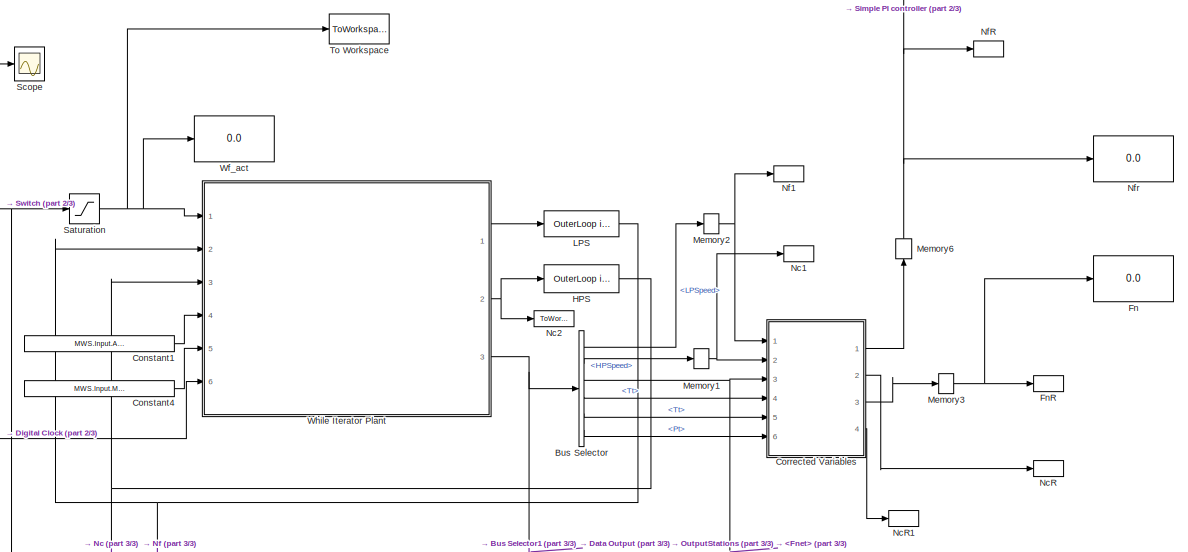
[diagram: root canvas - part 1/3, top right region]
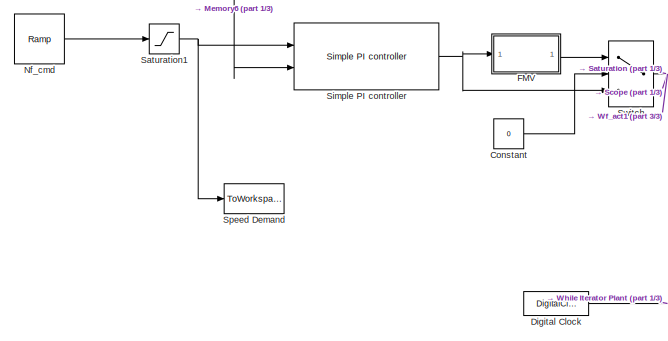
[diagram: root canvas - part 2/3, top left region]
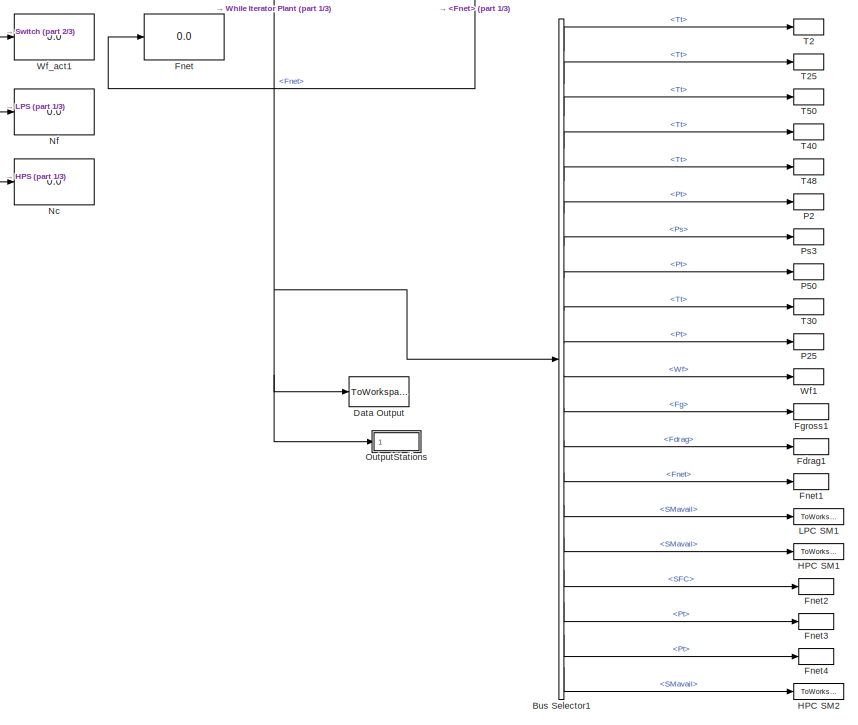
[diagram: root canvas - part 3/3, bottom right region]
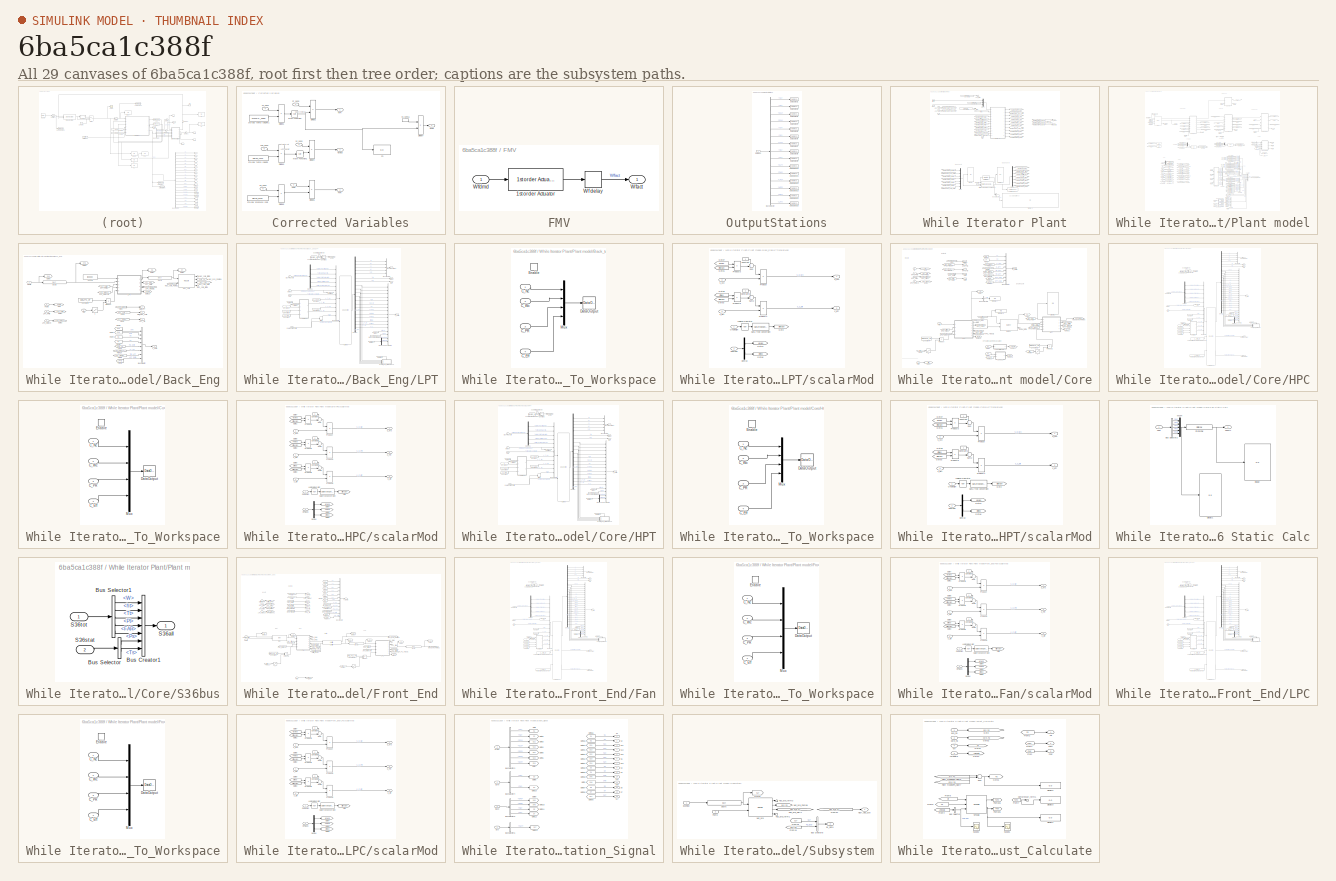
[diagram: thumbnail index - all 29 canvases of the model, root first then tree order]
MODEL slx_6ba5ca1c388f
KIND model
CONFIG AbsTol = auto
CONFIG EnableMultiTasking = off
CONFIG FixedStep = auto
CONFIG MaxStep = auto
CONFIG MinStep = auto
CONFIG RelTol = 1e-3
CONFIG SampleTimeConstraint = Unconstrained
CONFIG Solver = VariableStepAuto
CONFIG SolverName = VariableStepAuto
CONFIG StartTime = 0.0
CONFIG StopTime = 60.0
BLOCK [BusSelector] Bus Selector
  OutputSignals = Speed.LPSpeed,Speed.HPSpeed,Thrust.Fnet,StationData.S2.Tt,StationData.S24.Tt,StationData.S2.Pt
  Ports = [1, 6]
BLOCK [BusSelector] Bus Selector1
  OutputSignals = StationData.S2.Tt,StationData.S24.Tt,StationData.S5.Tt,StationData.S4.Tt,StationData.S48.Tt,StationData.S2.Pt,StationData.S3.Ps,StationData.S5.Pt,StationData.S3.Tt,StationData.S24.Pt,Wf,Thrust.Fg,Data.Amb.Fdrag,Thrust.Fnet,Data.LPC.SMavail,Data.HPC.SMavail,SFC,StationData.S17.Pt,StationData.S3.Pt,Data.Fan.SMavail
  Ports = [1, 20]
BLOCK [Constant] Constant
  Value = 0
BLOCK [Constant] Constant1
  Value = MWS.Input.Altitude
BLOCK [Constant] Constant4
  Value = MWS.Input.MachNumb
BLOCK [SubSystem] Corrected Variables
  Ports = [6, 4]
  RequestExecContextInheritance = off
  Variant = off
BLOCK [Product] Corrected Variables/Divide1
  InputSameDT = off
  Inputs = */
  OutDataTypeStr = Inherit: Inherit via internal rule
  Ports = [2, 1]
  RndMeth = Floor
  SaturateOnIntegerOverflow = off
BLOCK [Product] Corrected Variables/Divide2
  InputSameDT = off
  Inputs = */
  OutDataTypeStr = Inherit: Inherit via internal rule
  Ports = [2, 1]
  RndMeth = Floor
  SaturateOnIntegerOverflow = off
BLOCK [Product] Corrected Variables/Divide3
  InputSameDT = off
  Inputs = */
  OutDataTypeStr = Inherit: Inherit via internal rule
  Ports = [2, 1]
  RndMeth = Floor
  SaturateOnIntegerOverflow = off
BLOCK [Product] Corrected Variables/Divide4
  InputSameDT = off
  Inputs = */
  OutDataTypeStr = Inherit: Inherit via internal rule
  Ports = [2, 1]
  RndMeth = Floor
  SaturateOnIntegerOverflow = off
BLOCK [Product] Corrected Variables/Divide5
  InputSameDT = off
  Inputs = */
  OutDataTypeStr = Inherit: Inherit via internal rule
  Ports = [2, 1]
  RndMeth = Floor
  SaturateOnIntegerOverflow = off
BLOCK [Product] Corrected Variables/Divide6
  InputSameDT = off
  Inputs = */
  OutDataTypeStr = Inherit: Inherit via internal rule
  Ports = [2, 1]
  RndMeth = Floor
  SaturateOnIntegerOverflow = off
BLOCK [Product] Corrected Variables/Divide7
  InputSameDT = off
  Inputs = */
  OutDataTypeStr = Inherit: Inherit via internal rule
  Ports = [2, 1]
  RndMeth = Floor
  SaturateOnIntegerOverflow = off
BLOCK [Display] Corrected Variables/Fn
  Decimation = 1
  Ports = [1]
BLOCK [Outport] Corrected Variables/FnR
  IconDisplay = Port number
  Port = 3
BLOCK [Inport] Corrected Variables/Fnet
  IconDisplay = Port number
  Port = 3
BLOCK [Math] Corrected Variables/Math Function
  Operator = sqrt
  Ports = [1, 1]
BLOCK [Math] Corrected Variables/Math Function1
  Operator = sqrt
  Ports = [1, 1]
BLOCK [Outport] Corrected Variables/NcR2
  IconDisplay = Port number
  Port = 4
BLOCK [Outport] Corrected Variables/NcR25
  IconDisplay = Port number
  Port = 2
BLOCK [Outport] Corrected Variables/NfR
  IconDisplay = Port number
BLOCK [Inport] Corrected Variables/P2_sens
  IconDisplay = Port number
  Port = 6
BLOCK [Inport] Corrected Variables/T25_sens
  IconDisplay = Port number
  Port = 5
BLOCK [Inport] Corrected Variables/T2_sens
  IconDisplay = Port number
  Port = 4
BLOCK [Inport] Corrected Variables/nc_sens
  IconDisplay = Port number
  Port = 2
BLOCK [InportShadow] Corrected Variables/nc_sens1
  IconDisplay = Port number
  Port = 2
BLOCK [Inport] Corrected Variables/nf_sens
  IconDisplay = Port number
BLOCK [Constant] Corrected Variables/std-day pressure (psi)
  Value = MWS.C_PSTD
BLOCK [Constant] Corrected Variables/std-day temp (degR)
  Value = MWS.C_TSTD
BLOCK [Constant] Corrected Variables/std-day temp (degR)1
  Value = MWS.C_TSTD
BLOCK [ToWorkspace] Data Output
  MaxDataPoints = inf
  Ports = [1]
  SampleTime = -1
  SaveFormat = Timeseries
  VariableName = Plant_Data
BLOCK [DigitalClock] Digital Clock
  SampleTime = 0.01
BLOCK [SubSystem] FMV
  Ports = [1, 1]
  RequestExecContextInheritance = off
  Variant = off
BLOCK [Reference] FMV/1st order Actuator  REF=Lib_Cntrl_FirstOrderActuator_TMATS/1st order Actuator
  Ports = [1, 1]
  SourceBlock = Lib_Cntrl_FirstOrderActuator_TMATS/1st order Actuator
  SourceType = T-MATS: 1st Order Actuator Library Block
BLOCK [TransportDelay] FMV/Wf delay
  DelayTime = 0.04
  InitialOutput = MWS.Input.Wfin
  Ports = [1, 1]
BLOCK [Outport] FMV/Wfact
  IconDisplay = Port number
BLOCK [Inport] FMV/Wfdmd
  IconDisplay = Port number
BLOCK [ToWorkspace] Fdrag1
  MaxDataPoints = inf
  Ports = [1]
  SampleTime = -1
  VariableName = Fdrag
BLOCK [ToWorkspace] Fgross1
  MaxDataPoints = inf
  Ports = [1]
  SampleTime = -1
  VariableName = Fgross
BLOCK [Display] Fn
  Decimation = 1
  Ports = [1]
BLOCK [ToWorkspace] FnR
  MaxDataPoints = inf
  Ports = [1]
  SampleTime = -1
  VariableName = FnR
BLOCK [Display] Fnet
  Decimation = 1
  Ports = [1]
BLOCK [ToWorkspace] Fnet1
  MaxDataPoints = inf
  Ports = [1]
  SampleTime = -1
  VariableName = Fnet
BLOCK [ToWorkspace] Fnet2
  MaxDataPoints = inf
  Ports = [1]
  SampleTime = -1
  VariableName = TSFC
BLOCK [ToWorkspace] Fnet3
  MaxDataPoints = inf
  Ports = [1]
  SampleTime = -1
  VariableName = P15
BLOCK [ToWorkspace] Fnet4
  MaxDataPoints = inf
  Ports = [1]
  SampleTime = -1
  VariableName = P30
BLOCK [ToWorkspace] HPC SM1
  MaxDataPoints = inf
  Ports = [1]
  SampleTime = -1
  VariableName = SM_HPC
BLOCK [ToWorkspace] HPC SM2
  MaxDataPoints = inf
  Ports = [1]
  SampleTime = -1
  VariableName = SM_FAN
BLOCK [Reference] HPS  REF=Lib_Solve_OuterLoopIntegrator_TMATS/OuterLoop integrator
  Ports = [1, 1]
  SourceBlock = Lib_Solve_OuterLoopIntegrator_TMATS/OuterLoop integrator
  SourceType = T-MATS: OuterLoop Integrator Library Block
BLOCK [ToWorkspace] LPC SM1
  MaxDataPoints = inf
  Ports = [1]
  SampleTime = -1
  VariableName = SM_LPC
BLOCK [Reference] LPS  REF=Lib_Solve_OuterLoopIntegrator_TMATS/OuterLoop integrator
  Ports = [1, 1]
  SourceBlock = Lib_Solve_OuterLoopIntegrator_TMATS/OuterLoop integrator
  SourceType = T-MATS: OuterLoop Integrator Library Block
BLOCK [Memory] Memory1
BLOCK [Memory] Memory2
BLOCK [Memory] Memory3
BLOCK [Memory] Memory6
BLOCK [Display] Nc
  Decimation = 1
  Ports = [1]
BLOCK [ToWorkspace] Nc1
  MaxDataPoints = inf
  Ports = [1]
  SampleTime = -1
  VariableName = Nc
BLOCK [ToWorkspace] Nc2
  MaxDataPoints = inf
  Ports = [1]
  SampleTime = -1
  VariableName = Nc_dot
BLOCK [ToWorkspace] NcR
  MaxDataPoints = inf
  Ports = [1]
  SampleTime = -1
  VariableName = NcR
BLOCK [ToWorkspace] NcR1
  MaxDataPoints = inf
  Ports = [1]
  SampleTime = -1
  VariableName = NcR2
BLOCK [Display] Nf
  Decimation = 1
  Ports = [1]
BLOCK [ToWorkspace] Nf1
  MaxDataPoints = inf
  Ports = [1]
  SampleTime = -1
  VariableName = Nf
BLOCK [ToWorkspace] NfR
  MaxDataPoints = inf
  Ports = [1]
  SampleTime = -1
  VariableName = NfR
BLOCK [Reference] Nf_cmd  REF=simulink/Sources/Ramp
  Ports = [0, 1]
  SourceBlock = simulink/Sources/Ramp
  SourceType = Ramp
BLOCK [Display] Nfr
  Decimation = 1
  Ports = [1]
BLOCK [SubSystem] OutputStations
  Ports = [1]
  RequestExecContextInheritance = off
  Variant = off
BLOCK [BusSelector] OutputStations/Bus Selector
  OutputSignals = StationData.S1,StationData.S2,StationData.S21,StationData.S24,StationData.S3,StationData.S4,StationData.S45,StationData.S5,StationData.S7,StationData.S17,Data.Fan,Data.LPC,Data.HPC,Data.HPT,Data.LPT
  Ports = [1, 15]
BLOCK [ToWorkspace] OutputStations/Data Output1
  MaxDataPoints = inf
  Ports = [1]
  SampleTime = -1
  SaveFormat = Timeseries
  VariableName = S1
BLOCK [ToWorkspace] OutputStations/Data Output10
  MaxDataPoints = inf
  Ports = [1]
  SampleTime = -1
  SaveFormat = Timeseries
  VariableName = S17
BLOCK [ToWorkspace] OutputStations/Data Output11
  MaxDataPoints = inf
  Ports = [1]
  SampleTime = -1
  SaveFormat = Timeseries
  VariableName = DFan
BLOCK [ToWorkspace] OutputStations/Data Output12
  MaxDataPoints = inf
  Ports = [1]
  SampleTime = -1
  SaveFormat = Timeseries
  VariableName = DLPC
BLOCK [ToWorkspace] OutputStations/Data Output13
  MaxDataPoints = inf
  Ports = [1]
  SampleTime = -1
  SaveFormat = Timeseries
  VariableName = DHPC
BLOCK [ToWorkspace] OutputStations/Data Output14
  MaxDataPoints = inf
  Ports = [1]
  SampleTime = -1
  SaveFormat = Timeseries
  VariableName = DHPT
BLOCK [ToWorkspace] OutputStations/Data Output15
  MaxDataPoints = inf
  Ports = [1]
  SampleTime = -1
  SaveFormat = Timeseries
  VariableName = DLPT
BLOCK [ToWorkspace] OutputStations/Data Output2
  MaxDataPoints = inf
  Ports = [1]
  SampleTime = -1
  SaveFormat = Timeseries
  VariableName = S2
BLOCK [ToWorkspace] OutputStations/Data Output3
  MaxDataPoints = inf
  Ports = [1]
  SampleTime = -1
  SaveFormat = Timeseries
  VariableName = S21
BLOCK [ToWorkspace] OutputStations/Data Output4
  MaxDataPoints = inf
  Ports = [1]
  SampleTime = -1
  SaveFormat = Timeseries
  VariableName = S24
BLOCK [ToWorkspace] OutputStations/Data Output5
  MaxDataPoints = inf
  Ports = [1]
  SampleTime = -1
  SaveFormat = Timeseries
  VariableName = S3
BLOCK [ToWorkspace] OutputStations/Data Output6
  MaxDataPoints = inf
  Ports = [1]
  SampleTime = -1
  SaveFormat = Timeseries
  VariableName = S4
BLOCK [ToWorkspace] OutputStations/Data Output7
  MaxDataPoints = inf
  Ports = [1]
  SampleTime = -1
  SaveFormat = Timeseries
  VariableName = S45
BLOCK [ToWorkspace] OutputStations/Data Output8
  MaxDataPoints = inf
  Ports = [1]
  SampleTime = -1
  SaveFormat = Timeseries
  VariableName = S5
BLOCK [ToWorkspace] OutputStations/Data Output9
  MaxDataPoints = inf
  Ports = [1]
  SampleTime = -1
  SaveFormat = Timeseries
  VariableName = S7
BLOCK [Inport] OutputStations/DataBus
  IconDisplay = Port number
BLOCK [ToWorkspace] P2
  MaxDataPoints = inf
  Ports = [1]
  SampleTime = -1
  VariableName = P2
BLOCK [ToWorkspace] P25
  MaxDataPoints = inf
  Ports = [1]
  SampleTime = -1
  VariableName = P25
BLOCK [ToWorkspace] P50
  MaxDataPoints = inf
  Ports = [1]
  SampleTime = -1
  VariableName = P50
BLOCK [ToWorkspace] Ps3
  MaxDataPoints = inf
  Ports = [1]
  SampleTime = -1
  VariableName = Ps3
BLOCK [Saturate] Saturation
  InputPortMap = u0
  LowerLimit = 0.2
  Ports = [1, 1]
  UpperLimit = 6
BLOCK [Saturate] Saturation1
  InputPortMap = u0
  LowerLimit = 1900
  Ports = [1, 1]
  UpperLimit = 3800
BLOCK [Scope] Scope
  NumInputPorts = 1
  Ports = [1]
  ScopeSpecificationString = Simulink.scopes.TimeScopeBlockCfg('CurrentConfiguration', extmgr.ConfigurationSet(extmgr.Configuration('Core','General UI',true),extmgr.Configuration('Core','Source UI',true),extmgr.Configuration('Sources','WiredSimulink',true,'DataLoggingVariableName','ScopeData1','DataLoggingLimitDataPoints',true,'DataLoggingSaveFormat','Array','DataLoggingDecimation','1','DataLoggingDecimateData',true),extmgr.C...<+1515ch>
BLOCK [Reference] Simple PI controller  REF=Lib_Cntrl_SimplePIcontroller_TMATS/Simple PI controller
  Ports = [2, 1]
  SourceBlock = Lib_Cntrl_SimplePIcontroller_TMATS/Simple PI controller
  SourceType = T-MATS: Simple PI controller Library Block
BLOCK [ToWorkspace] Speed Demand
  MaxDataPoints = inf
  Ports = [1]
  SampleTime = -1
  SaveFormat = Timeseries
  VariableName = Nf_dmd
BLOCK [Switch] Switch
  Criteria = u2 > Threshold
  InputSameDT = off
  SaturateOnIntegerOverflow = off
BLOCK [ToWorkspace] T2
  MaxDataPoints = inf
  Ports = [1]
  SampleTime = -1
  VariableName = T2
BLOCK [ToWorkspace] T25
  MaxDataPoints = inf
  Ports = [1]
  SampleTime = -1
  VariableName = T25
BLOCK [ToWorkspace] T30
  MaxDataPoints = inf
  Ports = [1]
  SampleTime = -1
  VariableName = T30
BLOCK [ToWorkspace] T40
  MaxDataPoints = inf
  Ports = [1]
  SampleTime = -1
  VariableName = T40
BLOCK [ToWorkspace] T48
  MaxDataPoints = inf
  Ports = [1]
  SampleTime = -1
  VariableName = T48
BLOCK [ToWorkspace] T50
  MaxDataPoints = inf
  Ports = [1]
  SampleTime = -1
  VariableName = T50
BLOCK [ToWorkspace] To Workspace
  FixptAsFi = on
  MaxDataPoints = inf
  Ports = [1]
  SampleTime = -1
  Save2DSignal = 3-D array (concatenate along third dimension)
  SaveFormat = Timeseries
  VariableName = test_Wf
BLOCK [ToWorkspace] Wf1
  MaxDataPoints = inf
  Ports = [1]
  SampleTime = -1
  VariableName = Wf
BLOCK [Display] Wf_act
  Decimation = 1
  Ports = [1]
BLOCK [Display] Wf_act1
  Decimation = 1
  Ports = [1]
BLOCK [SubSystem] While Iterator Plant
  Ports = [6, 3]
  RequestExecContextInheritance = off
  TreatAsAtomicUnit = on
  Variant = off
BLOCK [Inport] While Iterator Plant/Altitude
  IconDisplay = Port number
  Port = 4
BLOCK [BusSelector] While Iterator Plant/Bus Selector
  OutputSignals = J
  Ports = [1, 1]
BLOCK [Constant] While Iterator Plant/Constant
BLOCK [Constant] While Iterator Plant/Constant1
  Value = MWS.Input.Altitude
BLOCK [Constant] While Iterator Plant/Constant3
  Value = MWS.Input.DeltaTamb
BLOCK [Constant] While Iterator Plant/Constant4
  Value = MWS.Input.MachNumb
BLOCK [Demux] While Iterator Plant/Demux
  DisplayOption = bar
  Outputs = 7
  Ports = [1, 7]
BLOCK [Display] While Iterator Plant/Display
  Decimation = 1
  Ports = [1]
BLOCK [Display] While Iterator Plant/Display1
  Decimation = 1
  Ports = [1]
BLOCK [Display] While Iterator Plant/Display3
  Decimation = 1
  Ports = [1]
BLOCK [From] While Iterator Plant/From
  GotoTag = W
BLOCK [Outport] While Iterator Plant/HPS_Ndot
  IconDisplay = Port number
  Port = 2
BLOCK [Inport] While Iterator Plant/HPS_NmechIn
  IconDisplay = Port number
  Port = 3
BLOCK [Reference] While Iterator Plant/Iterative NR Solver w JacobianCalc  REF=Lib_Solve_IterNRSolverJC_TMATS/Iterative NR Solver w JacobianCalc
  Ports = [3, 3]
  SourceBlock = Lib_Solve_IterNRSolverJC_TMATS/Iterative NR Solver w JacobianCalc
  SourceType = T-MATS: Iterative NR Solver w Jacobian Calc Library Block
BLOCK [Terminator] While Iterator Plant/LPC_term1
BLOCK [Terminator] While Iterator Plant/LPC_term3
BLOCK [Outport] While Iterator Plant/LPS_Ndot
  IconDisplay = Port number
BLOCK [Inport] While Iterator Plant/LPS_NmechIn
  IconDisplay = Port number
  Port = 2
BLOCK [Inport] While Iterator Plant/Mach
  IconDisplay = Port number
  Port = 5
BLOCK [Mux] While Iterator Plant/Mux1
  DisplayOption = bar
  Inputs = 7
  Ports = [7, 1]
BLOCK [Mux] While Iterator Plant/Mux2
  DisplayOption = bar
  Inputs = 3
  Ports = [3, 1]
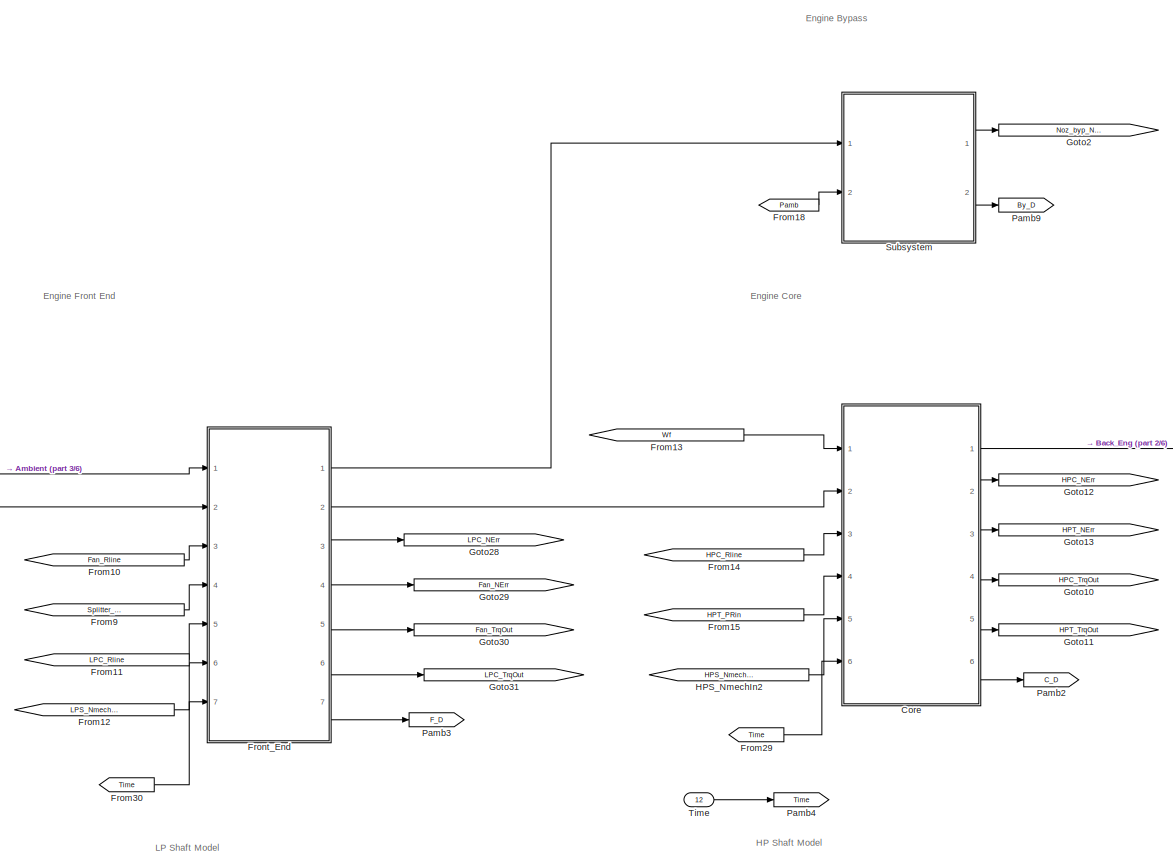
[diagram: While Iterator Plant/Plant model - part 1/6, top center region]
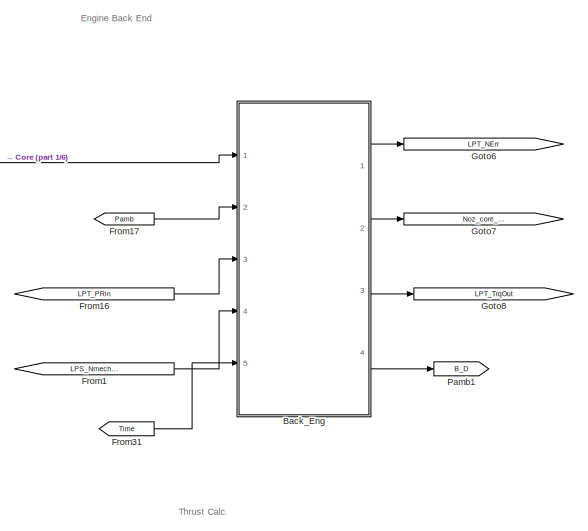
[diagram: While Iterator Plant/Plant model - part 2/6, top right region]
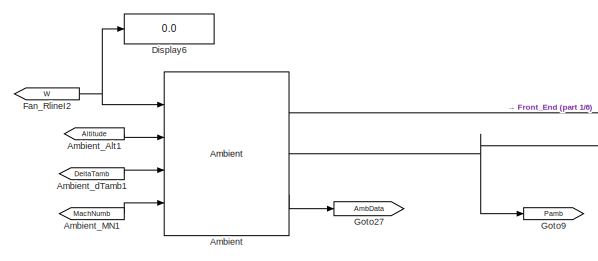
[diagram: While Iterator Plant/Plant model - part 3/6, top left region]
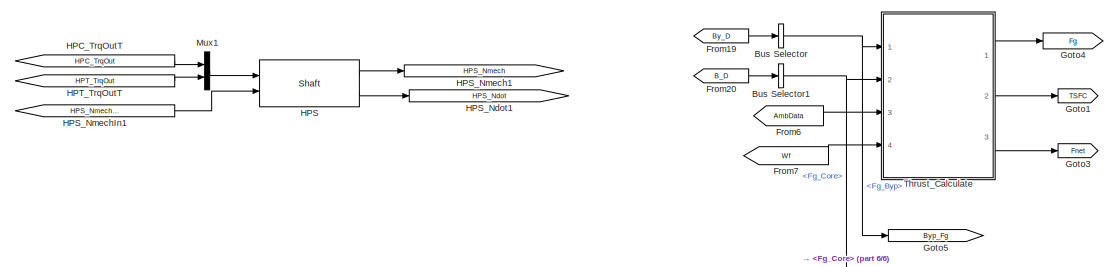
[diagram: While Iterator Plant/Plant model - part 4/6, middle right region]
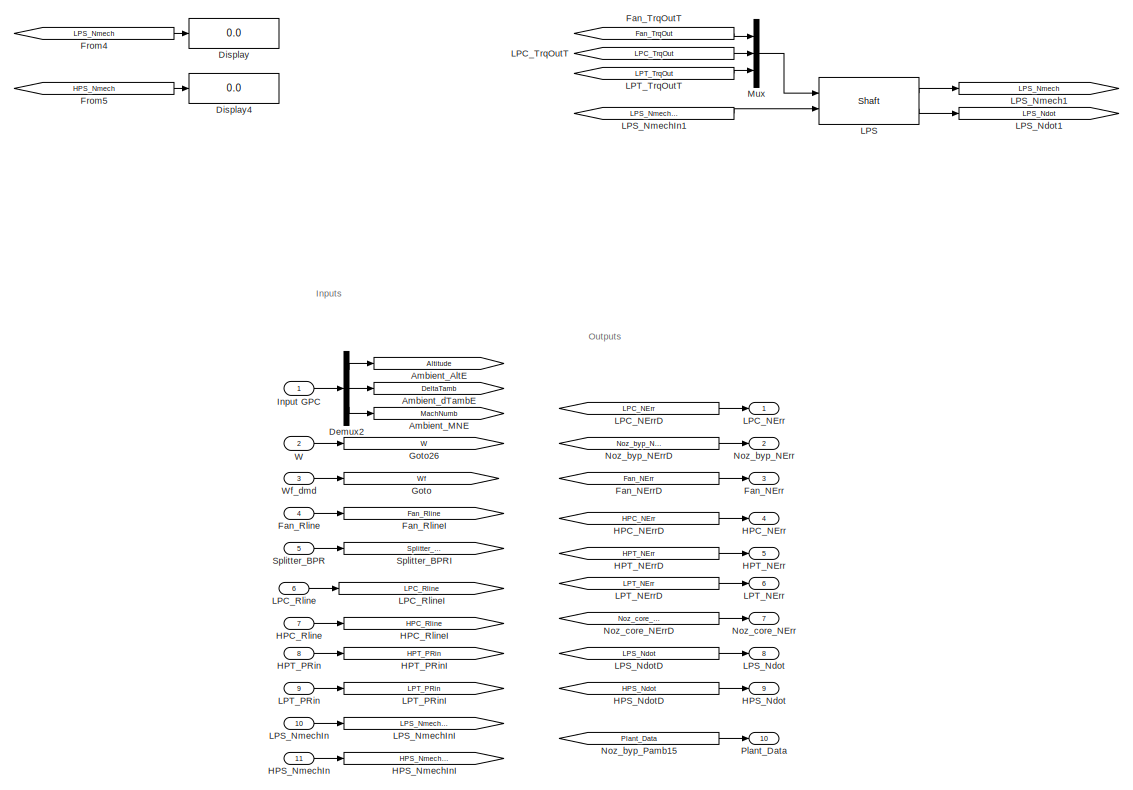
[diagram: While Iterator Plant/Plant model - part 5/6, middle left region]
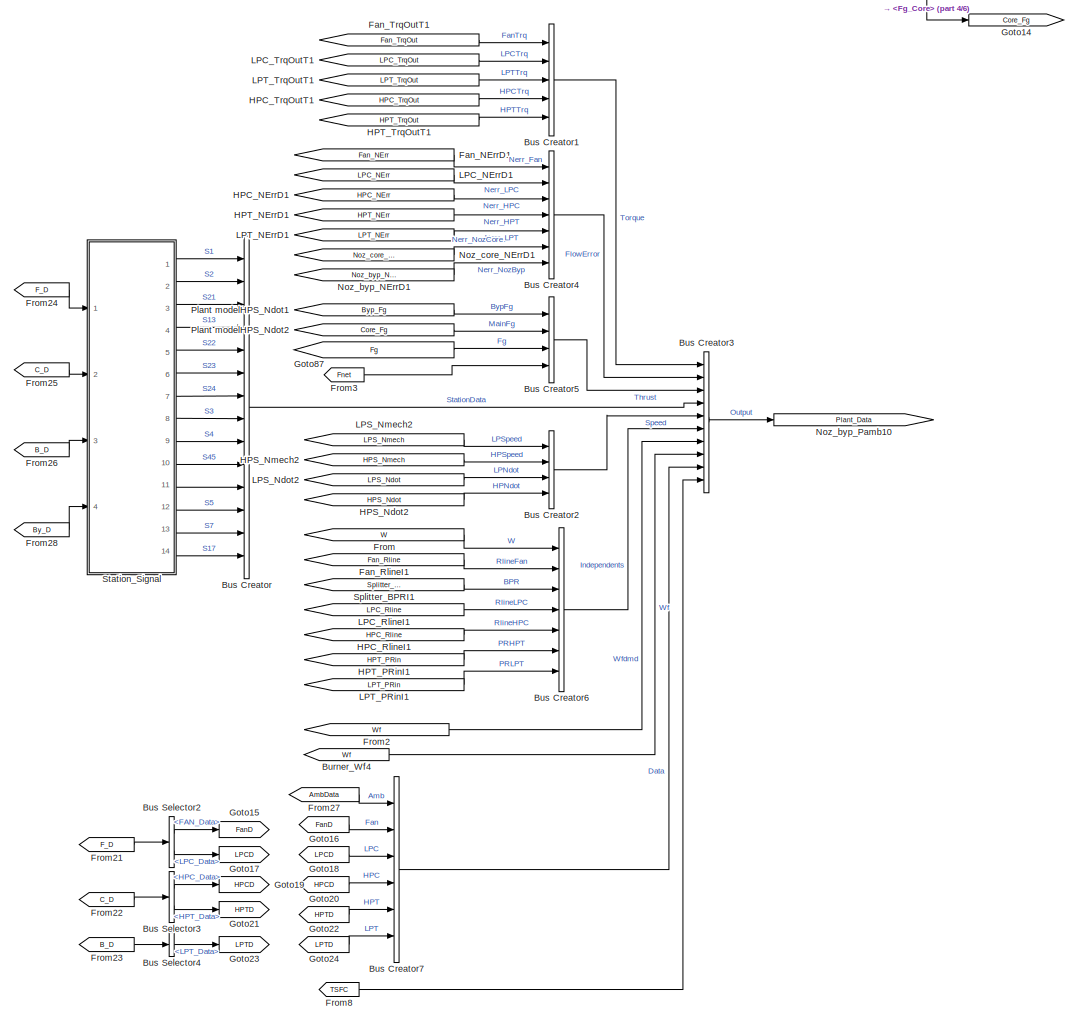
[diagram: While Iterator Plant/Plant model - part 6/6, bottom right region]
BLOCK [SubSystem] While Iterator Plant/Plant model
  Ports = [12, 10]
  RequestExecContextInheritance = off
  Variant = off
BLOCK [Reference] While Iterator Plant/Plant model/Ambient  REF=Lib_Turbo_Ambient_TMATS/Ambient
  Ports = [4, 3]
  SourceBlock = Lib_Turbo_Ambient_TMATS/Ambient
  SourceType = T-MATS: Ambient Library Block
BLOCK [From] While Iterator Plant/Plant model/Ambient_Alt1
  GotoTag = Altitude
BLOCK [Goto] While Iterator Plant/Plant model/Ambient_AltE
  GotoTag = Altitude
BLOCK [From] While Iterator Plant/Plant model/Ambient_MN1
  GotoTag = MachNumb
BLOCK [Goto] While Iterator Plant/Plant model/Ambient_MNE
  GotoTag = MachNumb
BLOCK [From] While Iterator Plant/Plant model/Ambient_dTamb1
  GotoTag = DeltaTamb
BLOCK [Goto] While Iterator Plant/Plant model/Ambient_dTambE
  GotoTag = DeltaTamb
BLOCK [SubSystem] While Iterator Plant/Plant model/Back_Eng
  Ports = [5, 4]
  RequestExecContextInheritance = off
  Variant = off
BLOCK [Lookup] While Iterator Plant/Plant model/Back_Eng/1
  InputValues = MWS.HP_in.t
  SaturateOnIntegerOverflow = off
  Table = MWS.HP_in.scaled
BLOCK [BusCreator] While Iterator Plant/Plant model/Back_Eng/Bus Creator
  DisplayOption = bar
  InheritFromInputs = on
  Inputs = 8
  Ports = [8, 1]
BLOCK [Outport] While Iterator Plant/Plant model/Back_Eng/C_Data
  IconDisplay = Port number
  Port = 4
BLOCK [Constant] While Iterator Plant/Plant model/Back_Eng/Constant4
  Value = MWS.LPT.s_HP
BLOCK [Reference] While Iterator Plant/Plant model/Back_Eng/Duct3  REF=Lib_Turbo_Duct_TMATS/Duct
  Ports = [1, 1]
  SourceBlock = Lib_Turbo_Duct_TMATS/Duct
  SourceType = T-MATS: Duct Library Block
BLOCK [Reference] While Iterator Plant/Plant model/Back_Eng/Duct4  REF=Lib_Turbo_Duct_TMATS/Duct
  Ports = [1, 1]
  SourceBlock = Lib_Turbo_Duct_TMATS/Duct
  SourceType = T-MATS: Duct Library Block
BLOCK [Inport] While Iterator Plant/Plant model/Back_Eng/FlowIn
  IconDisplay = Port number
BLOCK [From] While Iterator Plant/Plant model/Back_Eng/From
  GotoTag = LPT_NErr
BLOCK [From] While Iterator Plant/Plant model/Back_Eng/From1
  GotoTag = Noz_core_NErr
BLOCK [From] While Iterator Plant/Plant model/Back_Eng/From10
  GotoTag = LPS_Nmech
BLOCK [From] While Iterator Plant/Plant model/Back_Eng/From2
  GotoTag = LPT_TrqOut
BLOCK [From] While Iterator Plant/Plant model/Back_Eng/From3
  GotoTag = S45
BLOCK [From] While Iterator Plant/Plant model/Back_Eng/From4
  GotoTag = S5
BLOCK [From] While Iterator Plant/Plant model/Back_Eng/From5
  GotoTag = S7
BLOCK [From] While Iterator Plant/Plant model/Back_Eng/From6
  GotoTag = Core_Fg
BLOCK [From] While Iterator Plant/Plant model/Back_Eng/From7
  GotoTag = S48
BLOCK [From] While Iterator Plant/Plant model/Back_Eng/From8
  GotoTag = LPTD
BLOCK [From] While Iterator Plant/Plant model/Back_Eng/From9
  GotoTag = LPT_TrqOut
BLOCK [Goto] While Iterator Plant/Plant model/Back_Eng/Goto
  GotoTag = Pamb
BLOCK [Goto] While Iterator Plant/Plant model/Back_Eng/Goto1
  GotoTag = LPT_PRin
BLOCK [Goto] While Iterator Plant/Plant model/Back_Eng/Goto2
  GotoTag = S7
BLOCK [Goto] While Iterator Plant/Plant model/Back_Eng/Goto23
  GotoTag = LPTD
BLOCK [Goto] While Iterator Plant/Plant model/Back_Eng/Goto3
  GotoTag = LPS_Nmech
BLOCK [Goto] While Iterator Plant/Plant model/Back_Eng/Goto4
  GotoTag = S5
BLOCK [Goto] While Iterator Plant/Plant model/Back_Eng/Goto5
  GotoTag = S45
BLOCK [Goto] While Iterator Plant/Plant model/Back_Eng/Goto6
  GotoTag = S48
BLOCK [Inport] While Iterator Plant/Plant model/Back_Eng/LPS_Nmech
  IconDisplay = Port number
  Port = 4
BLOCK [From] While Iterator Plant/Plant model/Back_Eng/LPS_NmechI2
  GotoTag = LPS_Nmech
BLOCK [SubSystem] While Iterator Plant/Plant model/Back_Eng/LPT
  Ports = [5, 4]
  RequestExecContextInheritance = off
  Variant = off
BLOCK [Constant] While Iterator Plant/Plant model/Back_Eng/LPT/Block Name from Mask
  Value = BlkNm_M
BLOCK [BusCreator] While Iterator Plant/Plant model/Back_Eng/LPT/Bus Creator
  DisplayOption = bar
  InheritFromInputs = on
  Inputs = 12
  Ports = [12, 1]
BLOCK [BusCreator] While Iterator Plant/Plant model/Back_Eng/LPT/Bus Creator1
  DisplayOption = bar
  InheritFromInputs = on
  Inputs = 17
  Ports = [17, 1]
BLOCK [BusCreator] While Iterator Plant/Plant model/Back_Eng/LPT/Bus Creator2
  DisplayOption = bar
  InheritFromInputs = on
  Inputs = 5
  Ports = [5, 1]
BLOCK [Constant] While Iterator Plant/Plant model/Back_Eng/LPT/Constant
  Value = s_T_Nc_M
BLOCK [Constant] While Iterator Plant/Plant model/Back_Eng/LPT/Constant1
  Value = s_T_PR_M
BLOCK [Constant] While Iterator Plant/Plant model/Back_Eng/LPT/Constant2
  Value = s_T_Wc_M
BLOCK [Constant] While Iterator Plant/Plant model/Back_Eng/LPT/Constant3
  Value = s_T_Eff_M
BLOCK [Inport] While Iterator Plant/Plant model/Back_Eng/LPT/CoolingFlwCharIn
  IconDisplay = Port number
BLOCK [Demux] While Iterator Plant/Plant model/Back_Eng/LPT/Demux
  DisplayOption = bar
  Outputs = 20
  Ports = [1, 20]
BLOCK [Demux] While Iterator Plant/Plant model/Back_Eng/LPT/Demux1
  DisplayOption = bar
  Outputs = 5
  Ports = [1, 5]
BLOCK [Demux] While Iterator Plant/Plant model/Back_Eng/LPT/Demux2
  DisplayOption = bar
  Outputs = 2
  Ports = [1, 2]
BLOCK [Inport] While Iterator Plant/Plant model/Back_Eng/LPT/GasPthCharIn
  IconDisplay = Port number
  Port = 2
BLOCK [Outport] While Iterator Plant/Plant model/Back_Eng/LPT/GasPthCharOut
  IconDisplay = Port number
BLOCK [From] While Iterator Plant/Plant model/Back_Eng/LPT/Goto1
  GotoTag = Nmech
BLOCK [Goto] While Iterator Plant/Plant model/Back_Eng/LPT/Goto2
  GotoTag = Nmech
BLOCK [Goto] While Iterator Plant/Plant model/Back_Eng/LPT/Goto3
  GotoTag = OnDesign
BLOCK [From] While Iterator Plant/Plant model/Back_Eng/LPT/Goto4
  GotoTag = OnDesign
BLOCK [From] While Iterator Plant/Plant model/Back_Eng/LPT/Goto5
  GotoTag = OnDesign
BLOCK [Goto] While Iterator Plant/Plant model/Back_Eng/LPT/Goto6
  GotoTag = HPMods
BLOCK [From] While Iterator Plant/Plant model/Back_Eng/LPT/Goto7
  GotoTag = HPMods
BLOCK [Inport] While Iterator Plant/Plant model/Back_Eng/LPT/HP_Mods
  IconDisplay = Port number
  Port = 5
BLOCK [Outport] While Iterator Plant/Plant model/Back_Eng/LPT/NErr
  IconDisplay = Port number
  Port = 2
BLOCK [Inport] While Iterator Plant/Plant model/Back_Eng/LPT/Nmech
  IconDisplay = Port number
  Port = 4
BLOCK [Inport] While Iterator Plant/Plant model/Back_Eng/LPT/PRIn
  IconDisplay = Port number
  Port = 3
BLOCK [RelationalOperator] While Iterator Plant/Plant model/Back_Eng/LPT/Relational Operator1
  InputSameDT = off
  Operator = ==
  OutDataTypeStr = boolean
  Ports = [2, 1]
BLOCK [Constant] While Iterator Plant/Plant model/Back_Eng/LPT/ScalarOutputEnable2
  Value = iDesign_M
BLOCK [Constant] While Iterator Plant/Plant model/Back_Eng/LPT/ScalarOutputEnable3
  Value = 0
BLOCK [SubSystem] While Iterator Plant/Plant model/Back_Eng/LPT/Scalar_To_Workspace
  Ports = [4, 0, 1]
  RequestExecContextInheritance = off
  Variant = off
BLOCK [Inport] While Iterator Plant/Plant model/Back_Eng/LPT/Scalar_To_Workspace/C_Eff
  IconDisplay = Port number
  Port = 4
BLOCK [Inport] While Iterator Plant/Plant model/Back_Eng/LPT/Scalar_To_Workspace/C_Nc
  IconDisplay = Port number
BLOCK [Inport] While Iterator Plant/Plant model/Back_Eng/LPT/Scalar_To_Workspace/C_PR
  IconDisplay = Port number
  Port = 3
BLOCK [Inport] While Iterator Plant/Plant model/Back_Eng/LPT/Scalar_To_Workspace/C_Wc
  IconDisplay = Port number
  Port = 2
BLOCK [Reference] While Iterator Plant/Plant model/Back_Eng/LPT/Scalar_To_Workspace/DataOutput  REF=Lib_Solve_DataOut_TMATS/DataOutput
  Ports = [1]
  SourceBlock = Lib_Solve_DataOut_TMATS/DataOutput
  SourceType = T-MATS: Data Output Library Block
BLOCK [EnablePort] While Iterator Plant/Plant model/Back_Eng/LPT/Scalar_To_Workspace/Enable
  Ports = []
BLOCK [Mux] While Iterator Plant/Plant model/Back_Eng/LPT/Scalar_To_Workspace/Mux
  DisplayOption = bar
  Ports = [4, 1]
BLOCK [Outport] While Iterator Plant/Plant model/Back_Eng/LPT/T_Data
  IconDisplay = Port number
  Port = 4
BLOCK [Outport] While Iterator Plant/Plant model/Back_Eng/LPT/TrqOut
  IconDisplay = Port number
  Port = 3
BLOCK [S-Function] While Iterator Plant/Plant model/Back_Eng/LPT/Turbine
  EnableBusSupport = off
  FunctionName = Turbine_TMATS
  Parameters = Y_T_Map_NcVec_M, X_T_Map_PRVec_M, T_T_Map_WcArray_M, T_T_Map_EffArray_M, T_CoolFlwPos_M, length(T_CoolFlwPos_M), CFlwEn_M, iDesign_M, NcDes_M, EffDes_M, PRDes_M, NDes_M, gcs, size(T_T_Map_WcArray_M,2), size(T_T_Map_EffArray_M,2), size(T_T_Map_WcArray_M,1), size(T_T_Map_EffArray_M,1), ConfigNPSS_M
  Ports = [2, 1]
  SFcnIsStateOwnerBlock = off
  SFunctionDeploymentMode = off
  SFunctionModules = 'h2tc_TMATS pt2sc_TMATS sp2tc_TMATS t2hc_TMATS interp2Ac_TMATS functions_TMATS'
BLOCK [Width] While Iterator Plant/Plant model/Back_Eng/LPT/Width
BLOCK [SubSystem] While Iterator Plant/Plant model/Back_Eng/LPT/scalarMod
  Ports = [4, 2]
  RequestExecContextInheritance = off
  Variant = off
BLOCK [Outport] While Iterator Plant/Plant model/Back_Eng/LPT/scalarMod/C_Eff
  IconDisplay = Port number
  Port = 2
BLOCK [Outport] While Iterator Plant/Plant model/Back_Eng/LPT/scalarMod/C_Wc
  IconDisplay = Port number
BLOCK [Constant] While Iterator Plant/Plant model/Back_Eng/LPT/scalarMod/Constant
BLOCK [Constant] While Iterator Plant/Plant model/Back_Eng/LPT/scalarMod/Constant2
BLOCK [DataTypeConversion] While Iterator Plant/Plant model/Back_Eng/LPT/scalarMod/Data Type Conversion
  RndMeth = Floor
  SaturateOnIntegerOverflow = off
BLOCK [Demux] While Iterator Plant/Plant model/Back_Eng/LPT/scalarMod/Demux
  DisplayOption = bar
  Outputs = 2
  Ports = [1, 2]
BLOCK [Goto] While Iterator Plant/Plant model/Back_Eng/LPT/scalarMod/Goto
  GotoTag = OffDesign
BLOCK [From] While Iterator Plant/Plant model/Back_Eng/LPT/scalarMod/Goto1
  GotoTag = OffDesign
BLOCK [From] While Iterator Plant/Plant model/Back_Eng/LPT/scalarMod/Goto3
  GotoTag = OffDesign
BLOCK [Goto] While Iterator Plant/Plant model/Back_Eng/LPT/scalarMod/Goto4
  GotoTag = WcMod
BLOCK [Goto] While Iterator Plant/Plant model/Back_Eng/LPT/scalarMod/Goto6
  GotoTag = EffMod
BLOCK [From] While Iterator Plant/Plant model/Back_Eng/LPT/scalarMod/Goto7
  GotoTag = WcMod
BLOCK [From] While Iterator Plant/Plant model/Back_Eng/LPT/scalarMod/Goto9
  GotoTag = EffMod
BLOCK [Inport] While Iterator Plant/Plant model/Back_Eng/LPT/scalarMod/HPMods
  IconDisplay = Port number
  Port = 2
BLOCK [Logic] While Iterator Plant/Plant model/Back_Eng/LPT/scalarMod/Logical Operator
  AllPortsSameDT = off
  Operator = NOT
  OutDataTypeStr = boolean
  Ports = [1, 1]
BLOCK [Inport] While Iterator Plant/Plant model/Back_Eng/LPT/scalarMod/OnDesign
  IconDisplay = Port number
BLOCK [Product] While Iterator Plant/Plant model/Back_Eng/LPT/scalarMod/Product
  InputSameDT = off
  OutDataTypeStr = Inherit: Inherit via internal rule
  Ports = [2, 1]
  RndMeth = Floor
  SaturateOnIntegerOverflow = off
BLOCK [Product] While Iterator Plant/Plant model/Back_Eng/LPT/scalarMod/Product3
  InputSameDT = off
  OutDataTypeStr = Inherit: Inherit via internal rule
  Ports = [2, 1]
  RndMeth = Floor
  SaturateOnIntegerOverflow = off
BLOCK [Product] While Iterator Plant/Plant model/Back_Eng/LPT/scalarMod/Product4
  InputSameDT = off
  OutDataTypeStr = Inherit: Inherit via internal rule
  Ports = [2, 1]
  RndMeth = Floor
  SaturateOnIntegerOverflow = off
BLOCK [Product] While Iterator Plant/Plant model/Back_Eng/LPT/scalarMod/Product5
  InputSameDT = off
  OutDataTypeStr = Inherit: Inherit via internal rule
  Ports = [2, 1]
  RndMeth = Floor
  SaturateOnIntegerOverflow = off
BLOCK [Sum] While Iterator Plant/Plant model/Back_Eng/LPT/scalarMod/Sum
  IconShape = round
  InputSameDT = off
  Inputs = ++|
  OutDataTypeStr = Inherit: Inherit via internal rule
  Ports = [2, 1]
  SaturateOnIntegerOverflow = off
BLOCK [Sum] While Iterator Plant/Plant model/Back_Eng/LPT/scalarMod/Sum2
  IconShape = round
  InputSameDT = off
  Inputs = ++|
  OutDataTypeStr = Inherit: Inherit via internal rule
  Ports = [2, 1]
  SaturateOnIntegerOverflow = off
BLOCK [Inport] While Iterator Plant/Plant model/Back_Eng/LPT/scalarMod/s_Eff
  IconDisplay = Port number
  Port = 4
BLOCK [Inport] While Iterator Plant/Plant model/Back_Eng/LPT/scalarMod/s_Wc
  IconDisplay = Port number
  Port = 3
BLOCK [Goto] While Iterator Plant/Plant model/Back_Eng/LPT_NErr1
  GotoTag = LPT_NErr
BLOCK [Inport] While Iterator Plant/Plant model/Back_Eng/LPT_PRIn
  IconDisplay = Port number
  Port = 3
BLOCK [From] While Iterator Plant/Plant model/Back_Eng/LPT_PRin1
  GotoTag = LPT_PRin
BLOCK [Outport] While Iterator Plant/Plant model/Back_Eng/LPT_Trq
  IconDisplay = Port number
  Port = 3
BLOCK [Goto] While Iterator Plant/Plant model/Back_Eng/LPT_TrqOut1
  GotoTag = LPT_TrqOut
BLOCK [Outport] While Iterator Plant/Plant model/Back_Eng/NErr_LPT
  IconDisplay = Port number
BLOCK [Outport] While Iterator Plant/Plant model/Back_Eng/NErr_Noz_core
  IconDisplay = Port number
  Port = 2
BLOCK [Constant] While Iterator Plant/Plant model/Back_Eng/NoFlow
  Value = [0 0 0 0 0]
BLOCK [Goto] While Iterator Plant/Plant model/Back_Eng/Noz_byp_Pamb9
  GotoTag = Core_Fg
BLOCK [Reference] While Iterator Plant/Plant model/Back_Eng/Noz_core  REF=Lib_Turbo_Nozzle_TMATS/Nozzle
  Ports = [2, 4]
  SourceBlock = Lib_Turbo_Nozzle_TMATS/Nozzle
  SourceType = T-MATS: Nozzle Library Block
BLOCK [Goto] While Iterator Plant/Plant model/Back_Eng/Noz_core_NErr1
  GotoTag = Noz_core_NErr
BLOCK [From] While Iterator Plant/Plant model/Back_Eng/Noz_core_Pamb1
  GotoTag = Pamb
BLOCK [Terminator] While Iterator Plant/Plant model/Back_Eng/Noz_core_term1
BLOCK [Terminator] While Iterator Plant/Plant model/Back_Eng/Noz_core_term2
BLOCK [Inport] While Iterator Plant/Plant model/Back_Eng/Pamb
  IconDisplay = Port number
  Port = 2
BLOCK [Product] While Iterator Plant/Plant model/Back_Eng/Product
  InputSameDT = off
  OutDataTypeStr = Inherit: Inherit via internal rule
  Ports = [2, 1]
  RndMeth = Floor
  SaturateOnIntegerOverflow = off
BLOCK [Inport] While Iterator Plant/Plant model/Back_Eng/Time
  IconDisplay = Port number
  Port = 5
BLOCK [From] While Iterator Plant/Plant model/Burner_Wf4
  GotoTag = Wf
BLOCK [BusCreator] While Iterator Plant/Plant model/Bus Creator
  DisplayOption = bar
  InheritFromInputs = on
  Inputs = 14
  Ports = [14, 1]
BLOCK [BusCreator] While Iterator Plant/Plant model/Bus Creator1
  DisplayOption = bar
  InheritFromInputs = on
  Inputs = 5
  Ports = [5, 1]
BLOCK [BusCreator] While Iterator Plant/Plant model/Bus Creator2
  DisplayOption = bar
  InheritFromInputs = on
  Inputs = 4
  Ports = [4, 1]
BLOCK [BusCreator] While Iterator Plant/Plant model/Bus Creator3
  DisplayOption = bar
  InheritFromInputs = on
  Inputs = 10
  Ports = [10, 1]
BLOCK [BusCreator] While Iterator Plant/Plant model/Bus Creator4
  DisplayOption = bar
  InheritFromInputs = on
  Inputs = 7
  Ports = [7, 1]
BLOCK [BusCreator] While Iterator Plant/Plant model/Bus Creator5
  DisplayOption = bar
  InheritFromInputs = on
  Inputs = 4
  Ports = [4, 1]
BLOCK [BusCreator] While Iterator Plant/Plant model/Bus Creator6
  DisplayOption = bar
  InheritFromInputs = on
  Inputs = 7
  Ports = [7, 1]
BLOCK [BusCreator] While Iterator Plant/Plant model/Bus Creator7
  DisplayOption = bar
  InheritFromInputs = on
  Inputs = 6
  Ports = [6, 1]
BLOCK [BusSelector] While Iterator Plant/Plant model/Bus Selector
  OutputSignals = Fg_Byp
  Ports = [1, 1]
BLOCK [BusSelector] While Iterator Plant/Plant model/Bus Selector1
  OutputSignals = Fg_Core
  Ports = [1, 1]
BLOCK [BusSelector] While Iterator Plant/Plant model/Bus Selector2
  OutputSignals = FAN_Data,LPC_Data
  Ports = [1, 2]
BLOCK [BusSelector] While Iterator Plant/Plant model/Bus Selector3
  OutputSignals = HPC_Data,HPT_Data
  Ports = [1, 2]
BLOCK [BusSelector] While Iterator Plant/Plant model/Bus Selector4
  OutputSignals = LPT_Data
  Ports = [1, 1]
BLOCK [SubSystem] While Iterator Plant/Plant model/Core
  Ports = [6, 6]
  RequestExecContextInheritance = off
  Variant = off
BLOCK [Lookup] While Iterator Plant/Plant model/Core/1
  InputValues = MWS.HP_in.t
  SaturateOnIntegerOverflow = off
  Table = MWS.HP_in.scaled
BLOCK [Lookup] While Iterator Plant/Plant model/Core/2
  InputValues = MWS.HP_in.t
  SaturateOnIntegerOverflow = off
  Table = MWS.HP_in.scaled
BLOCK [Reference] While Iterator Plant/Plant model/Core/Burner  REF=Lib_Turbo_Burner_TMATS/Burner
  Ports = [2, 2]
  SourceBlock = Lib_Turbo_Burner_TMATS/Burner
  SourceType = T-MATS: Burner Library Block
BLOCK [Terminator] While Iterator Plant/Plant model/Core/Burner_term1
BLOCK [BusCreator] While Iterator Plant/Plant model/Core/Bus Creator
  DisplayOption = bar
  InheritFromInputs = on
  Inputs = 8
  Ports = [8, 1]
BLOCK [BusSelector] While Iterator Plant/Plant model/Core/Bus Selector1
  OutputSignals = W
  Ports = [1, 1]
BLOCK [Outport] While Iterator Plant/Plant model/Core/C_Data
  IconDisplay = Port number
  Port = 6
BLOCK [Terminator] While Iterator Plant/Plant model/Core/Compressor_term2
BLOCK [Constant] While Iterator Plant/Plant model/Core/Constant1
  Value = MWS.HPT.s_HP
BLOCK [Constant] While Iterator Plant/Plant model/Core/Constant4
  Value = MWS.HPC.s_HP
BLOCK [Display] While Iterator Plant/Plant model/Core/Display
  Decimation = 1
  Ports = [1]
BLOCK [Display] While Iterator Plant/Plant model/Core/Display5
  Decimation = 1
  Ports = [1]
BLOCK [Display] While Iterator Plant/Plant model/Core/Display7
  Decimation = 1
  Ports = [1]
BLOCK [Inport] While Iterator Plant/Plant model/Core/FlwIn
  IconDisplay = Port number
  Port = 2
BLOCK [Outport] While Iterator Plant/Plant model/Core/FlwOut
  IconDisplay = Port number
BLOCK [From] While Iterator Plant/Plant model/Core/From
  GotoTag = HPTFlowOut
BLOCK [From] While Iterator Plant/Plant model/Core/From1
  GotoTag = Wf
BLOCK [From] While Iterator Plant/Plant model/Core/From2
  GotoTag = HPS_Nmech
BLOCK [From] While Iterator Plant/Plant model/Core/From3
  GotoTag = HPS_Nmech
BLOCK [From] While Iterator Plant/Plant model/Core/From4
  GotoTag = S3
BLOCK [From] While Iterator Plant/Plant model/Core/From5
  GotoTag = S3all
BLOCK [From] While Iterator Plant/Plant model/Core/From6
  GotoTag = S4
BLOCK [From] While Iterator Plant/Plant model/Core/From7
  GotoTag = S3
BLOCK [From] While Iterator Plant/Plant model/Core/From8
  GotoTag = time
BLOCK [From] While Iterator Plant/Plant model/Core/From9
  GotoTag = time
BLOCK [Goto] While Iterator Plant/Plant model/Core/Goto
  GotoTag = Wf
BLOCK [Goto] While Iterator Plant/Plant model/Core/Goto1
  GotoTag = HPS_Nmech
BLOCK [Goto] While Iterator Plant/Plant model/Core/Goto19
  GotoTag = HPCD
BLOCK [Goto] While Iterator Plant/Plant model/Core/Goto2
  GotoTag = time
BLOCK [Goto] While Iterator Plant/Plant model/Core/Goto21
  GotoTag = HPTD
BLOCK [Goto] While Iterator Plant/Plant model/Core/Goto6
  GotoTag = S4
BLOCK [Goto] While Iterator Plant/Plant model/Core/Goto7
  GotoTag = S3
BLOCK [SubSystem] While Iterator Plant/Plant model/Core/HPC
  Ports = [4, 6]
  RequestExecContextInheritance = off
  Variant = off
BLOCK [Constant] While Iterator Plant/Plant model/Core/HPC/Block Name from Mask
  Value = BlkNm_M
BLOCK [BusCreator] While Iterator Plant/Plant model/Core/HPC/Bus Creator
  DisplayOption = bar
  InheritFromInputs = on
  Inputs = 12
  Ports = [12, 1]
BLOCK [BusCreator] While Iterator Plant/Plant model/Core/HPC/Bus Creator1
  DisplayOption = bar
  InheritFromInputs = on
  Inputs = 25
  Ports = [25, 1]
BLOCK [BusCreator] While Iterator Plant/Plant model/Core/HPC/Bus Creator2
  DisplayOption = bar
  InheritFromInputs = on
  Inputs = 5
  Ports = [5, 1]
BLOCK [Outport] While Iterator Plant/Plant model/Core/HPC/C_Data
  IconDisplay = Port number
  Port = 6
BLOCK [S-Function] While Iterator Plant/Plant model/Core/HPC/Compressor
  EnableBusSupport = off
  FunctionName = Compressor_TMATS
  Parameters = Y_C_Map_NcVec_M, X_C_RlineVec_M, Z_C_AlphaVec_M, T_C_Map_WcArray_M, T_C_Map_PRArray_M, T_C_Map_EffArray_M, C_CBFht_M, C_CBFPt_M,  C_BFht_M, C_BFPt_M, X_C_Map_WcSurgeVec_M, T_C_Map_PRSurgeVec_M, iDesign_M, NcDes_M, EffDes_M, PRDes_M, RlineDes_M, CBLDEN_M, FBLDEN_M, gcs, length(C_CBD_M), length(C_FBD_M), size(T_C_Map_WcArray_M,2), size(T_C_Map_PRArray_M,2), size(T_C_Map_EffArray_M,2), size(T_C_Map_W...<+148ch>  <repeated x3 — deduplicated; at blocks: Compressor>
  Ports = [3, 3]
  SFcnIsStateOwnerBlock = off
  SFunctionDeploymentMode = off
  SFunctionModules = 'h2tc_TMATS pt2sc_TMATS sp2tc_TMATS t2hc_TMATS interp1Ac_TMATS interp2Ac_TMATS interp3Ac_TMATS functions_TMATS'
BLOCK [Constant] While Iterator Plant/Plant model/Core/HPC/Constant
  Value = s_C_Nc_M
BLOCK [Constant] While Iterator Plant/Plant model/Core/HPC/Constant1
  Value = s_C_PR_M
BLOCK [Constant] While Iterator Plant/Plant model/Core/HPC/Constant2
  Value = s_C_Wc_M
BLOCK [Constant] While Iterator Plant/Plant model/Core/HPC/Constant3
  Value = s_C_Eff_M
BLOCK [Constant] While Iterator Plant/Plant model/Core/HPC/Constant4
BLOCK [Outport] While Iterator Plant/Plant model/Core/HPC/CustBldsCharOut
  IconDisplay = Port number
  PortDimensions = length(C_CBD_M)*5
BLOCK [Constant] While Iterator Plant/Plant model/Core/HPC/Customer or flow based Bleed Demand Vector
  Value = C_CBD_M
BLOCK [Demux] While Iterator Plant/Plant model/Core/HPC/Demux
  DisplayOption = bar
  Outputs = 27
  Ports = [1, 27]
BLOCK [Demux] While Iterator Plant/Plant model/Core/HPC/Demux1
  DisplayOption = bar
  Outputs = 5
  Ports = [1, 5]
BLOCK [Demux] While Iterator Plant/Plant model/Core/HPC/Demux2
  DisplayOption = bar
  Outputs = 3
  Ports = [1, 3]
BLOCK [Outport] While Iterator Plant/Plant model/Core/HPC/FBldsCharOut
  IconDisplay = Port number
  Port = 2
  PortDimensions = length(C_FBD_M)*5
BLOCK [Constant] While Iterator Plant/Plant model/Core/HPC/Fractional Bleed Demand Vector
  Value = C_FBD_M
BLOCK [Inport] While Iterator Plant/Plant model/Core/HPC/GasPthCharIn
  IconDisplay = Port number
BLOCK [Outport] While Iterator Plant/Plant model/Core/HPC/GasPthCharOut
  IconDisplay = Port number
  Port = 3
BLOCK [Goto] While Iterator Plant/Plant model/Core/HPC/Goto
  GotoTag = Nmech
BLOCK [From] While Iterator Plant/Plant model/Core/HPC/Goto1
  GotoTag = Nmech
BLOCK [Goto] While Iterator Plant/Plant model/Core/HPC/Goto2
  GotoTag = OnDesign
BLOCK [From] While Iterator Plant/Plant model/Core/HPC/Goto3
  GotoTag = OnDesign
BLOCK [From] While Iterator Plant/Plant model/Core/HPC/Goto4
  GotoTag = OnDesign
BLOCK [Goto] While Iterator Plant/Plant model/Core/HPC/Goto5
  GotoTag = HPMods
BLOCK [From] While Iterator Plant/Plant model/Core/HPC/Goto6
  GotoTag = HPMods
BLOCK [Inport] While Iterator Plant/Plant model/Core/HPC/HP_Mods
  IconDisplay = Port number
  Port = 4
BLOCK [Outport] While Iterator Plant/Plant model/Core/HPC/NErr
  IconDisplay = Port number
  Port = 4
BLOCK [Inport] While Iterator Plant/Plant model/Core/HPC/Nmech
  IconDisplay = Port number
  Port = 3
BLOCK [RelationalOperator] While Iterator Plant/Plant model/Core/HPC/Relational Operator
  InputSameDT = off
  Operator = ==
  OutDataTypeStr = boolean
  Ports = [2, 1]
BLOCK [Inport] While Iterator Plant/Plant model/Core/HPC/Rline
  IconDisplay = Port number
  Port = 2
BLOCK [Constant] While Iterator Plant/Plant model/Core/HPC/ScalarOutputEnable
  Value = iDesign_M
BLOCK [Constant] While Iterator Plant/Plant model/Core/HPC/ScalarOutputEnable1
  Value = 0
BLOCK [SubSystem] While Iterator Plant/Plant model/Core/HPC/Scalar_To_Workspace
  Ports = [4, 0, 1]
  RequestExecContextInheritance = off
  Variant = off
BLOCK [Inport] While Iterator Plant/Plant model/Core/HPC/Scalar_To_Workspace/C_Eff
  IconDisplay = Port number
  Port = 4
BLOCK [Inport] While Iterator Plant/Plant model/Core/HPC/Scalar_To_Workspace/C_Nc
  IconDisplay = Port number
BLOCK [Inport] While Iterator Plant/Plant model/Core/HPC/Scalar_To_Workspace/C_PR
  IconDisplay = Port number
  Port = 3
BLOCK [Inport] While Iterator Plant/Plant model/Core/HPC/Scalar_To_Workspace/C_Wc
  IconDisplay = Port number
  Port = 2
BLOCK [Reference] While Iterator Plant/Plant model/Core/HPC/Scalar_To_Workspace/DataOutput  REF=Lib_Solve_DataOut_TMATS/DataOutput
  Ports = [1]
  SourceBlock = Lib_Solve_DataOut_TMATS/DataOutput
  SourceType = T-MATS: Data Output Library Block
BLOCK [EnablePort] While Iterator Plant/Plant model/Core/HPC/Scalar_To_Workspace/Enable
  Ports = []
BLOCK [Mux] While Iterator Plant/Plant model/Core/HPC/Scalar_To_Workspace/Mux
  DisplayOption = bar
  Ports = [4, 1]
BLOCK [Outport] While Iterator Plant/Plant model/Core/HPC/TrqOut
  IconDisplay = Port number
  Port = 5
BLOCK [SubSystem] While Iterator Plant/Plant model/Core/HPC/scalarMod
  Ports = [5, 3]
  RequestExecContextInheritance = off
  Variant = off
BLOCK [Outport] While Iterator Plant/Plant model/Core/HPC/scalarMod/C_Eff
  IconDisplay = Port number
  Port = 3
BLOCK [Outport] While Iterator Plant/Plant model/Core/HPC/scalarMod/C_PR
  IconDisplay = Port number
  Port = 2
BLOCK [Outport] While Iterator Plant/Plant model/Core/HPC/scalarMod/C_Wc
  IconDisplay = Port number
BLOCK [Constant] While Iterator Plant/Plant model/Core/HPC/scalarMod/Constant
BLOCK [Constant] While Iterator Plant/Plant model/Core/HPC/scalarMod/Constant1
BLOCK [Constant] While Iterator Plant/Plant model/Core/HPC/scalarMod/Constant2
BLOCK [DataTypeConversion] While Iterator Plant/Plant model/Core/HPC/scalarMod/Data Type Conversion
  RndMeth = Floor
  SaturateOnIntegerOverflow = off
BLOCK [Demux] While Iterator Plant/Plant model/Core/HPC/scalarMod/Demux
  DisplayOption = bar
  Outputs = 3
  Ports = [1, 3]
BLOCK [Goto] While Iterator Plant/Plant model/Core/HPC/scalarMod/Goto
  GotoTag = OffDesign
BLOCK [From] While Iterator Plant/Plant model/Core/HPC/scalarMod/Goto1
  GotoTag = OffDesign
BLOCK [From] While Iterator Plant/Plant model/Core/HPC/scalarMod/Goto2
  GotoTag = OffDesign
BLOCK [From] While Iterator Plant/Plant model/Core/HPC/scalarMod/Goto3
  GotoTag = OffDesign
BLOCK [Goto] While Iterator Plant/Plant model/Core/HPC/scalarMod/Goto4
  GotoTag = WcMod
BLOCK [Goto] While Iterator Plant/Plant model/Core/HPC/scalarMod/Goto5
  GotoTag = PRMod
BLOCK [Goto] While Iterator Plant/Plant model/Core/HPC/scalarMod/Goto6
  GotoTag = EffMod
BLOCK [From] While Iterator Plant/Plant model/Core/HPC/scalarMod/Goto7
  GotoTag = WcMod
BLOCK [From] While Iterator Plant/Plant model/Core/HPC/scalarMod/Goto8
  GotoTag = PRMod
BLOCK [From] While Iterator Plant/Plant model/Core/HPC/scalarMod/Goto9
  GotoTag = EffMod
BLOCK [Inport] While Iterator Plant/Plant model/Core/HPC/scalarMod/HPMods
  IconDisplay = Port number
  Port = 2
BLOCK [Logic] While Iterator Plant/Plant model/Core/HPC/scalarMod/Logical Operator
  AllPortsSameDT = off
  Operator = NOT
  OutDataTypeStr = boolean
  Ports = [1, 1]
BLOCK [Inport] While Iterator Plant/Plant model/Core/HPC/scalarMod/OnDesign
  IconDisplay = Port number
BLOCK [Product] While Iterator Plant/Plant model/Core/HPC/scalarMod/Product
  InputSameDT = off
  OutDataTypeStr = Inherit: Inherit via internal rule
  Ports = [2, 1]
  RndMeth = Floor
  SaturateOnIntegerOverflow = off
BLOCK [Product] While Iterator Plant/Plant model/Core/HPC/scalarMod/Product1
  InputSameDT = off
  OutDataTypeStr = Inherit: Inherit via internal rule
  Ports = [2, 1]
  RndMeth = Floor
  SaturateOnIntegerOverflow = off
BLOCK [Product] While Iterator Plant/Plant model/Core/HPC/scalarMod/Product2
  InputSameDT = off
  OutDataTypeStr = Inherit: Inherit via internal rule
  Ports = [2, 1]
  RndMeth = Floor
  SaturateOnIntegerOverflow = off
BLOCK [Product] While Iterator Plant/Plant model/Core/HPC/scalarMod/Product3
  InputSameDT = off
  OutDataTypeStr = Inherit: Inherit via internal rule
  Ports = [2, 1]
  RndMeth = Floor
  SaturateOnIntegerOverflow = off
BLOCK [Product] While Iterator Plant/Plant model/Core/HPC/scalarMod/Product4
  InputSameDT = off
  OutDataTypeStr = Inherit: Inherit via internal rule
  Ports = [2, 1]
  RndMeth = Floor
  SaturateOnIntegerOverflow = off
BLOCK [Product] While Iterator Plant/Plant model/Core/HPC/scalarMod/Product5
  InputSameDT = off
  OutDataTypeStr = Inherit: Inherit via internal rule
  Ports = [2, 1]
  RndMeth = Floor
  SaturateOnIntegerOverflow = off
BLOCK [Sum] While Iterator Plant/Plant model/Core/HPC/scalarMod/Sum
  IconShape = round
  InputSameDT = off
  Inputs = ++|
  OutDataTypeStr = Inherit: Inherit via internal rule
  Ports = [2, 1]
  SaturateOnIntegerOverflow = off
BLOCK [Sum] While Iterator Plant/Plant model/Core/HPC/scalarMod/Sum1
  IconShape = round
  InputSameDT = off
  Inputs = ++|
  OutDataTypeStr = Inherit: Inherit via internal rule
  Ports = [2, 1]
  SaturateOnIntegerOverflow = off
BLOCK [Sum] While Iterator Plant/Plant model/Core/HPC/scalarMod/Sum2
  IconShape = round
  InputSameDT = off
  Inputs = ++|
  OutDataTypeStr = Inherit: Inherit via internal rule
  Ports = [2, 1]
  SaturateOnIntegerOverflow = off
BLOCK [Inport] While Iterator Plant/Plant model/Core/HPC/scalarMod/s_Eff
  IconDisplay = Port number
  Port = 5
BLOCK [Inport] While Iterator Plant/Plant model/Core/HPC/scalarMod/s_PR
  IconDisplay = Port number
  Port = 4
BLOCK [Inport] While Iterator Plant/Plant model/Core/HPC/scalarMod/s_Wc
  IconDisplay = Port number
  Port = 3
BLOCK [Goto] While Iterator Plant/Plant model/Core/HPC_Fbld1
  GotoTag = HPC_Fbld
BLOCK [From] While Iterator Plant/Plant model/Core/HPC_FbldF
  GotoTag = HPC_Fbld
BLOCK [Goto] While Iterator Plant/Plant model/Core/HPC_NErr1
  GotoTag = HPC_NErr
BLOCK [From] While Iterator Plant/Plant model/Core/HPC_NErrD
  GotoTag = HPC_NErr
BLOCK [Inport] While Iterator Plant/Plant model/Core/HPC_Rline
  IconDisplay = Port number
  Port = 3
BLOCK [From] While Iterator Plant/Plant model/Core/HPC_Rline1
  GotoTag = HPC_Rline
BLOCK [Goto] While Iterator Plant/Plant model/Core/HPC_RlineI
  GotoTag = HPC_Rline
BLOCK [Outport] While Iterator Plant/Plant model/Core/HPC_Trq
  IconDisplay = Port number
  Port = 4
BLOCK [Goto] While Iterator Plant/Plant model/Core/HPC_TrqOut1
  GotoTag = HPC_TrqOut
BLOCK [From] While Iterator Plant/Plant model/Core/HPC_TrqOutT
  GotoTag = HPC_TrqOut
BLOCK [From] While Iterator Plant/Plant model/Core/HPC_TrqOutT1
  GotoTag = HPC_TrqOut
BLOCK [Inport] While Iterator Plant/Plant model/Core/HPS_Nmech
  IconDisplay = Port number
  Port = 5
BLOCK [From] While Iterator Plant/Plant model/Core/HPS_NmechI
  GotoTag = HPS_Nmech
BLOCK [From] While Iterator Plant/Plant model/Core/HPS_NmechI1
  GotoTag = HPS_Nmech
BLOCK [SubSystem] While Iterator Plant/Plant model/Core/HPT
  Ports = [5, 4]
  RequestExecContextInheritance = off
  Variant = off
BLOCK [Constant] While Iterator Plant/Plant model/Core/HPT/Block Name from Mask
  Value = BlkNm_M
BLOCK [BusCreator] While Iterator Plant/Plant model/Core/HPT/Bus Creator
  DisplayOption = bar
  InheritFromInputs = on
  Inputs = 12
  Ports = [12, 1]
BLOCK [BusCreator] While Iterator Plant/Plant model/Core/HPT/Bus Creator1
  DisplayOption = bar
  InheritFromInputs = on
  Inputs = 17
  Ports = [17, 1]
BLOCK [BusCreator] While Iterator Plant/Plant model/Core/HPT/Bus Creator2
  DisplayOption = bar
  InheritFromInputs = on
  Inputs = 5
  Ports = [5, 1]
BLOCK [Constant] While Iterator Plant/Plant model/Core/HPT/Constant
  Value = s_T_Nc_M
BLOCK [Constant] While Iterator Plant/Plant model/Core/HPT/Constant1
  Value = s_T_PR_M
BLOCK [Constant] While Iterator Plant/Plant model/Core/HPT/Constant2
  Value = s_T_Wc_M
BLOCK [Constant] While Iterator Plant/Plant model/Core/HPT/Constant3
  Value = s_T_Eff_M
BLOCK [Inport] While Iterator Plant/Plant model/Core/HPT/CoolingFlwCharIn
  IconDisplay = Port number
BLOCK [Demux] While Iterator Plant/Plant model/Core/HPT/Demux
  DisplayOption = bar
  Outputs = 20
  Ports = [1, 20]
BLOCK [Demux] While Iterator Plant/Plant model/Core/HPT/Demux1
  DisplayOption = bar
  Outputs = 5
  Ports = [1, 5]
BLOCK [Demux] While Iterator Plant/Plant model/Core/HPT/Demux2
  DisplayOption = bar
  Outputs = 2
  Ports = [1, 2]
BLOCK [Inport] While Iterator Plant/Plant model/Core/HPT/GasPthCharIn
  IconDisplay = Port number
  Port = 2
BLOCK [Outport] While Iterator Plant/Plant model/Core/HPT/GasPthCharOut
  IconDisplay = Port number
BLOCK [From] While Iterator Plant/Plant model/Core/HPT/Goto1
  GotoTag = Nmech
BLOCK [Goto] While Iterator Plant/Plant model/Core/HPT/Goto2
  GotoTag = Nmech
BLOCK [Goto] While Iterator Plant/Plant model/Core/HPT/Goto3
  GotoTag = OnDesign
BLOCK [From] While Iterator Plant/Plant model/Core/HPT/Goto4
  GotoTag = OnDesign
BLOCK [From] While Iterator Plant/Plant model/Core/HPT/Goto5
  GotoTag = OnDesign
BLOCK [Goto] While Iterator Plant/Plant model/Core/HPT/Goto6
  GotoTag = HPMods
BLOCK [From] While Iterator Plant/Plant model/Core/HPT/Goto7
  GotoTag = HPMods
BLOCK [Inport] While Iterator Plant/Plant model/Core/HPT/HP_Mods
  IconDisplay = Port number
  Port = 5
BLOCK [Outport] While Iterator Plant/Plant model/Core/HPT/NErr
  IconDisplay = Port number
  Port = 2
BLOCK [Inport] While Iterator Plant/Plant model/Core/HPT/Nmech
  IconDisplay = Port number
  Port = 4
BLOCK [Inport] While Iterator Plant/Plant model/Core/HPT/PRIn
  IconDisplay = Port number
  Port = 3
BLOCK [RelationalOperator] While Iterator Plant/Plant model/Core/HPT/Relational Operator1
  InputSameDT = off
  Operator = ==
  OutDataTypeStr = boolean
  Ports = [2, 1]
BLOCK [Constant] While Iterator Plant/Plant model/Core/HPT/ScalarOutputEnable2
  Value = iDesign_M
BLOCK [Constant] While Iterator Plant/Plant model/Core/HPT/ScalarOutputEnable3
  Value = 0
BLOCK [SubSystem] While Iterator Plant/Plant model/Core/HPT/Scalar_To_Workspace
  Ports = [4, 0, 1]
  RequestExecContextInheritance = off
  Variant = off
BLOCK [Inport] While Iterator Plant/Plant model/Core/HPT/Scalar_To_Workspace/C_Eff
  IconDisplay = Port number
  Port = 4
BLOCK [Inport] While Iterator Plant/Plant model/Core/HPT/Scalar_To_Workspace/C_Nc
  IconDisplay = Port number
BLOCK [Inport] While Iterator Plant/Plant model/Core/HPT/Scalar_To_Workspace/C_PR
  IconDisplay = Port number
  Port = 3
BLOCK [Inport] While Iterator Plant/Plant model/Core/HPT/Scalar_To_Workspace/C_Wc
  IconDisplay = Port number
  Port = 2
BLOCK [Reference] While Iterator Plant/Plant model/Core/HPT/Scalar_To_Workspace/DataOutput  REF=Lib_Solve_DataOut_TMATS/DataOutput
  Ports = [1]
  SourceBlock = Lib_Solve_DataOut_TMATS/DataOutput
  SourceType = T-MATS: Data Output Library Block
BLOCK [EnablePort] While Iterator Plant/Plant model/Core/HPT/Scalar_To_Workspace/Enable
  Ports = []
BLOCK [Mux] While Iterator Plant/Plant model/Core/HPT/Scalar_To_Workspace/Mux
  DisplayOption = bar
  Ports = [4, 1]
BLOCK [Outport] While Iterator Plant/Plant model/Core/HPT/T_Data
  IconDisplay = Port number
  Port = 4
BLOCK [Outport] While Iterator Plant/Plant model/Core/HPT/TrqOut
  IconDisplay = Port number
  Port = 3
BLOCK [S-Function] While Iterator Plant/Plant model/Core/HPT/Turbine
  EnableBusSupport = off
  FunctionName = Turbine_TMATS
  Parameters = Y_T_Map_NcVec_M, X_T_Map_PRVec_M, T_T_Map_WcArray_M, T_T_Map_EffArray_M, T_CoolFlwPos_M, length(T_CoolFlwPos_M), CFlwEn_M, iDesign_M, NcDes_M, EffDes_M, PRDes_M, NDes_M, gcs, size(T_T_Map_WcArray_M,2), size(T_T_Map_EffArray_M,2), size(T_T_Map_WcArray_M,1), size(T_T_Map_EffArray_M,1), ConfigNPSS_M
  Ports = [2, 1]
  SFcnIsStateOwnerBlock = off
  SFunctionDeploymentMode = off
  SFunctionModules = 'h2tc_TMATS pt2sc_TMATS sp2tc_TMATS t2hc_TMATS interp2Ac_TMATS functions_TMATS'
BLOCK [Width] While Iterator Plant/Plant model/Core/HPT/Width
BLOCK [SubSystem] While Iterator Plant/Plant model/Core/HPT/scalarMod
  Ports = [4, 2]
  RequestExecContextInheritance = off
  Variant = off
BLOCK [Outport] While Iterator Plant/Plant model/Core/HPT/scalarMod/C_Eff
  IconDisplay = Port number
  Port = 2
BLOCK [Outport] While Iterator Plant/Plant model/Core/HPT/scalarMod/C_Wc
  IconDisplay = Port number
BLOCK [Constant] While Iterator Plant/Plant model/Core/HPT/scalarMod/Constant
BLOCK [Constant] While Iterator Plant/Plant model/Core/HPT/scalarMod/Constant2
BLOCK [DataTypeConversion] While Iterator Plant/Plant model/Core/HPT/scalarMod/Data Type Conversion
  RndMeth = Floor
  SaturateOnIntegerOverflow = off
BLOCK [Demux] While Iterator Plant/Plant model/Core/HPT/scalarMod/Demux
  DisplayOption = bar
  Outputs = 2
  Ports = [1, 2]
BLOCK [Goto] While Iterator Plant/Plant model/Core/HPT/scalarMod/Goto
  GotoTag = OffDesign
BLOCK [From] While Iterator Plant/Plant model/Core/HPT/scalarMod/Goto1
  GotoTag = OffDesign
BLOCK [From] While Iterator Plant/Plant model/Core/HPT/scalarMod/Goto3
  GotoTag = OffDesign
BLOCK [Goto] While Iterator Plant/Plant model/Core/HPT/scalarMod/Goto4
  GotoTag = WcMod
BLOCK [Goto] While Iterator Plant/Plant model/Core/HPT/scalarMod/Goto6
  GotoTag = EffMod
BLOCK [From] While Iterator Plant/Plant model/Core/HPT/scalarMod/Goto7
  GotoTag = WcMod
BLOCK [From] While Iterator Plant/Plant model/Core/HPT/scalarMod/Goto9
  GotoTag = EffMod
BLOCK [Inport] While Iterator Plant/Plant model/Core/HPT/scalarMod/HPMods
  IconDisplay = Port number
  Port = 2
BLOCK [Logic] While Iterator Plant/Plant model/Core/HPT/scalarMod/Logical Operator
  AllPortsSameDT = off
  Operator = NOT
  OutDataTypeStr = boolean
  Ports = [1, 1]
BLOCK [Inport] While Iterator Plant/Plant model/Core/HPT/scalarMod/OnDesign
  IconDisplay = Port number
BLOCK [Product] While Iterator Plant/Plant model/Core/HPT/scalarMod/Product
  InputSameDT = off
  OutDataTypeStr = Inherit: Inherit via internal rule
  Ports = [2, 1]
  RndMeth = Floor
  SaturateOnIntegerOverflow = off
BLOCK [Product] While Iterator Plant/Plant model/Core/HPT/scalarMod/Product3
  InputSameDT = off
  OutDataTypeStr = Inherit: Inherit via internal rule
  Ports = [2, 1]
  RndMeth = Floor
  SaturateOnIntegerOverflow = off
BLOCK [Product] While Iterator Plant/Plant model/Core/HPT/scalarMod/Product4
  InputSameDT = off
  OutDataTypeStr = Inherit: Inherit via internal rule
  Ports = [2, 1]
  RndMeth = Floor
  SaturateOnIntegerOverflow = off
BLOCK [Product] While Iterator Plant/Plant model/Core/HPT/scalarMod/Product5
  InputSameDT = off
  OutDataTypeStr = Inherit: Inherit via internal rule
  Ports = [2, 1]
  RndMeth = Floor
  SaturateOnIntegerOverflow = off
BLOCK [Sum] While Iterator Plant/Plant model/Core/HPT/scalarMod/Sum
  IconShape = round
  InputSameDT = off
  Inputs = ++|
  OutDataTypeStr = Inherit: Inherit via internal rule
  Ports = [2, 1]
  SaturateOnIntegerOverflow = off
BLOCK [Sum] While Iterator Plant/Plant model/Core/HPT/scalarMod/Sum2
  IconShape = round
  InputSameDT = off
  Inputs = ++|
  OutDataTypeStr = Inherit: Inherit via internal rule
  Ports = [2, 1]
  SaturateOnIntegerOverflow = off
BLOCK [Inport] While Iterator Plant/Plant model/Core/HPT/scalarMod/s_Eff
  IconDisplay = Port number
  Port = 4
BLOCK [Inport] While Iterator Plant/Plant model/Core/HPT/scalarMod/s_Wc
  IconDisplay = Port number
  Port = 3
BLOCK [From] While Iterator Plant/Plant model/Core/HPTNErr1
  GotoTag = HPT_NErr
BLOCK [Goto] While Iterator Plant/Plant model/Core/HPTPRIn1
  GotoTag = HPT_PRin
BLOCK [From] While Iterator Plant/Plant model/Core/HPTTrqOut1
  GotoTag = HPT_TrqOut
BLOCK [From] While Iterator Plant/Plant model/Core/HPTTrqOut2
  GotoTag = HPT_TrqOut
BLOCK [Goto] While Iterator Plant/Plant model/Core/HPT_NErr1
  GotoTag = HPT_NErr
BLOCK [Inport] While Iterator Plant/Plant model/Core/HPT_PRIn
  IconDisplay = Port number
  Port = 4
BLOCK [From] While Iterator Plant/Plant model/Core/HPT_PRin1
  GotoTag = HPT_PRin
BLOCK [Outport] While Iterator Plant/Plant model/Core/HPT_Trq
  IconDisplay = Port number
  Port = 5
BLOCK [Goto] While Iterator Plant/Plant model/Core/HPT_TrqOut1
  GotoTag = HPT_TrqOut
BLOCK [Outport] While Iterator Plant/Plant model/Core/NErr3
  IconDisplay = Port number
  Port = 2
BLOCK [Outport] While Iterator Plant/Plant model/Core/NErr4
  IconDisplay = Port number
  Port = 3
BLOCK [Goto] While Iterator Plant/Plant model/Core/Noz_byp_Pamb5
  GotoTag = HPTFlowOut
BLOCK [From] While Iterator Plant/Plant model/Core/Pamb10
  GotoTag = HPCD
BLOCK [Goto] While Iterator Plant/Plant model/Core/Pamb12
  GotoTag = S36stat
BLOCK [Goto] While Iterator Plant/Plant model/Core/Pamb16
  GotoTag = S3all
BLOCK [From] While Iterator Plant/Plant model/Core/Pamb17
  GotoTag = S36stat
BLOCK [From] While Iterator Plant/Plant model/Core/Pamb8
  GotoTag = HPTD
BLOCK [Product] While Iterator Plant/Plant model/Core/Product
  InputSameDT = off
  OutDataTypeStr = Inherit: Inherit via internal rule
  Ports = [2, 1]
  RndMeth = Floor
  SaturateOnIntegerOverflow = off
BLOCK [Product] While Iterator Plant/Plant model/Core/Product1
  InputSameDT = off
  OutDataTypeStr = Inherit: Inherit via internal rule
  Ports = [2, 1]
  RndMeth = Floor
  SaturateOnIntegerOverflow = off
BLOCK [SubSystem] While Iterator Plant/Plant model/Core/S36 Static Calc
  Ports = [1, 1]
  RequestExecContextInheritance = off
  Variant = off
BLOCK [BusSelector] While Iterator Plant/Plant model/Core/S36 Static Calc/Bus Selector2
  OutputSignals = W,ht,Tt,Pt,FAR
  Ports = [1, 5]
BLOCK [Display] While Iterator Plant/Plant model/Core/S36 Static Calc/Display
  Decimation = 1
  Ports = [1]
BLOCK [Display] While Iterator Plant/Plant model/Core/S36 Static Calc/Display1
  Decimation = 1
  Ports = [1]
BLOCK [Mux] While Iterator Plant/Plant model/Core/S36 Static Calc/Mux4
  DisplayOption = bar
  Inputs = 5
  Ports = [5, 1]
BLOCK [Outport] While Iterator Plant/Plant model/Core/S36 Static Calc/S36stc
  IconDisplay = Port number
BLOCK [Inport] While Iterator Plant/Plant model/Core/S36 Static Calc/S36t
  IconDisplay = Port number
BLOCK [Reference] While Iterator Plant/Plant model/Core/S36 Static Calc/StaticCalc  REF=Lib_Turbo_StaticCalc_TMATS/StaticCalc
  Ports = [1, 1]
  SourceBlock = Lib_Turbo_StaticCalc_TMATS/StaticCalc
  SourceType = T-MATS: Static Calculation Library Block
BLOCK [SubSystem] While Iterator Plant/Plant model/Core/S36bus
  Ports = [2, 1]
  RequestExecContextInheritance = off
  Variant = off
BLOCK [BusCreator] While Iterator Plant/Plant model/Core/S36bus/Bus Creator1
  DisplayOption = bar
  InheritFromInputs = on
  Inputs = 7
  Ports = [7, 1]
BLOCK [BusSelector] While Iterator Plant/Plant model/Core/S36bus/Bus Selector
  OutputSignals = Ps,Ts
  Ports = [1, 2]
BLOCK [BusSelector] While Iterator Plant/Plant model/Core/S36bus/Bus Selector1
  OutputSignals = W,ht,Tt,Pt,FAR
  Ports = [1, 5]
BLOCK [Outport] While Iterator Plant/Plant model/Core/S36bus/S36all
  IconDisplay = Port number
BLOCK [Inport] While Iterator Plant/Plant model/Core/S36bus/S36stat
  IconDisplay = Port number
  Port = 2
BLOCK [Inport] While Iterator Plant/Plant model/Core/S36bus/S36tot
  IconDisplay = Port number
BLOCK [Inport] While Iterator Plant/Plant model/Core/Time
  IconDisplay = Port number
  Port = 6
BLOCK [Inport] While Iterator Plant/Plant model/Core/Wf
  IconDisplay = Port number
BLOCK [Demux] While Iterator Plant/Plant model/Demux2
  DisplayOption = bar
  Outputs = 3
  Ports = [1, 3]
BLOCK [Display] While Iterator Plant/Plant model/Display
  Decimation = 1
  Ports = [1]
BLOCK [Display] While Iterator Plant/Plant model/Display4
  Decimation = 1
  Ports = [1]
BLOCK [Display] While Iterator Plant/Plant model/Display6
  Decimation = 1
  Ports = [1]
BLOCK [Outport] While Iterator Plant/Plant model/Fan_NErr
  IconDisplay = Port number
  Port = 3
BLOCK [From] While Iterator Plant/Plant model/Fan_NErrD
  GotoTag = Fan_NErr
BLOCK [From] While Iterator Plant/Plant model/Fan_NErrD1
  GotoTag = Fan_NErr
BLOCK [Inport] While Iterator Plant/Plant model/Fan_Rline
  IconDisplay = Port number
  Port = 4
BLOCK [Goto] While Iterator Plant/Plant model/Fan_RlineI
  GotoTag = Fan_Rline
BLOCK [From] While Iterator Plant/Plant model/Fan_RlineI1
  GotoTag = Fan_Rline
BLOCK [From] While Iterator Plant/Plant model/Fan_RlineI2
  GotoTag = W
BLOCK [From] While Iterator Plant/Plant model/Fan_TrqOutT
  GotoTag = Fan_TrqOut
BLOCK [From] While Iterator Plant/Plant model/Fan_TrqOutT1
  GotoTag = Fan_TrqOut
BLOCK [From] While Iterator Plant/Plant model/From
  GotoTag = W
BLOCK [From] While Iterator Plant/Plant model/From1
  GotoTag = LPS_NmechIn
BLOCK [From] While Iterator Plant/Plant model/From10
  GotoTag = Fan_Rline
BLOCK [From] While Iterator Plant/Plant model/From11
  GotoTag = LPC_Rline
BLOCK [From] While Iterator Plant/Plant model/From12
  GotoTag = LPS_NmechIn
BLOCK [From] While Iterator Plant/Plant model/From13
  GotoTag = Wf
BLOCK [From] While Iterator Plant/Plant model/From14
  GotoTag = HPC_Rline
BLOCK [From] While Iterator Plant/Plant model/From15
  GotoTag = HPT_PRin
BLOCK [From] While Iterator Plant/Plant model/From16
  GotoTag = LPT_PRin
BLOCK [From] While Iterator Plant/Plant model/From17
  GotoTag = Pamb
BLOCK [From] While Iterator Plant/Plant model/From18
  GotoTag = Pamb
BLOCK [From] While Iterator Plant/Plant model/From19
  GotoTag = By_D
BLOCK [From] While Iterator Plant/Plant model/From2
  GotoTag = Wf
BLOCK [From] While Iterator Plant/Plant model/From20
  GotoTag = B_D
BLOCK [From] While Iterator Plant/Plant model/From21
  GotoTag = F_D
BLOCK [From] While Iterator Plant/Plant model/From22
  GotoTag = C_D
BLOCK [From] While Iterator Plant/Plant model/From23
  GotoTag = B_D
BLOCK [From] While Iterator Plant/Plant model/From24
  GotoTag = F_D
BLOCK [From] While Iterator Plant/Plant model/From25
  GotoTag = C_D
BLOCK [From] While Iterator Plant/Plant model/From26
  GotoTag = B_D
BLOCK [From] While Iterator Plant/Plant model/From27
  GotoTag = AmbData
BLOCK [From] While Iterator Plant/Plant model/From28
  GotoTag = By_D
BLOCK [From] While Iterator Plant/Plant model/From29
  GotoTag = Time
BLOCK [From] While Iterator Plant/Plant model/From3
  GotoTag = Fnet
BLOCK [From] While Iterator Plant/Plant model/From30
  GotoTag = Time
BLOCK [From] While Iterator Plant/Plant model/From31
  GotoTag = Time
BLOCK [From] While Iterator Plant/Plant model/From4
  GotoTag = LPS_Nmech
BLOCK [From] While Iterator Plant/Plant model/From5
  GotoTag = HPS_Nmech
BLOCK [From] While Iterator Plant/Plant model/From6
  GotoTag = AmbData
BLOCK [From] While Iterator Plant/Plant model/From7
  GotoTag = Wf
BLOCK [From] While Iterator Plant/Plant model/From8
  GotoTag = TSFC
BLOCK [From] While Iterator Plant/Plant model/From9
  GotoTag = Splitter_BPR
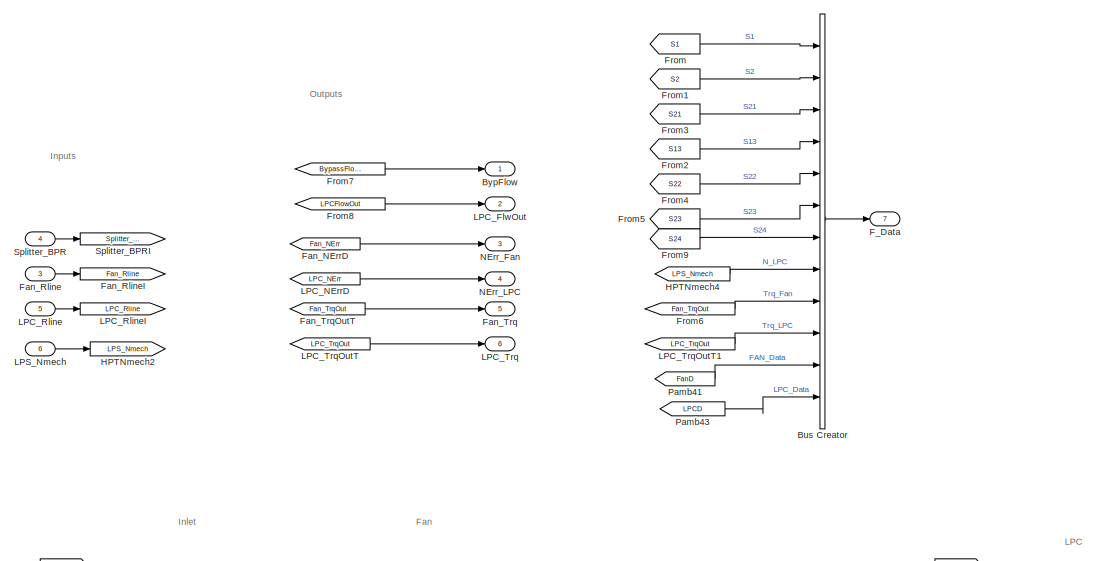
[diagram: While Iterator Plant/Plant model/Front_End - part 1/3, top center region]
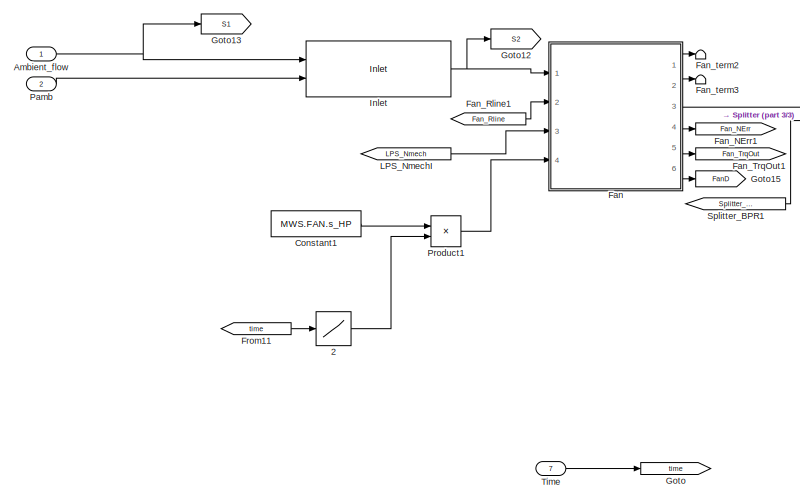
[diagram: While Iterator Plant/Plant model/Front_End - part 2/3, bottom left region]
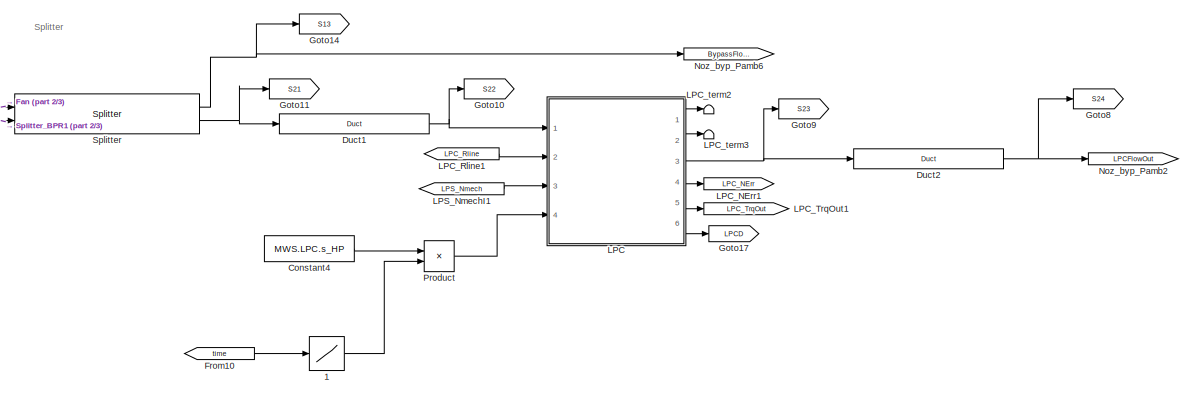
[diagram: While Iterator Plant/Plant model/Front_End - part 3/3, bottom right region]
BLOCK [SubSystem] While Iterator Plant/Plant model/Front_End
  Ports = [7, 7]
  RequestExecContextInheritance = off
  Variant = off
BLOCK [Lookup] While Iterator Plant/Plant model/Front_End/1
  InputValues = MWS.HP_in.t
  SaturateOnIntegerOverflow = off
  Table = MWS.HP_in.scaled
BLOCK [Lookup] While Iterator Plant/Plant model/Front_End/2
  InputValues = MWS.HP_in.t
  SaturateOnIntegerOverflow = off
  Table = MWS.HP_in.scaled
BLOCK [Inport] While Iterator Plant/Plant model/Front_End/Ambient_flow
  IconDisplay = Port number
BLOCK [BusCreator] While Iterator Plant/Plant model/Front_End/Bus Creator
  DisplayOption = bar
  InheritFromInputs = on
  Inputs = 12
  Ports = [12, 1]
BLOCK [Outport] While Iterator Plant/Plant model/Front_End/BypFlow
  IconDisplay = Port number
BLOCK [Constant] While Iterator Plant/Plant model/Front_End/Constant1
  Value = MWS.FAN.s_HP
BLOCK [Constant] While Iterator Plant/Plant model/Front_End/Constant4
  Value = MWS.LPC.s_HP
BLOCK [Reference] While Iterator Plant/Plant model/Front_End/Duct1  REF=Lib_Turbo_Duct_TMATS/Duct
  Ports = [1, 1]
  SourceBlock = Lib_Turbo_Duct_TMATS/Duct
  SourceType = T-MATS: Duct Library Block
BLOCK [Reference] While Iterator Plant/Plant model/Front_End/Duct2  REF=Lib_Turbo_Duct_TMATS/Duct
  Ports = [1, 1]
  SourceBlock = Lib_Turbo_Duct_TMATS/Duct
  SourceType = T-MATS: Duct Library Block
BLOCK [Outport] While Iterator Plant/Plant model/Front_End/F_Data
  IconDisplay = Port number
  Port = 7
BLOCK [SubSystem] While Iterator Plant/Plant model/Front_End/Fan
  AncestorBlock = Lib_Turbo_Compressor_TMATS/Compressor
  Ports = [4, 6]
  RequestExecContextInheritance = off
  Variant = off
BLOCK [Constant] While Iterator Plant/Plant model/Front_End/Fan/Block Name from Mask
  Value = BlkNm_M
BLOCK [BusCreator] While Iterator Plant/Plant model/Front_End/Fan/Bus Creator
  DisplayOption = bar
  InheritFromInputs = on
  Inputs = 12
  Ports = [12, 1]
BLOCK [BusCreator] While Iterator Plant/Plant model/Front_End/Fan/Bus Creator1
  DisplayOption = bar
  InheritFromInputs = on
  Inputs = 25
  Ports = [25, 1]
BLOCK [BusCreator] While Iterator Plant/Plant model/Front_End/Fan/Bus Creator2
  DisplayOption = bar
  InheritFromInputs = on
  Inputs = 5
  Ports = [5, 1]
BLOCK [Outport] While Iterator Plant/Plant model/Front_End/Fan/C_Data
  IconDisplay = Port number
  Port = 6
BLOCK [S-Function] While Iterator Plant/Plant model/Front_End/Fan/Compressor
  EnableBusSupport = off
  FunctionName = Compressor_TMATS
  Ports = [3, 3]
  SFcnIsStateOwnerBlock = off
  SFunctionDeploymentMode = off
  SFunctionModules = 'h2tc_TMATS pt2sc_TMATS sp2tc_TMATS t2hc_TMATS interp1Ac_TMATS interp2Ac_TMATS interp3Ac_TMATS functions_TMATS'
BLOCK [Constant] While Iterator Plant/Plant model/Front_End/Fan/Constant
  Value = s_C_Nc_M
BLOCK [Constant] While Iterator Plant/Plant model/Front_End/Fan/Constant1
  Value = s_C_PR_M
BLOCK [Constant] While Iterator Plant/Plant model/Front_End/Fan/Constant2
  Value = s_C_Wc_M
BLOCK [Constant] While Iterator Plant/Plant model/Front_End/Fan/Constant3
  Value = s_C_Eff_M
BLOCK [Constant] While Iterator Plant/Plant model/Front_End/Fan/Constant4
BLOCK [Outport] While Iterator Plant/Plant model/Front_End/Fan/CustBldsCharOut
  IconDisplay = Port number
  PortDimensions = length(C_CBD_M)*5
BLOCK [Constant] While Iterator Plant/Plant model/Front_End/Fan/Customer or flow based Bleed Demand Vector
  Value = C_CBD_M
BLOCK [Demux] While Iterator Plant/Plant model/Front_End/Fan/Demux
  DisplayOption = bar
  Outputs = 27
  Ports = [1, 27]
BLOCK [Demux] While Iterator Plant/Plant model/Front_End/Fan/Demux1
  DisplayOption = bar
  Outputs = 5
  Ports = [1, 5]
BLOCK [Demux] While Iterator Plant/Plant model/Front_End/Fan/Demux2
  DisplayOption = bar
  Outputs = 3
  Ports = [1, 3]
BLOCK [Outport] While Iterator Plant/Plant model/Front_End/Fan/FBldsCharOut
  IconDisplay = Port number
  Port = 2
  PortDimensions = length(C_FBD_M)*5
BLOCK [Constant] While Iterator Plant/Plant model/Front_End/Fan/Fractional Bleed Demand Vector
  Value = C_FBD_M
BLOCK [Inport] While Iterator Plant/Plant model/Front_End/Fan/GasPthCharIn
  IconDisplay = Port number
BLOCK [Outport] While Iterator Plant/Plant model/Front_End/Fan/GasPthCharOut
  IconDisplay = Port number
  Port = 3
BLOCK [Goto] While Iterator Plant/Plant model/Front_End/Fan/Goto
  GotoTag = Nmech
BLOCK [From] While Iterator Plant/Plant model/Front_End/Fan/Goto1
  GotoTag = Nmech
BLOCK [Goto] While Iterator Plant/Plant model/Front_End/Fan/Goto2
  GotoTag = OnDesign
BLOCK [From] While Iterator Plant/Plant model/Front_End/Fan/Goto3
  GotoTag = OnDesign
BLOCK [From] While Iterator Plant/Plant model/Front_End/Fan/Goto4
  GotoTag = OnDesign
BLOCK [Goto] While Iterator Plant/Plant model/Front_End/Fan/Goto5
  GotoTag = HPMods
BLOCK [From] While Iterator Plant/Plant model/Front_End/Fan/Goto6
  GotoTag = HPMods
BLOCK [Inport] While Iterator Plant/Plant model/Front_End/Fan/HP_Mods
  IconDisplay = Port number
  Port = 4
BLOCK [Outport] While Iterator Plant/Plant model/Front_End/Fan/NErr
  IconDisplay = Port number
  Port = 4
BLOCK [Inport] While Iterator Plant/Plant model/Front_End/Fan/Nmech
  IconDisplay = Port number
  Port = 3
BLOCK [RelationalOperator] While Iterator Plant/Plant model/Front_End/Fan/Relational Operator
  InputSameDT = off
  Operator = ==
  OutDataTypeStr = boolean
  Ports = [2, 1]
BLOCK [Inport] While Iterator Plant/Plant model/Front_End/Fan/Rline
  IconDisplay = Port number
  Port = 2
BLOCK [Constant] While Iterator Plant/Plant model/Front_End/Fan/ScalarOutputEnable
  Value = iDesign_M
BLOCK [Constant] While Iterator Plant/Plant model/Front_End/Fan/ScalarOutputEnable1
  Value = 0
BLOCK [SubSystem] While Iterator Plant/Plant model/Front_End/Fan/Scalar_To_Workspace
  Ports = [4, 0, 1]
  RequestExecContextInheritance = off
  Variant = off
BLOCK [Inport] While Iterator Plant/Plant model/Front_End/Fan/Scalar_To_Workspace/C_Eff
  IconDisplay = Port number
  Port = 4
BLOCK [Inport] While Iterator Plant/Plant model/Front_End/Fan/Scalar_To_Workspace/C_Nc
  IconDisplay = Port number
BLOCK [Inport] While Iterator Plant/Plant model/Front_End/Fan/Scalar_To_Workspace/C_PR
  IconDisplay = Port number
  Port = 3
BLOCK [Inport] While Iterator Plant/Plant model/Front_End/Fan/Scalar_To_Workspace/C_Wc
  IconDisplay = Port number
  Port = 2
BLOCK [Reference] While Iterator Plant/Plant model/Front_End/Fan/Scalar_To_Workspace/DataOutput  REF=Lib_Solve_DataOut_TMATS/DataOutput
  Ports = [1]
  SourceBlock = Lib_Solve_DataOut_TMATS/DataOutput
  SourceType = T-MATS: Data Output Library Block
BLOCK [EnablePort] While Iterator Plant/Plant model/Front_End/Fan/Scalar_To_Workspace/Enable
  Ports = []
BLOCK [Mux] While Iterator Plant/Plant model/Front_End/Fan/Scalar_To_Workspace/Mux
  DisplayOption = bar
  Ports = [4, 1]
BLOCK [Outport] While Iterator Plant/Plant model/Front_End/Fan/TrqOut
  IconDisplay = Port number
  Port = 5
BLOCK [SubSystem] While Iterator Plant/Plant model/Front_End/Fan/scalarMod
  Ports = [5, 3]
  RequestExecContextInheritance = off
  Variant = off
BLOCK [Outport] While Iterator Plant/Plant model/Front_End/Fan/scalarMod/C_Eff
  IconDisplay = Port number
  Port = 3
BLOCK [Outport] While Iterator Plant/Plant model/Front_End/Fan/scalarMod/C_PR
  IconDisplay = Port number
  Port = 2
BLOCK [Outport] While Iterator Plant/Plant model/Front_End/Fan/scalarMod/C_Wc
  IconDisplay = Port number
BLOCK [Constant] While Iterator Plant/Plant model/Front_End/Fan/scalarMod/Constant
BLOCK [Constant] While Iterator Plant/Plant model/Front_End/Fan/scalarMod/Constant1
BLOCK [Constant] While Iterator Plant/Plant model/Front_End/Fan/scalarMod/Constant2
BLOCK [DataTypeConversion] While Iterator Plant/Plant model/Front_End/Fan/scalarMod/Data Type Conversion
  RndMeth = Floor
  SaturateOnIntegerOverflow = off
BLOCK [Demux] While Iterator Plant/Plant model/Front_End/Fan/scalarMod/Demux
  DisplayOption = bar
  Outputs = 3
  Ports = [1, 3]
BLOCK [Goto] While Iterator Plant/Plant model/Front_End/Fan/scalarMod/Goto
  GotoTag = OffDesign
BLOCK [From] While Iterator Plant/Plant model/Front_End/Fan/scalarMod/Goto1
  GotoTag = OffDesign
BLOCK [From] While Iterator Plant/Plant model/Front_End/Fan/scalarMod/Goto2
  GotoTag = OffDesign
BLOCK [From] While Iterator Plant/Plant model/Front_End/Fan/scalarMod/Goto3
  GotoTag = OffDesign
BLOCK [Goto] While Iterator Plant/Plant model/Front_End/Fan/scalarMod/Goto4
  GotoTag = WcMod
BLOCK [Goto] While Iterator Plant/Plant model/Front_End/Fan/scalarMod/Goto5
  GotoTag = PRMod
BLOCK [Goto] While Iterator Plant/Plant model/Front_End/Fan/scalarMod/Goto6
  GotoTag = EffMod
BLOCK [From] While Iterator Plant/Plant model/Front_End/Fan/scalarMod/Goto7
  GotoTag = WcMod
BLOCK [From] While Iterator Plant/Plant model/Front_End/Fan/scalarMod/Goto8
  GotoTag = PRMod
BLOCK [From] While Iterator Plant/Plant model/Front_End/Fan/scalarMod/Goto9
  GotoTag = EffMod
BLOCK [Inport] While Iterator Plant/Plant model/Front_End/Fan/scalarMod/HPMods
  IconDisplay = Port number
  Port = 2
BLOCK [Logic] While Iterator Plant/Plant model/Front_End/Fan/scalarMod/Logical Operator
  AllPortsSameDT = off
  Operator = NOT
  OutDataTypeStr = boolean
  Ports = [1, 1]
BLOCK [Inport] While Iterator Plant/Plant model/Front_End/Fan/scalarMod/OnDesign
  IconDisplay = Port number
BLOCK [Product] While Iterator Plant/Plant model/Front_End/Fan/scalarMod/Product
  InputSameDT = off
  OutDataTypeStr = Inherit: Inherit via internal rule
  Ports = [2, 1]
  RndMeth = Floor
  SaturateOnIntegerOverflow = off
BLOCK [Product] While Iterator Plant/Plant model/Front_End/Fan/scalarMod/Product1
  InputSameDT = off
  OutDataTypeStr = Inherit: Inherit via internal rule
  Ports = [2, 1]
  RndMeth = Floor
  SaturateOnIntegerOverflow = off
BLOCK [Product] While Iterator Plant/Plant model/Front_End/Fan/scalarMod/Product2
  InputSameDT = off
  OutDataTypeStr = Inherit: Inherit via internal rule
  Ports = [2, 1]
  RndMeth = Floor
  SaturateOnIntegerOverflow = off
BLOCK [Product] While Iterator Plant/Plant model/Front_End/Fan/scalarMod/Product3
  InputSameDT = off
  OutDataTypeStr = Inherit: Inherit via internal rule
  Ports = [2, 1]
  RndMeth = Floor
  SaturateOnIntegerOverflow = off
BLOCK [Product] While Iterator Plant/Plant model/Front_End/Fan/scalarMod/Product4
  InputSameDT = off
  OutDataTypeStr = Inherit: Inherit via internal rule
  Ports = [2, 1]
  RndMeth = Floor
  SaturateOnIntegerOverflow = off
BLOCK [Product] While Iterator Plant/Plant model/Front_End/Fan/scalarMod/Product5
  InputSameDT = off
  OutDataTypeStr = Inherit: Inherit via internal rule
  Ports = [2, 1]
  RndMeth = Floor
  SaturateOnIntegerOverflow = off
BLOCK [Sum] While Iterator Plant/Plant model/Front_End/Fan/scalarMod/Sum
  IconShape = round
  InputSameDT = off
  Inputs = ++|
  OutDataTypeStr = Inherit: Inherit via internal rule
  Ports = [2, 1]
  SaturateOnIntegerOverflow = off
BLOCK [Sum] While Iterator Plant/Plant model/Front_End/Fan/scalarMod/Sum1
  IconShape = round
  InputSameDT = off
  Inputs = ++|
  OutDataTypeStr = Inherit: Inherit via internal rule
  Ports = [2, 1]
  SaturateOnIntegerOverflow = off
BLOCK [Sum] While Iterator Plant/Plant model/Front_End/Fan/scalarMod/Sum2
  IconShape = round
  InputSameDT = off
  Inputs = ++|
  OutDataTypeStr = Inherit: Inherit via internal rule
  Ports = [2, 1]
  SaturateOnIntegerOverflow = off
BLOCK [Inport] While Iterator Plant/Plant model/Front_End/Fan/scalarMod/s_Eff
  IconDisplay = Port number
  Port = 5
BLOCK [Inport] While Iterator Plant/Plant model/Front_End/Fan/scalarMod/s_PR
  IconDisplay = Port number
  Port = 4
BLOCK [Inport] While Iterator Plant/Plant model/Front_End/Fan/scalarMod/s_Wc
  IconDisplay = Port number
  Port = 3
BLOCK [Goto] While Iterator Plant/Plant model/Front_End/Fan_NErr1
  GotoTag = Fan_NErr
BLOCK [From] While Iterator Plant/Plant model/Front_End/Fan_NErrD
  GotoTag = Fan_NErr
BLOCK [Inport] While Iterator Plant/Plant model/Front_End/Fan_Rline
  IconDisplay = Port number
  Port = 3
BLOCK [From] While Iterator Plant/Plant model/Front_End/Fan_Rline1
  GotoTag = Fan_Rline
BLOCK [Goto] While Iterator Plant/Plant model/Front_End/Fan_RlineI
  GotoTag = Fan_Rline
BLOCK [Outport] While Iterator Plant/Plant model/Front_End/Fan_Trq
  IconDisplay = Port number
  Port = 5
BLOCK [Goto] While Iterator Plant/Plant model/Front_End/Fan_TrqOut1
  GotoTag = Fan_TrqOut
BLOCK [From] While Iterator Plant/Plant model/Front_End/Fan_TrqOutT
  GotoTag = Fan_TrqOut
BLOCK [Terminator] While Iterator Plant/Plant model/Front_End/Fan_term2
BLOCK [Terminator] While Iterator Plant/Plant model/Front_End/Fan_term3
BLOCK [From] While Iterator Plant/Plant model/Front_End/From
  GotoTag = S1
BLOCK [From] While Iterator Plant/Plant model/Front_End/From1
  GotoTag = S2
BLOCK [From] While Iterator Plant/Plant model/Front_End/From10
  GotoTag = time
BLOCK [From] While Iterator Plant/Plant model/Front_End/From11
  GotoTag = time
BLOCK [From] While Iterator Plant/Plant model/Front_End/From2
  GotoTag = S13
BLOCK [From] While Iterator Plant/Plant model/Front_End/From3
  GotoTag = S21
BLOCK [From] While Iterator Plant/Plant model/Front_End/From4
  GotoTag = S22
BLOCK [From] While Iterator Plant/Plant model/Front_End/From5
  GotoTag = S23
BLOCK [From] While Iterator Plant/Plant model/Front_End/From6
  GotoTag = Fan_TrqOut
BLOCK [From] While Iterator Plant/Plant model/Front_End/From7
  GotoTag = BypassFlowOut
BLOCK [From] While Iterator Plant/Plant model/Front_End/From8
  GotoTag = LPCFlowOut
BLOCK [From] While Iterator Plant/Plant model/Front_End/From9
  GotoTag = S24
BLOCK [Goto] While Iterator Plant/Plant model/Front_End/Goto
  GotoTag = time
BLOCK [Goto] While Iterator Plant/Plant model/Front_End/Goto10
  GotoTag = S22
BLOCK [Goto] While Iterator Plant/Plant model/Front_End/Goto11
  GotoTag = S21
BLOCK [Goto] While Iterator Plant/Plant model/Front_End/Goto12
  GotoTag = S2
BLOCK [Goto] While Iterator Plant/Plant model/Front_End/Goto13
  GotoTag = S1
BLOCK [Goto] While Iterator Plant/Plant model/Front_End/Goto14
  GotoTag = S13
BLOCK [Goto] While Iterator Plant/Plant model/Front_End/Goto15
  GotoTag = FanD
BLOCK [Goto] While Iterator Plant/Plant model/Front_End/Goto17
  GotoTag = LPCD
BLOCK [Goto] While Iterator Plant/Plant model/Front_End/Goto8
  GotoTag = S24
BLOCK [Goto] While Iterator Plant/Plant model/Front_End/Goto9
  GotoTag = S23
BLOCK [Goto] While Iterator Plant/Plant model/Front_End/HPTNmech2
  GotoTag = LPS_Nmech
BLOCK [From] While Iterator Plant/Plant model/Front_End/HPTNmech4
  GotoTag = LPS_Nmech
BLOCK [Reference] While Iterator Plant/Plant model/Front_End/Inlet  REF=Lib_Turbo_Inlet_TMATS/Inlet
  Ports = [2, 1]
  SourceBlock = Lib_Turbo_Inlet_TMATS/Inlet
  SourceType = T-MATS: Inlet Library Block
BLOCK [SubSystem] While Iterator Plant/Plant model/Front_End/LPC
  Ports = [4, 6]
  RequestExecContextInheritance = off
  Variant = off
BLOCK [Constant] While Iterator Plant/Plant model/Front_End/LPC/Block Name from Mask
  Value = BlkNm_M
BLOCK [BusCreator] While Iterator Plant/Plant model/Front_End/LPC/Bus Creator
  DisplayOption = bar
  InheritFromInputs = on
  Inputs = 12
  Ports = [12, 1]
BLOCK [BusCreator] While Iterator Plant/Plant model/Front_End/LPC/Bus Creator1
  DisplayOption = bar
  InheritFromInputs = on
  Inputs = 25
  Ports = [25, 1]
BLOCK [BusCreator] While Iterator Plant/Plant model/Front_End/LPC/Bus Creator2
  DisplayOption = bar
  InheritFromInputs = on
  Inputs = 5
  Ports = [5, 1]
BLOCK [Outport] While Iterator Plant/Plant model/Front_End/LPC/C_Data
  IconDisplay = Port number
  Port = 6
BLOCK [S-Function] While Iterator Plant/Plant model/Front_End/LPC/Compressor
  EnableBusSupport = off
  FunctionName = Compressor_TMATS
  Ports = [3, 3]
  SFcnIsStateOwnerBlock = off
  SFunctionDeploymentMode = off
  SFunctionModules = 'h2tc_TMATS pt2sc_TMATS sp2tc_TMATS t2hc_TMATS interp1Ac_TMATS interp2Ac_TMATS interp3Ac_TMATS functions_TMATS'
BLOCK [Constant] While Iterator Plant/Plant model/Front_End/LPC/Constant
  Value = s_C_Nc_M
BLOCK [Constant] While Iterator Plant/Plant model/Front_End/LPC/Constant1
  Value = s_C_PR_M
BLOCK [Constant] While Iterator Plant/Plant model/Front_End/LPC/Constant2
  Value = s_C_Wc_M
BLOCK [Constant] While Iterator Plant/Plant model/Front_End/LPC/Constant3
  Value = s_C_Eff_M
BLOCK [Constant] While Iterator Plant/Plant model/Front_End/LPC/Constant4
BLOCK [Outport] While Iterator Plant/Plant model/Front_End/LPC/CustBldsCharOut
  IconDisplay = Port number
  PortDimensions = length(C_CBD_M)*5
BLOCK [Constant] While Iterator Plant/Plant model/Front_End/LPC/Customer or flow based Bleed Demand Vector
  Value = C_CBD_M
BLOCK [Demux] While Iterator Plant/Plant model/Front_End/LPC/Demux
  DisplayOption = bar
  Outputs = 27
  Ports = [1, 27]
BLOCK [Demux] While Iterator Plant/Plant model/Front_End/LPC/Demux1
  DisplayOption = bar
  Outputs = 5
  Ports = [1, 5]
BLOCK [Demux] While Iterator Plant/Plant model/Front_End/LPC/Demux2
  DisplayOption = bar
  Outputs = 3
  Ports = [1, 3]
BLOCK [Outport] While Iterator Plant/Plant model/Front_End/LPC/FBldsCharOut
  IconDisplay = Port number
  Port = 2
  PortDimensions = length(C_FBD_M)*5
BLOCK [Constant] While Iterator Plant/Plant model/Front_End/LPC/Fractional Bleed Demand Vector
  Value = C_FBD_M
BLOCK [Inport] While Iterator Plant/Plant model/Front_End/LPC/GasPthCharIn
  IconDisplay = Port number
BLOCK [Outport] While Iterator Plant/Plant model/Front_End/LPC/GasPthCharOut
  IconDisplay = Port number
  Port = 3
BLOCK [Goto] While Iterator Plant/Plant model/Front_End/LPC/Goto
  GotoTag = Nmech
BLOCK [From] While Iterator Plant/Plant model/Front_End/LPC/Goto1
  GotoTag = Nmech
BLOCK [Goto] While Iterator Plant/Plant model/Front_End/LPC/Goto2
  GotoTag = OnDesign
BLOCK [From] While Iterator Plant/Plant model/Front_End/LPC/Goto3
  GotoTag = OnDesign
BLOCK [From] While Iterator Plant/Plant model/Front_End/LPC/Goto4
  GotoTag = OnDesign
BLOCK [Goto] While Iterator Plant/Plant model/Front_End/LPC/Goto5
  GotoTag = HPMods
BLOCK [From] While Iterator Plant/Plant model/Front_End/LPC/Goto6
  GotoTag = HPMods
BLOCK [Inport] While Iterator Plant/Plant model/Front_End/LPC/HP_Mods
  IconDisplay = Port number
  Port = 4
BLOCK [Outport] While Iterator Plant/Plant model/Front_End/LPC/NErr
  IconDisplay = Port number
  Port = 4
BLOCK [Inport] While Iterator Plant/Plant model/Front_End/LPC/Nmech
  IconDisplay = Port number
  Port = 3
BLOCK [RelationalOperator] While Iterator Plant/Plant model/Front_End/LPC/Relational Operator
  InputSameDT = off
  Operator = ==
  OutDataTypeStr = boolean
  Ports = [2, 1]
BLOCK [Inport] While Iterator Plant/Plant model/Front_End/LPC/Rline
  IconDisplay = Port number
  Port = 2
BLOCK [Constant] While Iterator Plant/Plant model/Front_End/LPC/ScalarOutputEnable
  Value = iDesign_M
BLOCK [Constant] While Iterator Plant/Plant model/Front_End/LPC/ScalarOutputEnable1
  Value = 0
BLOCK [SubSystem] While Iterator Plant/Plant model/Front_End/LPC/Scalar_To_Workspace
  Ports = [4, 0, 1]
  RequestExecContextInheritance = off
  Variant = off
BLOCK [Inport] While Iterator Plant/Plant model/Front_End/LPC/Scalar_To_Workspace/C_Eff
  IconDisplay = Port number
  Port = 4
BLOCK [Inport] While Iterator Plant/Plant model/Front_End/LPC/Scalar_To_Workspace/C_Nc
  IconDisplay = Port number
BLOCK [Inport] While Iterator Plant/Plant model/Front_End/LPC/Scalar_To_Workspace/C_PR
  IconDisplay = Port number
  Port = 3
BLOCK [Inport] While Iterator Plant/Plant model/Front_End/LPC/Scalar_To_Workspace/C_Wc
  IconDisplay = Port number
  Port = 2
BLOCK [Reference] While Iterator Plant/Plant model/Front_End/LPC/Scalar_To_Workspace/DataOutput  REF=Lib_Solve_DataOut_TMATS/DataOutput
  Ports = [1]
  SourceBlock = Lib_Solve_DataOut_TMATS/DataOutput
  SourceType = T-MATS: Data Output Library Block
BLOCK [EnablePort] While Iterator Plant/Plant model/Front_End/LPC/Scalar_To_Workspace/Enable
  Ports = []
BLOCK [Mux] While Iterator Plant/Plant model/Front_End/LPC/Scalar_To_Workspace/Mux
  DisplayOption = bar
  Ports = [4, 1]
BLOCK [Outport] While Iterator Plant/Plant model/Front_End/LPC/TrqOut
  IconDisplay = Port number
  Port = 5
BLOCK [SubSystem] While Iterator Plant/Plant model/Front_End/LPC/scalarMod
  Ports = [5, 3]
  RequestExecContextInheritance = off
  Variant = off
BLOCK [Outport] While Iterator Plant/Plant model/Front_End/LPC/scalarMod/C_Eff
  IconDisplay = Port number
  Port = 3
BLOCK [Outport] While Iterator Plant/Plant model/Front_End/LPC/scalarMod/C_PR
  IconDisplay = Port number
  Port = 2
BLOCK [Outport] While Iterator Plant/Plant model/Front_End/LPC/scalarMod/C_Wc
  IconDisplay = Port number
BLOCK [Constant] While Iterator Plant/Plant model/Front_End/LPC/scalarMod/Constant
BLOCK [Constant] While Iterator Plant/Plant model/Front_End/LPC/scalarMod/Constant1
BLOCK [Constant] While Iterator Plant/Plant model/Front_End/LPC/scalarMod/Constant2
BLOCK [DataTypeConversion] While Iterator Plant/Plant model/Front_End/LPC/scalarMod/Data Type Conversion
  RndMeth = Floor
  SaturateOnIntegerOverflow = off
BLOCK [Demux] While Iterator Plant/Plant model/Front_End/LPC/scalarMod/Demux
  DisplayOption = bar
  Outputs = 3
  Ports = [1, 3]
BLOCK [Goto] While Iterator Plant/Plant model/Front_End/LPC/scalarMod/Goto
  GotoTag = OffDesign
BLOCK [From] While Iterator Plant/Plant model/Front_End/LPC/scalarMod/Goto1
  GotoTag = OffDesign
BLOCK [From] While Iterator Plant/Plant model/Front_End/LPC/scalarMod/Goto2
  GotoTag = OffDesign
BLOCK [From] While Iterator Plant/Plant model/Front_End/LPC/scalarMod/Goto3
  GotoTag = OffDesign
BLOCK [Goto] While Iterator Plant/Plant model/Front_End/LPC/scalarMod/Goto4
  GotoTag = WcMod
BLOCK [Goto] While Iterator Plant/Plant model/Front_End/LPC/scalarMod/Goto5
  GotoTag = PRMod
BLOCK [Goto] While Iterator Plant/Plant model/Front_End/LPC/scalarMod/Goto6
  GotoTag = EffMod
BLOCK [From] While Iterator Plant/Plant model/Front_End/LPC/scalarMod/Goto7
  GotoTag = WcMod
BLOCK [From] While Iterator Plant/Plant model/Front_End/LPC/scalarMod/Goto8
  GotoTag = PRMod
BLOCK [From] While Iterator Plant/Plant model/Front_End/LPC/scalarMod/Goto9
  GotoTag = EffMod
BLOCK [Inport] While Iterator Plant/Plant model/Front_End/LPC/scalarMod/HPMods
  IconDisplay = Port number
  Port = 2
BLOCK [Logic] While Iterator Plant/Plant model/Front_End/LPC/scalarMod/Logical Operator
  AllPortsSameDT = off
  Operator = NOT
  OutDataTypeStr = boolean
  Ports = [1, 1]
BLOCK [Inport] While Iterator Plant/Plant model/Front_End/LPC/scalarMod/OnDesign
  IconDisplay = Port number
BLOCK [Product] While Iterator Plant/Plant model/Front_End/LPC/scalarMod/Product
  InputSameDT = off
  OutDataTypeStr = Inherit: Inherit via internal rule
  Ports = [2, 1]
  RndMeth = Floor
  SaturateOnIntegerOverflow = off
BLOCK [Product] While Iterator Plant/Plant model/Front_End/LPC/scalarMod/Product1
  InputSameDT = off
  OutDataTypeStr = Inherit: Inherit via internal rule
  Ports = [2, 1]
  RndMeth = Floor
  SaturateOnIntegerOverflow = off
BLOCK [Product] While Iterator Plant/Plant model/Front_End/LPC/scalarMod/Product2
  InputSameDT = off
  OutDataTypeStr = Inherit: Inherit via internal rule
  Ports = [2, 1]
  RndMeth = Floor
  SaturateOnIntegerOverflow = off
BLOCK [Product] While Iterator Plant/Plant model/Front_End/LPC/scalarMod/Product3
  InputSameDT = off
  OutDataTypeStr = Inherit: Inherit via internal rule
  Ports = [2, 1]
  RndMeth = Floor
  SaturateOnIntegerOverflow = off
BLOCK [Product] While Iterator Plant/Plant model/Front_End/LPC/scalarMod/Product4
  InputSameDT = off
  OutDataTypeStr = Inherit: Inherit via internal rule
  Ports = [2, 1]
  RndMeth = Floor
  SaturateOnIntegerOverflow = off
BLOCK [Product] While Iterator Plant/Plant model/Front_End/LPC/scalarMod/Product5
  InputSameDT = off
  OutDataTypeStr = Inherit: Inherit via internal rule
  Ports = [2, 1]
  RndMeth = Floor
  SaturateOnIntegerOverflow = off
BLOCK [Sum] While Iterator Plant/Plant model/Front_End/LPC/scalarMod/Sum
  IconShape = round
  InputSameDT = off
  Inputs = ++|
  OutDataTypeStr = Inherit: Inherit via internal rule
  Ports = [2, 1]
  SaturateOnIntegerOverflow = off
BLOCK [Sum] While Iterator Plant/Plant model/Front_End/LPC/scalarMod/Sum1
  IconShape = round
  InputSameDT = off
  Inputs = ++|
  OutDataTypeStr = Inherit: Inherit via internal rule
  Ports = [2, 1]
  SaturateOnIntegerOverflow = off
BLOCK [Sum] While Iterator Plant/Plant model/Front_End/LPC/scalarMod/Sum2
  IconShape = round
  InputSameDT = off
  Inputs = ++|
  OutDataTypeStr = Inherit: Inherit via internal rule
  Ports = [2, 1]
  SaturateOnIntegerOverflow = off
BLOCK [Inport] While Iterator Plant/Plant model/Front_End/LPC/scalarMod/s_Eff
  IconDisplay = Port number
  Port = 5
BLOCK [Inport] While Iterator Plant/Plant model/Front_End/LPC/scalarMod/s_PR
  IconDisplay = Port number
  Port = 4
BLOCK [Inport] While Iterator Plant/Plant model/Front_End/LPC/scalarMod/s_Wc
  IconDisplay = Port number
  Port = 3
BLOCK [Outport] While Iterator Plant/Plant model/Front_End/LPC_FlwOut
  IconDisplay = Port number
  Port = 2
BLOCK [Goto] While Iterator Plant/Plant model/Front_End/LPC_NErr1
  GotoTag = LPC_NErr
BLOCK [From] While Iterator Plant/Plant model/Front_End/LPC_NErrD
  GotoTag = LPC_NErr
BLOCK [Inport] While Iterator Plant/Plant model/Front_End/LPC_Rline
  IconDisplay = Port number
  Port = 5
BLOCK [From] While Iterator Plant/Plant model/Front_End/LPC_Rline1
  GotoTag = LPC_Rline
BLOCK [Goto] While Iterator Plant/Plant model/Front_End/LPC_RlineI
  GotoTag = LPC_Rline
BLOCK [Outport] While Iterator Plant/Plant model/Front_End/LPC_Trq
  IconDisplay = Port number
  Port = 6
BLOCK [Goto] While Iterator Plant/Plant model/Front_End/LPC_TrqOut1
  GotoTag = LPC_TrqOut
BLOCK [From] While Iterator Plant/Plant model/Front_End/LPC_TrqOutT
  GotoTag = LPC_TrqOut
BLOCK [From] While Iterator Plant/Plant model/Front_End/LPC_TrqOutT1
  GotoTag = LPC_TrqOut
BLOCK [Terminator] While Iterator Plant/Plant model/Front_End/LPC_term2
BLOCK [Terminator] While Iterator Plant/Plant model/Front_End/LPC_term3
BLOCK [Inport] While Iterator Plant/Plant model/Front_End/LPS_Nmech
  IconDisplay = Port number
  Port = 6
BLOCK [From] While Iterator Plant/Plant model/Front_End/LPS_NmechI
  GotoTag = LPS_Nmech
BLOCK [From] While Iterator Plant/Plant model/Front_End/LPS_NmechI1
  GotoTag = LPS_Nmech
BLOCK [Outport] While Iterator Plant/Plant model/Front_End/NErr_Fan
  IconDisplay = Port number
  Port = 3
BLOCK [Outport] While Iterator Plant/Plant model/Front_End/NErr_LPC
  IconDisplay = Port number
  Port = 4
BLOCK [Goto] While Iterator Plant/Plant model/Front_End/Noz_byp_Pamb2
  GotoTag = LPCFlowOut
BLOCK [Goto] While Iterator Plant/Plant model/Front_End/Noz_byp_Pamb6
  GotoTag = BypassFlowOut
BLOCK [Inport] While Iterator Plant/Plant model/Front_End/Pamb
  IconDisplay = Port number
  Port = 2
BLOCK [From] While Iterator Plant/Plant model/Front_End/Pamb41
  GotoTag = FanD
BLOCK [From] While Iterator Plant/Plant model/Front_End/Pamb43
  GotoTag = LPCD
BLOCK [Product] While Iterator Plant/Plant model/Front_End/Product
  InputSameDT = off
  OutDataTypeStr = Inherit: Inherit via internal rule
  Ports = [2, 1]
  RndMeth = Floor
  SaturateOnIntegerOverflow = off
BLOCK [Product] While Iterator Plant/Plant model/Front_End/Product1
  InputSameDT = off
  OutDataTypeStr = Inherit: Inherit via internal rule
  Ports = [2, 1]
  RndMeth = Floor
  SaturateOnIntegerOverflow = off
BLOCK [Reference] While Iterator Plant/Plant model/Front_End/Splitter  REF=Lib_Turbo_Splitter_TMATS/Splitter
  Ports = [2, 2]
  SourceBlock = Lib_Turbo_Splitter_TMATS/Splitter
  SourceType = T-MATS: Splitter Library Block
BLOCK [Inport] While Iterator Plant/Plant model/Front_End/Splitter_BPR
  IconDisplay = Port number
  Port = 4
BLOCK [From] While Iterator Plant/Plant model/Front_End/Splitter_BPR1
  GotoTag = Splitter_BPR
BLOCK [Goto] While Iterator Plant/Plant model/Front_End/Splitter_BPRI
  GotoTag = Splitter_BPR
BLOCK [Inport] While Iterator Plant/Plant model/Front_End/Time
  IconDisplay = Port number
  Port = 7
BLOCK [Goto] While Iterator Plant/Plant model/Goto
  GotoTag = Wf
BLOCK [Goto] While Iterator Plant/Plant model/Goto1
  GotoTag = TSFC
BLOCK [Goto] While Iterator Plant/Plant model/Goto10
  GotoTag = HPC_TrqOut
BLOCK [Goto] While Iterator Plant/Plant model/Goto11
  GotoTag = HPT_TrqOut
BLOCK [Goto] While Iterator Plant/Plant model/Goto12
  GotoTag = HPC_NErr
BLOCK [Goto] While Iterator Plant/Plant model/Goto13
  GotoTag = HPT_NErr
BLOCK [Goto] While Iterator Plant/Plant model/Goto14
  GotoTag = Core_Fg
BLOCK [Goto] While Iterator Plant/Plant model/Goto15
  GotoTag = FanD
BLOCK [From] While Iterator Plant/Plant model/Goto16
  GotoTag = FanD
BLOCK [Goto] While Iterator Plant/Plant model/Goto17
  GotoTag = LPCD
BLOCK [From] While Iterator Plant/Plant model/Goto18
  GotoTag = LPCD
BLOCK [Goto] While Iterator Plant/Plant model/Goto19
  GotoTag = HPCD
BLOCK [Goto] While Iterator Plant/Plant model/Goto2
  GotoTag = Noz_byp_NErr
BLOCK [From] While Iterator Plant/Plant model/Goto20
  GotoTag = HPCD
BLOCK [Goto] While Iterator Plant/Plant model/Goto21
  GotoTag = HPTD
BLOCK [From] While Iterator Plant/Plant model/Goto22
  GotoTag = HPTD
BLOCK [Goto] While Iterator Plant/Plant model/Goto23
  GotoTag = LPTD
BLOCK [From] While Iterator Plant/Plant model/Goto24
  GotoTag = LPTD
BLOCK [Goto] While Iterator Plant/Plant model/Goto26
  GotoTag = W
BLOCK [Goto] While Iterator Plant/Plant model/Goto27
  GotoTag = AmbData
BLOCK [Goto] While Iterator Plant/Plant model/Goto28
  GotoTag = LPC_NErr
BLOCK [Goto] While Iterator Plant/Plant model/Goto29
  GotoTag = Fan_NErr
BLOCK [Goto] While Iterator Plant/Plant model/Goto3
  GotoTag = Fnet
BLOCK [Goto] While Iterator Plant/Plant model/Goto30
  GotoTag = Fan_TrqOut
BLOCK [Goto] While Iterator Plant/Plant model/Goto31
  GotoTag = LPC_TrqOut
BLOCK [Goto] While Iterator Plant/Plant model/Goto4
  GotoTag = Fg
BLOCK [Goto] While Iterator Plant/Plant model/Goto5
  GotoTag = Byp_Fg
BLOCK [Goto] While Iterator Plant/Plant model/Goto6
  GotoTag = LPT_NErr
BLOCK [Goto] While Iterator Plant/Plant model/Goto7
  GotoTag = Noz_core_NErr
BLOCK [Goto] While Iterator Plant/Plant model/Goto8
  GotoTag = LPT_TrqOut
BLOCK [From] While Iterator Plant/Plant model/Goto87
  GotoTag = Fg
BLOCK [Goto] While Iterator Plant/Plant model/Goto9
  GotoTag = Pamb
BLOCK [Outport] While Iterator Plant/Plant model/HPC_NErr
  IconDisplay = Port number
  Port = 4
BLOCK [From] While Iterator Plant/Plant model/HPC_NErrD
  GotoTag = HPC_NErr
BLOCK [From] While Iterator Plant/Plant model/HPC_NErrD1
  GotoTag = HPC_NErr
BLOCK [Inport] While Iterator Plant/Plant model/HPC_Rline
  IconDisplay = Port number
  Port = 7
BLOCK [Goto] While Iterator Plant/Plant model/HPC_RlineI
  GotoTag = HPC_Rline
BLOCK [From] While Iterator Plant/Plant model/HPC_RlineI1
  GotoTag = HPC_Rline
BLOCK [From] While Iterator Plant/Plant model/HPC_TrqOutT
  GotoTag = HPC_TrqOut
BLOCK [From] While Iterator Plant/Plant model/HPC_TrqOutT1
  GotoTag = HPC_TrqOut
BLOCK [Reference] While Iterator Plant/Plant model/HPS  REF=Lib_Turbo_Shaft_TMATS/Shaft
  Ports = [2, 2]
  SourceBlock = Lib_Turbo_Shaft_TMATS/Shaft
  SourceType = T-MATS: Shaft Library Block
BLOCK [Outport] While Iterator Plant/Plant model/HPS_Ndot
  IconDisplay = Port number
  Port = 9
BLOCK [Goto] While Iterator Plant/Plant model/HPS_Ndot1
  GotoTag = HPS_Ndot
BLOCK [From] While Iterator Plant/Plant model/HPS_Ndot2
  GotoTag = HPS_Ndot
BLOCK [From] While Iterator Plant/Plant model/HPS_NdotD
  GotoTag = HPS_Ndot
BLOCK [Goto] While Iterator Plant/Plant model/HPS_Nmech1
  GotoTag = HPS_Nmech
BLOCK [From] While Iterator Plant/Plant model/HPS_Nmech2
  GotoTag = HPS_Nmech
BLOCK [Inport] While Iterator Plant/Plant model/HPS_NmechIn
  IconDisplay = Port number
  Port = 11
BLOCK [From] While Iterator Plant/Plant model/HPS_NmechIn1
  GotoTag = HPS_NmechIn
BLOCK [From] While Iterator Plant/Plant model/HPS_NmechIn2
  GotoTag = HPS_NmechIn
BLOCK [Goto] While Iterator Plant/Plant model/HPS_NmechInI
  GotoTag = HPS_NmechIn
BLOCK [Outport] While Iterator Plant/Plant model/HPT_NErr
  IconDisplay = Port number
  Port = 5
BLOCK [From] While Iterator Plant/Plant model/HPT_NErrD
  GotoTag = HPT_NErr
BLOCK [From] While Iterator Plant/Plant model/HPT_NErrD1
  GotoTag = HPT_NErr
BLOCK [Inport] While Iterator Plant/Plant model/HPT_PRin
  IconDisplay = Port number
  Port = 8
BLOCK [Goto] While Iterator Plant/Plant model/HPT_PRinI
  GotoTag = HPT_PRin
BLOCK [From] While Iterator Plant/Plant model/HPT_PRinI1
  GotoTag = HPT_PRin
BLOCK [From] While Iterator Plant/Plant model/HPT_TrqOutT
  GotoTag = HPT_TrqOut
BLOCK [From] While Iterator Plant/Plant model/HPT_TrqOutT1
  GotoTag = HPT_TrqOut
BLOCK [Inport] While Iterator Plant/Plant model/Input GPC
  IconDisplay = Port number
BLOCK [Outport] While Iterator Plant/Plant model/LPC_NErr
  IconDisplay = Port number
BLOCK [From] While Iterator Plant/Plant model/LPC_NErrD
  GotoTag = LPC_NErr
BLOCK [From] While Iterator Plant/Plant model/LPC_NErrD1
  GotoTag = LPC_NErr
BLOCK [Inport] While Iterator Plant/Plant model/LPC_Rline
  IconDisplay = Port number
  Port = 6
BLOCK [Goto] While Iterator Plant/Plant model/LPC_RlineI
  GotoTag = LPC_Rline
BLOCK [From] While Iterator Plant/Plant model/LPC_RlineI1
  GotoTag = LPC_Rline
BLOCK [From] While Iterator Plant/Plant model/LPC_TrqOutT
  GotoTag = LPC_TrqOut
BLOCK [From] While Iterator Plant/Plant model/LPC_TrqOutT1
  GotoTag = LPC_TrqOut
BLOCK [Reference] While Iterator Plant/Plant model/LPS  REF=Lib_Turbo_Shaft_TMATS/Shaft
  Ports = [2, 2]
  SourceBlock = Lib_Turbo_Shaft_TMATS/Shaft
  SourceType = T-MATS: Shaft Library Block
BLOCK [Outport] While Iterator Plant/Plant model/LPS_Ndot
  IconDisplay = Port number
  Port = 8
BLOCK [Goto] While Iterator Plant/Plant model/LPS_Ndot1
  GotoTag = LPS_Ndot
BLOCK [From] While Iterator Plant/Plant model/LPS_Ndot2
  GotoTag = LPS_Ndot
BLOCK [From] While Iterator Plant/Plant model/LPS_NdotD
  GotoTag = LPS_Ndot
BLOCK [Goto] While Iterator Plant/Plant model/LPS_Nmech1
  GotoTag = LPS_Nmech
BLOCK [From] While Iterator Plant/Plant model/LPS_Nmech2
  GotoTag = LPS_Nmech
BLOCK [Inport] While Iterator Plant/Plant model/LPS_NmechIn
  IconDisplay = Port number
  Port = 10
BLOCK [From] While Iterator Plant/Plant model/LPS_NmechIn1
  GotoTag = LPS_NmechIn
BLOCK [Goto] While Iterator Plant/Plant model/LPS_NmechInI
  GotoTag = LPS_NmechIn
BLOCK [Outport] While Iterator Plant/Plant model/LPT_NErr
  IconDisplay = Port number
  Port = 6
BLOCK [From] While Iterator Plant/Plant model/LPT_NErrD
  GotoTag = LPT_NErr
BLOCK [From] While Iterator Plant/Plant model/LPT_NErrD1
  GotoTag = LPT_NErr
BLOCK [Inport] While Iterator Plant/Plant model/LPT_PRin
  IconDisplay = Port number
  Port = 9
BLOCK [Goto] While Iterator Plant/Plant model/LPT_PRinI
  GotoTag = LPT_PRin
BLOCK [From] While Iterator Plant/Plant model/LPT_PRinI1
  GotoTag = LPT_PRin
BLOCK [From] While Iterator Plant/Plant model/LPT_TrqOutT
  GotoTag = LPT_TrqOut
BLOCK [From] While Iterator Plant/Plant model/LPT_TrqOutT1
  GotoTag = LPT_TrqOut
BLOCK [Mux] While Iterator Plant/Plant model/Mux
  DisplayOption = bar
  Inputs = 3
  Ports = [3, 1]
BLOCK [Mux] While Iterator Plant/Plant model/Mux1
  DisplayOption = bar
  Inputs = 2
  Ports = [2, 1]
BLOCK [Outport] While Iterator Plant/Plant model/Noz_byp_NErr
  IconDisplay = Port number
  Port = 2
BLOCK [From] While Iterator Plant/Plant model/Noz_byp_NErrD
  GotoTag = Noz_byp_NErr
BLOCK [From] While Iterator Plant/Plant model/Noz_byp_NErrD1
  GotoTag = Noz_byp_NErr
BLOCK [Goto] While Iterator Plant/Plant model/Noz_byp_Pamb10
  GotoTag = Plant_Data
BLOCK [From] While Iterator Plant/Plant model/Noz_byp_Pamb15
  GotoTag = Plant_Data
BLOCK [Outport] While Iterator Plant/Plant model/Noz_core_NErr
  IconDisplay = Port number
  Port = 7
BLOCK [From] While Iterator Plant/Plant model/Noz_core_NErrD
  GotoTag = Noz_core_NErr
BLOCK [From] While Iterator Plant/Plant model/Noz_core_NErrD1
  GotoTag = Noz_core_NErr
BLOCK [Goto] While Iterator Plant/Plant model/Pamb1
  GotoTag = B_D
BLOCK [Goto] While Iterator Plant/Plant model/Pamb2
  GotoTag = C_D
BLOCK [Goto] While Iterator Plant/Plant model/Pamb3
  GotoTag = F_D
BLOCK [Goto] While Iterator Plant/Plant model/Pamb4
  GotoTag = Time
BLOCK [Goto] While Iterator Plant/Plant model/Pamb9
  GotoTag = By_D
BLOCK [From] While Iterator Plant/Plant model/Plant modelHPS_Ndot1
  GotoTag = Byp_Fg
BLOCK [From] While Iterator Plant/Plant model/Plant modelHPS_Ndot2
  GotoTag = Core_Fg
BLOCK [Outport] While Iterator Plant/Plant model/Plant_Data
  IconDisplay = Port number
  Port = 10
BLOCK [Inport] While Iterator Plant/Plant model/Splitter_BPR
  IconDisplay = Port number
  Port = 5
BLOCK [Goto] While Iterator Plant/Plant model/Splitter_BPRI
  GotoTag = Splitter_BPR
BLOCK [From] While Iterator Plant/Plant model/Splitter_BPRI1
  GotoTag = Splitter_BPR
BLOCK [SubSystem] While Iterator Plant/Plant model/Station_Signal
  Ports = [4, 14]
  RequestExecContextInheritance = off
  Variant = off
BLOCK [Inport] While Iterator Plant/Plant model/Station_Signal/Back
  IconDisplay = Port number
  Port = 3
BLOCK [BusSelector] While Iterator Plant/Plant model/Station_Signal/Bus Selector3
  OutputSignals = S1,S2,S21,S13,S22,S23,S24
  Ports = [1, 7]
BLOCK [BusSelector] While Iterator Plant/Plant model/Station_Signal/Bus Selector4
  OutputSignals = S3,S4
  Ports = [1, 2]
BLOCK [BusSelector] While Iterator Plant/Plant model/Station_Signal/Bus Selector5
  OutputSignals = S45,S48,S5,S7
  Ports = [1, 4]
BLOCK [BusSelector] While Iterator Plant/Plant model/Station_Signal/Bus Selector6
  OutputSignals = S17
  Ports = [1, 1]
BLOCK [Inport] While Iterator Plant/Plant model/Station_Signal/Byp
  IconDisplay = Port number
  Port = 4
BLOCK [Inport] While Iterator Plant/Plant model/Station_Signal/Core
  IconDisplay = Port number
  Port = 2
BLOCK [Inport] While Iterator Plant/Plant model/Station_Signal/Front
  IconDisplay = Port number
BLOCK [Goto] While Iterator Plant/Plant model/Station_Signal/Goto
  GotoTag = S1
BLOCK [From] While Iterator Plant/Plant model/Station_Signal/Goto1
  GotoTag = S48
BLOCK [Goto] While Iterator Plant/Plant model/Station_Signal/Goto10
  GotoTag = S48
BLOCK [Goto] While Iterator Plant/Plant model/Station_Signal/Goto11
  GotoTag = S5
BLOCK [Goto] While Iterator Plant/Plant model/Station_Signal/Goto12
  GotoTag = S7
BLOCK [Goto] While Iterator Plant/Plant model/Station_Signal/Goto13
  GotoTag = S17
BLOCK [Goto] While Iterator Plant/Plant model/Station_Signal/Goto15
  GotoTag = S4
BLOCK [Goto] While Iterator Plant/Plant model/Station_Signal/Goto2
  GotoTag = S2
BLOCK [Goto] While Iterator Plant/Plant model/Station_Signal/Goto3
  GotoTag = S21
BLOCK [Goto] While Iterator Plant/Plant model/Station_Signal/Goto4
  GotoTag = S13
BLOCK [Goto] While Iterator Plant/Plant model/Station_Signal/Goto5
  GotoTag = S22
BLOCK [From] While Iterator Plant/Plant model/Station_Signal/Goto55
  GotoTag = S17
BLOCK [From] While Iterator Plant/Plant model/Station_Signal/Goto56
  GotoTag = S7
BLOCK [From] While Iterator Plant/Plant model/Station_Signal/Goto57
  GotoTag = S5
BLOCK [From] While Iterator Plant/Plant model/Station_Signal/Goto58
  GotoTag = S45
BLOCK [From] While Iterator Plant/Plant model/Station_Signal/Goto59
  GotoTag = S4
BLOCK [Goto] While Iterator Plant/Plant model/Station_Signal/Goto6
  GotoTag = S23
BLOCK [From] While Iterator Plant/Plant model/Station_Signal/Goto60
  GotoTag = S3
BLOCK [From] While Iterator Plant/Plant model/Station_Signal/Goto61
  GotoTag = S24
BLOCK [From] While Iterator Plant/Plant model/Station_Signal/Goto62
  GotoTag = S23
BLOCK [From] While Iterator Plant/Plant model/Station_Signal/Goto63
  GotoTag = S22
BLOCK [From] While Iterator Plant/Plant model/Station_Signal/Goto64
  GotoTag = S21
BLOCK [From] While Iterator Plant/Plant model/Station_Signal/Goto65
  GotoTag = S2
BLOCK [From] While Iterator Plant/Plant model/Station_Signal/Goto66
  GotoTag = S1
BLOCK [Goto] While Iterator Plant/Plant model/Station_Signal/Goto7
  GotoTag = S24
BLOCK [Goto] While Iterator Plant/Plant model/Station_Signal/Goto8
  GotoTag = S3
BLOCK [Goto] While Iterator Plant/Plant model/Station_Signal/Goto9
  GotoTag = S45
BLOCK [From] While Iterator Plant/Plant model/Station_Signal/Goto91
  GotoTag = S13
BLOCK [Outport] While Iterator Plant/Plant model/Station_Signal/S1
  IconDisplay = Port number
BLOCK [Outport] While Iterator Plant/Plant model/Station_Signal/S13
  IconDisplay = Port number
  Port = 4
BLOCK [Outport] While Iterator Plant/Plant model/Station_Signal/S17
  IconDisplay = Port number
  Port = 14
BLOCK [Outport] While Iterator Plant/Plant model/Station_Signal/S2
  IconDisplay = Port number
  Port = 2
BLOCK [Outport] While Iterator Plant/Plant model/Station_Signal/S21
  IconDisplay = Port number
  Port = 3
BLOCK [Outport] While Iterator Plant/Plant model/Station_Signal/S22
  IconDisplay = Port number
  Port = 5
BLOCK [Outport] While Iterator Plant/Plant model/Station_Signal/S24
  IconDisplay = Port number
  Port = 7
BLOCK [Outport] While Iterator Plant/Plant model/Station_Signal/S3
  IconDisplay = Port number
  Port = 8
BLOCK [Outport] While Iterator Plant/Plant model/Station_Signal/S4
  IconDisplay = Port number
  Port = 9
BLOCK [Outport] While Iterator Plant/Plant model/Station_Signal/S45
  IconDisplay = Port number
  Port = 10
BLOCK [Outport] While Iterator Plant/Plant model/Station_Signal/S48
  IconDisplay = Port number
  Port = 11
BLOCK [Outport] While Iterator Plant/Plant model/Station_Signal/S5
  IconDisplay = Port number
  Port = 12
BLOCK [Outport] While Iterator Plant/Plant model/Station_Signal/S6
  IconDisplay = Port number
  Port = 6
BLOCK [Outport] While Iterator Plant/Plant model/Station_Signal/S7
  IconDisplay = Port number
  Port = 13
BLOCK [SubSystem] While Iterator Plant/Plant model/Subsystem
  Ports = [2, 2]
  RequestExecContextInheritance = off
  Variant = off
BLOCK [BusCreator] While Iterator Plant/Plant model/Subsystem/Bus Creator8
  DisplayOption = bar
  InheritFromInputs = on
  Inputs = 2
  Ports = [2, 1]
BLOCK [Outport] While Iterator Plant/Plant model/Subsystem/By_Data
  IconDisplay = Port number
  Port = 2
BLOCK [Inport] While Iterator Plant/Plant model/Subsystem/BypFlow
  IconDisplay = Port number
BLOCK [Reference] While Iterator Plant/Plant model/Subsystem/Duct5  REF=Lib_Turbo_Duct_TMATS/Duct
  Ports = [1, 1]
  SourceBlock = Lib_Turbo_Duct_TMATS/Duct
  SourceType = T-MATS: Duct Library Block
BLOCK [From] While Iterator Plant/Plant model/Subsystem/From18
  GotoTag = S17
BLOCK [From] While Iterator Plant/Plant model/Subsystem/From19
  GotoTag = Byp_Fg
BLOCK [From] While Iterator Plant/Plant model/Subsystem/From20
  GotoTag = Noz_byp_NErr
BLOCK [Goto] While Iterator Plant/Plant model/Subsystem/Goto3
  GotoTag = S17
BLOCK [Outport] While Iterator Plant/Plant model/Subsystem/NErr_Noz_byp
  IconDisplay = Port number
BLOCK [Reference] While Iterator Plant/Plant model/Subsystem/Noz_byp  REF=Lib_Turbo_Nozzle_TMATS/Nozzle
  Ports = [2, 4]
  SourceBlock = Lib_Turbo_Nozzle_TMATS/Nozzle
  SourceType = T-MATS: Nozzle Library Block
BLOCK [Goto] While Iterator Plant/Plant model/Subsystem/Noz_byp_NErr1
  GotoTag = Noz_byp_NErr
BLOCK [Goto] While Iterator Plant/Plant model/Subsystem/Noz_byp_Pamb8
  GotoTag = Byp_Fg
BLOCK [Terminator] While Iterator Plant/Plant model/Subsystem/Noz_byp_term1
BLOCK [Terminator] While Iterator Plant/Plant model/Subsystem/Noz_byp_term3
BLOCK [Inport] While Iterator Plant/Plant model/Subsystem/Pamb
  IconDisplay = Port number
  Port = 2
BLOCK [SubSystem] While Iterator Plant/Plant model/Thrust_Calculate
  Ports = [4, 3]
  RequestExecContextInheritance = off
  Variant = off
BLOCK [Inport] While Iterator Plant/Plant model/Thrust_Calculate/AmbData
  IconDisplay = Port number
  Port = 3
BLOCK [BusSelector] While Iterator Plant/Plant model/Thrust_Calculate/Bus Selector
  OutputSignals = Fdrag
  Ports = [1, 1]
BLOCK [Inport] While Iterator Plant/Plant model/Thrust_Calculate/Byp_Fg
  IconDisplay = Port number
BLOCK [Terminator] While Iterator Plant/Plant model/Thrust_Calculate/Compressor_term1
BLOCK [Inport] While Iterator Plant/Plant model/Thrust_Calculate/Core_Fg
  IconDisplay = Port number
  Port = 2
BLOCK [Display] While Iterator Plant/Plant model/Thrust_Calculate/Display1
  Decimation = 1
  Ports = [1]
BLOCK [Display] While Iterator Plant/Plant model/Thrust_Calculate/Display2
  Decimation = 1
  Ports = [1]
BLOCK [Display] While Iterator Plant/Plant model/Thrust_Calculate/Display3
  Decimation = 1
  Ports = [1]
BLOCK [Outport] While Iterator Plant/Plant model/Thrust_Calculate/Fg
  IconDisplay = Port number
BLOCK [Outport] While Iterator Plant/Plant model/Thrust_Calculate/Fnet
  IconDisplay = Port number
  Port = 3
BLOCK [From] While Iterator Plant/Plant model/Thrust_Calculate/From
  GotoTag = Fnet
BLOCK [From] While Iterator Plant/Plant model/Thrust_Calculate/From1
  GotoTag = TSFC
BLOCK [From] While Iterator Plant/Plant model/Thrust_Calculate/From2
  GotoTag = Fg
BLOCK [From] While Iterator Plant/Plant model/Thrust_Calculate/From4
  GotoTag = AmbData
BLOCK [From] While Iterator Plant/Plant model/Thrust_Calculate/From5
  GotoTag = Fg
BLOCK [From] While Iterator Plant/Plant model/Thrust_Calculate/From6
  GotoTag = Wf
BLOCK [From] While Iterator Plant/Plant model/Thrust_Calculate/From7
  GotoTag = TSFC
BLOCK [Goto] While Iterator Plant/Plant model/Thrust_Calculate/Goto
  GotoTag = Byp_Fg
BLOCK [Goto] While Iterator Plant/Plant model/Thrust_Calculate/Goto1
  GotoTag = Fg
BLOCK [Goto] While Iterator Plant/Plant model/Thrust_Calculate/Goto2
  GotoTag = Core_Fg
BLOCK [Goto] While Iterator Plant/Plant model/Thrust_Calculate/Goto3
  GotoTag = Wf
BLOCK [Goto] While Iterator Plant/Plant model/Thrust_Calculate/Goto4
  GotoTag = AmbData
BLOCK [Goto] While Iterator Plant/Plant model/Thrust_Calculate/Pamb25
  GotoTag = Fnet
BLOCK [Goto] While Iterator Plant/Plant model/Thrust_Calculate/Pamb26
  GotoTag = TSFC
BLOCK [From] While Iterator Plant/Plant model/Thrust_Calculate/Plant modelHPS_Ndot6
  GotoTag = Byp_Fg
BLOCK [From] While Iterator Plant/Plant model/Thrust_Calculate/Plant modelHPS_Ndot7
  GotoTag = Core_Fg
BLOCK [Reference] While Iterator Plant/Plant model/Thrust_Calculate/SFCCalc  REF=Lib_Turbo_SFCCalc_TMATS/SFCCalc
  Ports = [3, 2]
  SourceBlock = Lib_Turbo_SFCCalc_TMATS/SFCCalc
  SourceType = TMATS: SFC Calculation Library Block
BLOCK [Scope] While Iterator Plant/Plant model/Thrust_Calculate/Scope1
  NumInputPorts = 1
  Ports = [1]
  ScopeSpecificationString = C++SS(StrPVP('SaveName','ScopeData1'),StrPVP('LimitDataPoints','on'),StrPVP('DataFormat','Array'),StrPVP('Decimation','1'),StrPVP('BlockParamSampleInput','off'))
BLOCK [Scope] While Iterator Plant/Plant model/Thrust_Calculate/Scope2
  NumInputPorts = 1
  Ports = [1]
  ScopeSpecificationString = C++SS(StrPVP('SaveName','ScopeData'),StrPVP('LimitDataPoints','on'),StrPVP('DataFormat','Array'),StrPVP('Decimation','1'),StrPVP('BlockParamSampleInput','off'))
BLOCK [Sum] While Iterator Plant/Plant model/Thrust_Calculate/Sum
  IconShape = round
  InputSameDT = off
  Inputs = |++
  OutDataTypeStr = Inherit: Inherit via internal rule
  Ports = [2, 1]
  SaturateOnIntegerOverflow = off
BLOCK [Outport] While Iterator Plant/Plant model/Thrust_Calculate/TSFC
  IconDisplay = Port number
  Port = 2
BLOCK [Inport] While Iterator Plant/Plant model/Thrust_Calculate/Wf
  IconDisplay = Port number
  Port = 4
BLOCK [Inport] While Iterator Plant/Plant model/Time
  IconDisplay = Port number
  Port = 12
BLOCK [Inport] While Iterator Plant/Plant model/W
  IconDisplay = Port number
  Port = 2
BLOCK [Inport] While Iterator Plant/Plant model/Wf_dmd
  IconDisplay = Port number
  Port = 3
BLOCK [Goto] While Iterator Plant/Plant modelFan_NErr
  GotoTag = Fan_NErr
BLOCK [From] While Iterator Plant/Plant modelFan_NErr1
  GotoTag = Fan_NErr
BLOCK [From] While Iterator Plant/Plant modelFan_Rline
  GotoTag = Fan_Rline
BLOCK [Goto] While Iterator Plant/Plant modelFan_Rline1
  GotoTag = Fan_Rline
BLOCK [Goto] While Iterator Plant/Plant modelHPC_NErr
  GotoTag = HPC_NErr
BLOCK [From] While Iterator Plant/Plant modelHPC_NErr1
  GotoTag = HPC_NErr
BLOCK [From] While Iterator Plant/Plant modelHPC_Rline
  GotoTag = HPC_Rline
BLOCK [Goto] While Iterator Plant/Plant modelHPC_Rline1
  GotoTag = HPC_Rline
BLOCK [Goto] While Iterator Plant/Plant modelHPS_Ndot
  GotoTag = HPS_Ndot
BLOCK [From] While Iterator Plant/Plant modelHPS_Ndot1
  GotoTag = HPS_Ndot
BLOCK [Goto] While Iterator Plant/Plant modelHPS_Ndot5
  GotoTag = Plant_Data
BLOCK [From] While Iterator Plant/Plant modelHPS_Ndot8
  GotoTag = Plant_Data
BLOCK [From] While Iterator Plant/Plant modelHPS_NmechIn
  GotoTag = HPS_NmechIn
BLOCK [Goto] While Iterator Plant/Plant modelHPS_NmechIn1
  GotoTag = HPS_NmechIn
BLOCK [Goto] While Iterator Plant/Plant modelHPT_NErr
  GotoTag = HPT_NErr
BLOCK [From] While Iterator Plant/Plant modelHPT_NErr1
  GotoTag = HPT_NErr
BLOCK [From] While Iterator Plant/Plant modelHPT_PRin
  GotoTag = HPT_PRin
BLOCK [Goto] While Iterator Plant/Plant modelHPT_PRin1
  GotoTag = HPT_PRin
BLOCK [Goto] While Iterator Plant/Plant modelLPC_NErr
  GotoTag = LPC_NErr
BLOCK [From] While Iterator Plant/Plant modelLPC_NErr1
  GotoTag = LPC_NErr
BLOCK [From] While Iterator Plant/Plant modelLPC_Rline
  GotoTag = LPC_Rline
BLOCK [Goto] While Iterator Plant/Plant modelLPC_Rline1
  GotoTag = LPC_Rline
BLOCK [Goto] While Iterator Plant/Plant modelLPS_Ndot
  GotoTag = LPS_Ndot
BLOCK [From] While Iterator Plant/Plant modelLPS_Ndot1
  GotoTag = LPS_Ndot
BLOCK [From] While Iterator Plant/Plant modelLPS_NmechIn
  GotoTag = LPS_NmechIn
BLOCK [Goto] While Iterator Plant/Plant modelLPS_NmechIn1
  GotoTag = LPS_NmechIn
BLOCK [Goto] While Iterator Plant/Plant modelLPT_NErr
  GotoTag = LPT_NErr
BLOCK [From] While Iterator Plant/Plant modelLPT_NErr1
  GotoTag = LPT_NErr
BLOCK [From] While Iterator Plant/Plant modelLPT_PRin
  GotoTag = LPT_PRin
BLOCK [Goto] While Iterator Plant/Plant modelLPT_PRin1
  GotoTag = LPT_PRin
BLOCK [Goto] While Iterator Plant/Plant modelNoz_byp_NErr
  GotoTag = Noz_byp_NErr
BLOCK [From] While Iterator Plant/Plant modelNoz_byp_NErr1
  GotoTag = Noz_byp_NErr
BLOCK [Goto] While Iterator Plant/Plant modelNoz_core_NErr
  GotoTag = Noz_core_NErr
BLOCK [From] While Iterator Plant/Plant modelNoz_core_NErr1
  GotoTag = Noz_core_NErr
BLOCK [Goto] While Iterator Plant/Plant modelPamb3
  GotoTag = W
BLOCK [From] While Iterator Plant/Plant modelSplitter_BPR
  GotoTag = Splitter_BPR
BLOCK [Goto] While Iterator Plant/Plant modelSplitter_BPR1
  GotoTag = Splitter_BPR
BLOCK [Outport] While Iterator Plant/Plant_Data
  IconDisplay = Port number
  Port = 3
BLOCK [Inport] While Iterator Plant/Time
  IconDisplay = Port number
  Port = 6
BLOCK [ToWorkspace] While Iterator Plant/To Workspace
  FixptAsFi = on
  MaxDataPoints = inf
  Ports = [1]
  SampleTime = -1
  Save2DSignal = 3-D array (concatenate along third dimension)
  VariableName = Dyn_Sim_inputData2try
BLOCK [Inport] While Iterator Plant/Wf
  IconDisplay = Port number
BLOCK [WhileIterator] While Iterator Plant/While Iterator
  Ports = [1, 1]
  ShowIterationPort = on
  WhileBlockType = do-while
ANNOTATION Corrected Variables: sqrt(theta)
ANNOTATION Corrected Variables: theta at LPC outlet
ANNOTATION While Iterator Plant: Dependents
ANNOTATION While Iterator Plant: Independents
ANNOTATION While Iterator Plant: Jacobian Matrix- 9x9
ANNOTATION While Iterator Plant/Plant model: Engine Bypass
ANNOTATION While Iterator Plant/Plant model: Engine Back End
ANNOTATION While Iterator Plant/Plant model: Engine Core
ANNOTATION While Iterator Plant/Plant model: Engine Front End
ANNOTATION While Iterator Plant/Plant model: HP Shaft Model
ANNOTATION While Iterator Plant/Plant model: Inputs
ANNOTATION While Iterator Plant/Plant model: LP Shaft Model
ANNOTATION While Iterator Plant/Plant model: Outputs
ANNOTATION While Iterator Plant/Plant model: Thrust Calc
ANNOTATION While Iterator Plant/Plant model/Core: 仿真时间，逐渐改变退化，避免冲击
ANNOTATION While Iterator Plant/Plant model/Core: Engine Core
ANNOTATION While Iterator Plant/Plant model/Core: Inputs
ANNOTATION While Iterator Plant/Plant model/Core: Outputs
ANNOTATION While Iterator Plant/Plant model/Core: HPC static parameter calculation
ANNOTATION While Iterator Plant/Plant model/Front_End: Inputs
ANNOTATION While Iterator Plant/Plant model/Front_End: Outputs
ANNOTATION While Iterator Plant/Plant model/Front_End: Fan
ANNOTATION While Iterator Plant/Plant model/Front_End: Inlet
ANNOTATION While Iterator Plant/Plant model/Front_End: LPC
ANNOTATION While Iterator Plant/Plant model/Front_End: Splitter
LINE Bus Selector1:1 -> T2:1
LINE Bus Selector1:10 -> P25:1
LINE Bus Selector1:11 -> Wf1:1
LINE Bus Selector1:12 -> Fgross1:1
LINE Bus Selector1:13 -> Fdrag1:1
LINE Bus Selector1:14 -> Fnet1:1
LINE Bus Selector1:15 -> LPC SM1:1
LINE Bus Selector1:16 -> HPC SM1:1
LINE Bus Selector1:17 -> Fnet2:1
LINE Bus Selector1:18 -> Fnet3:1
LINE Bus Selector1:19 -> Fnet4:1
LINE Bus Selector1:2 -> T25:1
LINE Bus Selector1:20 -> HPC SM2:1
LINE Bus Selector1:3 -> T50:1
LINE Bus Selector1:4 -> T40:1
LINE Bus Selector1:5 -> T48:1
LINE Bus Selector1:6 -> P2:1
LINE Bus Selector1:7 -> Ps3:1
LINE Bus Selector1:8 -> P50:1
LINE Bus Selector1:9 -> T30:1
LINE Bus Selector:1 -> Memory2:1
LINE Bus Selector:2 -> Memory1:1
NET Bus Selector:3 -> Corrected Variables:3, Fnet:1
LINE Bus Selector:4 -> Corrected Variables:4
LINE Bus Selector:5 -> Corrected Variables:5
LINE Bus Selector:6 -> Corrected Variables:6
LINE Constant1:1 -> While Iterator Plant:4
LINE Constant4:1 -> While Iterator Plant:5
LINE Constant:1 -> Switch:2
LINE Corrected Variables/Divide1:1 -> Corrected Variables/Math Function:1
LINE Corrected Variables/Divide2:1 -> Corrected Variables/NfR:1
LINE Corrected Variables/Divide3:1 -> Corrected Variables/Math Function1:1
LINE Corrected Variables/Divide4:1 -> Corrected Variables/NcR25:1
LINE Corrected Variables/Divide5:1 -> Corrected Variables/Divide6:2
LINE Corrected Variables/Divide6:1 -> Corrected Variables/FnR:1
LINE Corrected Variables/Divide7:1 -> Corrected Variables/NcR2:1
LINE Corrected Variables/Fnet:1 -> Corrected Variables/Divide6:1
LINE Corrected Variables/Math Function1:1 -> Corrected Variables/Divide4:2
NET Corrected Variables/Math Function:1 -> Corrected Variables/Divide2:2, Corrected Variables/Divide7:2, Corrected Variables/Fn:1
LINE Corrected Variables/P2_sens:1 -> Corrected Variables/Divide5:1
LINE Corrected Variables/T25_sens:1 -> Corrected Variables/Divide3:1
LINE Corrected Variables/T2_sens:1 -> Corrected Variables/Divide1:1
LINE Corrected Variables/nc_sens1:1 -> Corrected Variables/Divide7:1
LINE Corrected Variables/nc_sens:1 -> Corrected Variables/Divide4:1
LINE Corrected Variables/nf_sens:1 -> Corrected Variables/Divide2:1
LINE Corrected Variables/std-day pressure (psi):1 -> Corrected Variables/Divide5:2
LINE Corrected Variables/std-day temp (degR)1:1 -> Corrected Variables/Divide1:2
LINE Corrected Variables/std-day temp (degR):1 -> Corrected Variables/Divide3:2
LINE Corrected Variables:1 -> Memory6:1
LINE Corrected Variables:2 -> NcR:1
LINE Corrected Variables:3 -> Memory3:1
LINE Corrected Variables:4 -> NcR1:1
LINE Digital Clock:1 -> While Iterator Plant:6
LINE FMV/1st order Actuator:1 -> FMV/Wf delay:1
LINE FMV/Wf delay:1 -> FMV/Wfact:1
LINE FMV/Wfdmd:1 -> FMV/1st order Actuator:1
LINE FMV:1 -> Switch:1
NET HPS:1 -> Nc:1, While Iterator Plant:3
NET LPS:1 -> Nf:1, While Iterator Plant:2
NET Memory1:1 -> Corrected Variables:2, Nc1:1
NET Memory2:1 -> Corrected Variables:1, Nf1:1
NET Memory3:1 -> Fn:1, FnR:1
NET Memory6:1 -> NfR:1, Nfr:1, Simple PI controller:2
LINE Nf_cmd:1 -> Saturation1:1
LINE OutputStations/Bus Selector:1 -> OutputStations/Data Output1:1
LINE OutputStations/Bus Selector:10 -> OutputStations/Data Output10:1
LINE OutputStations/Bus Selector:11 -> OutputStations/Data Output11:1
LINE OutputStations/Bus Selector:12 -> OutputStations/Data Output12:1
LINE OutputStations/Bus Selector:13 -> OutputStations/Data Output13:1
LINE OutputStations/Bus Selector:14 -> OutputStations/Data Output14:1
LINE OutputStations/Bus Selector:15 -> OutputStations/Data Output15:1
LINE OutputStations/Bus Selector:2 -> OutputStations/Data Output2:1
LINE OutputStations/Bus Selector:3 -> OutputStations/Data Output3:1
LINE OutputStations/Bus Selector:4 -> OutputStations/Data Output4:1
LINE OutputStations/Bus Selector:5 -> OutputStations/Data Output5:1
LINE OutputStations/Bus Selector:6 -> OutputStations/Data Output6:1
LINE OutputStations/Bus Selector:7 -> OutputStations/Data Output7:1
LINE OutputStations/Bus Selector:8 -> OutputStations/Data Output8:1
LINE OutputStations/Bus Selector:9 -> OutputStations/Data Output9:1
LINE OutputStations/DataBus:1 -> OutputStations/Bus Selector:1
NET Saturation1:1 -> Simple PI controller:1, Speed Demand:1
NET Saturation:1 -> To Workspace:1, Wf_act:1, While Iterator Plant:1
NET Simple PI controller:1 -> FMV:1, Switch:3
NET Switch:1 -> Saturation:1, Scope:1, Wf_act1:1
LINE While Iterator Plant/Altitude:1 -> While Iterator Plant/Mux2:1
LINE While Iterator Plant/Bus Selector:1 -> While Iterator Plant/Display3:1
LINE While Iterator Plant/Constant1:1 -> While Iterator Plant/LPC_term1:1
LINE While Iterator Plant/Constant3:1 -> While Iterator Plant/Mux2:2
LINE While Iterator Plant/Constant4:1 -> While Iterator Plant/LPC_term3:1
LINE While Iterator Plant/Constant:1 -> While Iterator Plant/Iterative NR Solver w JacobianCalc:2
LINE While Iterator Plant/Demux:1 -> While Iterator Plant/Plant modelPamb3:1
LINE While Iterator Plant/Demux:2 -> While Iterator Plant/Plant modelFan_Rline1:1
LINE While Iterator Plant/Demux:3 -> While Iterator Plant/Plant modelSplitter_BPR1:1
LINE While Iterator Plant/Demux:4 -> While Iterator Plant/Plant modelLPC_Rline1:1
LINE While Iterator Plant/Demux:5 -> While Iterator Plant/Plant modelHPC_Rline1:1
LINE While Iterator Plant/Demux:6 -> While Iterator Plant/Plant modelHPT_PRin1:1
LINE While Iterator Plant/Demux:7 -> While Iterator Plant/Plant modelLPT_PRin1:1
LINE While Iterator Plant/From:1 -> While Iterator Plant/Plant model:2
LINE While Iterator Plant/HPS_NmechIn:1 -> While Iterator Plant/Plant modelHPS_NmechIn1:1
LINE While Iterator Plant/Iterative NR Solver w JacobianCalc:1 -> While Iterator Plant/While Iterator:1
NET While Iterator Plant/Iterative NR Solver w JacobianCalc:2 -> While Iterator Plant/Demux:1, While Iterator Plant/Display1:1, While Iterator Plant/To Workspace:1
LINE While Iterator Plant/Iterative NR Solver w JacobianCalc:3 -> While Iterator Plant/Bus Selector:1
LINE While Iterator Plant/LPS_NmechIn:1 -> While Iterator Plant/Plant modelLPS_NmechIn1:1
LINE While Iterator Plant/Mach:1 -> While Iterator Plant/Mux2:3
NET While Iterator Plant/Mux1:1 -> While Iterator Plant/Display:1, While Iterator Plant/Iterative NR Solver w JacobianCalc:3
LINE While Iterator Plant/Mux2:1 -> While Iterator Plant/Plant model:1
LINE While Iterator Plant/Plant model/Ambient:1 -> While Iterator Plant/Plant model/Front_End:1
NET While Iterator Plant/Plant model/Ambient:2 -> While Iterator Plant/Plant model/Front_End:2, While Iterator Plant/Plant model/Goto9:1
LINE While Iterator Plant/Plant model/Ambient:3 -> While Iterator Plant/Plant model/Goto27:1
LINE While Iterator Plant/Plant model/Ambient_Alt1:1 -> While Iterator Plant/Plant model/Ambient:2
LINE While Iterator Plant/Plant model/Ambient_MN1:1 -> While Iterator Plant/Plant model/Ambient:4
LINE While Iterator Plant/Plant model/Ambient_dTamb1:1 -> While Iterator Plant/Plant model/Ambient:3
LINE While Iterator Plant/Plant model/Back_Eng/1:1 -> While Iterator Plant/Plant model/Back_Eng/Product:2
LINE While Iterator Plant/Plant model/Back_Eng/Bus Creator:1 -> While Iterator Plant/Plant model/Back_Eng/C_Data:1
LINE While Iterator Plant/Plant model/Back_Eng/Constant4:1 -> While Iterator Plant/Plant model/Back_Eng/Product:1
NET While Iterator Plant/Plant model/Back_Eng/Duct3:1 -> While Iterator Plant/Plant model/Back_Eng/Goto6:1, While Iterator Plant/Plant model/Back_Eng/LPT:2
NET While Iterator Plant/Plant model/Back_Eng/Duct4:1 -> While Iterator Plant/Plant model/Back_Eng/Goto2:1, While Iterator Plant/Plant model/Back_Eng/Noz_core:1
NET While Iterator Plant/Plant model/Back_Eng/FlowIn:1 -> While Iterator Plant/Plant model/Back_Eng/Duct3:1, While Iterator Plant/Plant model/Back_Eng/Goto5:1
LINE While Iterator Plant/Plant model/Back_Eng/From10:1 -> While Iterator Plant/Plant model/Back_Eng/Bus Creator:6
LINE While Iterator Plant/Plant model/Back_Eng/From1:1 -> While Iterator Plant/Plant model/Back_Eng/NErr_Noz_core:1
LINE While Iterator Plant/Plant model/Back_Eng/From2:1 -> While Iterator Plant/Plant model/Back_Eng/LPT_Trq:1
LINE While Iterator Plant/Plant model/Back_Eng/From3:1 -> While Iterator Plant/Plant model/Back_Eng/Bus Creator:1
LINE While Iterator Plant/Plant model/Back_Eng/From4:1 -> While Iterator Plant/Plant model/Back_Eng/Bus Creator:3
LINE While Iterator Plant/Plant model/Back_Eng/From5:1 -> While Iterator Plant/Plant model/Back_Eng/Bus Creator:4
LINE While Iterator Plant/Plant model/Back_Eng/From6:1 -> While Iterator Plant/Plant model/Back_Eng/Bus Creator:5
LINE While Iterator Plant/Plant model/Back_Eng/From7:1 -> While Iterator Plant/Plant model/Back_Eng/Bus Creator:2
LINE While Iterator Plant/Plant model/Back_Eng/From8:1 -> While Iterator Plant/Plant model/Back_Eng/Bus Creator:8
LINE While Iterator Plant/Plant model/Back_Eng/From9:1 -> While Iterator Plant/Plant model/Back_Eng/Bus Creator:7
LINE While Iterator Plant/Plant model/Back_Eng/From:1 -> While Iterator Plant/Plant model/Back_Eng/NErr_LPT:1
LINE While Iterator Plant/Plant model/Back_Eng/LPS_Nmech:1 -> While Iterator Plant/Plant model/Back_Eng/Goto3:1
LINE While Iterator Plant/Plant model/Back_Eng/LPS_NmechI2:1 -> While Iterator Plant/Plant model/Back_Eng/LPT:4
NET While Iterator Plant/Plant model/Back_Eng/LPT:1 -> While Iterator Plant/Plant model/Back_Eng/Duct4:1, While Iterator Plant/Plant model/Back_Eng/Goto4:1
LINE While Iterator Plant/Plant model/Back_Eng/LPT:2 -> While Iterator Plant/Plant model/Back_Eng/LPT_NErr1:1
LINE While Iterator Plant/Plant model/Back_Eng/LPT:3 -> While Iterator Plant/Plant model/Back_Eng/LPT_TrqOut1:1
LINE While Iterator Plant/Plant model/Back_Eng/LPT:4 -> While Iterator Plant/Plant model/Back_Eng/Goto23:1
LINE While Iterator Plant/Plant model/Back_Eng/LPT_PRIn:1 -> While Iterator Plant/Plant model/Back_Eng/Goto1:1
LINE While Iterator Plant/Plant model/Back_Eng/LPT_PRin1:1 -> While Iterator Plant/Plant model/Back_Eng/LPT:3
LINE While Iterator Plant/Plant model/Back_Eng/NoFlow:1 -> While Iterator Plant/Plant model/Back_Eng/LPT:1
LINE While Iterator Plant/Plant model/Back_Eng/Noz_core:1 -> While Iterator Plant/Plant model/Back_Eng/Noz_core_term2:1
LINE While Iterator Plant/Plant model/Back_Eng/Noz_core:2 -> While Iterator Plant/Plant model/Back_Eng/Noz_byp_Pamb9:1
LINE While Iterator Plant/Plant model/Back_Eng/Noz_core:3 -> While Iterator Plant/Plant model/Back_Eng/Noz_core_NErr1:1
LINE While Iterator Plant/Plant model/Back_Eng/Noz_core:4 -> While Iterator Plant/Plant model/Back_Eng/Noz_core_term1:1
LINE While Iterator Plant/Plant model/Back_Eng/Noz_core_Pamb1:1 -> While Iterator Plant/Plant model/Back_Eng/Noz_core:2
LINE While Iterator Plant/Plant model/Back_Eng/Pamb:1 -> While Iterator Plant/Plant model/Back_Eng/Goto:1
LINE While Iterator Plant/Plant model/Back_Eng/Product:1 -> While Iterator Plant/Plant model/Back_Eng/LPT:5
LINE While Iterator Plant/Plant model/Back_Eng/Time:1 -> While Iterator Plant/Plant model/Back_Eng/1:1
LINE While Iterator Plant/Plant model/Back_Eng:1 -> While Iterator Plant/Plant model/Goto6:1
LINE While Iterator Plant/Plant model/Back_Eng:2 -> While Iterator Plant/Plant model/Goto7:1
LINE While Iterator Plant/Plant model/Back_Eng:3 -> While Iterator Plant/Plant model/Goto8:1
LINE While Iterator Plant/Plant model/Back_Eng:4 -> While Iterator Plant/Plant model/Pamb1:1
LINE While Iterator Plant/Plant model/Burner_Wf4:1 -> While Iterator Plant/Plant model/Bus Creator3:8
LINE While Iterator Plant/Plant model/Bus Creator1:1 -> While Iterator Plant/Plant model/Bus Creator3:1
LINE While Iterator Plant/Plant model/Bus Creator2:1 -> While Iterator Plant/Plant model/Bus Creator3:5
LINE While Iterator Plant/Plant model/Bus Creator3:1 -> While Iterator Plant/Plant model/Noz_byp_Pamb10:1
LINE While Iterator Plant/Plant model/Bus Creator4:1 -> While Iterator Plant/Plant model/Bus Creator3:2
LINE While Iterator Plant/Plant model/Bus Creator5:1 -> While Iterator Plant/Plant model/Bus Creator3:3
LINE While Iterator Plant/Plant model/Bus Creator6:1 -> While Iterator Plant/Plant model/Bus Creator3:6
LINE While Iterator Plant/Plant model/Bus Creator7:1 -> While Iterator Plant/Plant model/Bus Creator3:9
LINE While Iterator Plant/Plant model/Bus Creator:1 -> While Iterator Plant/Plant model/Bus Creator3:4
NET While Iterator Plant/Plant model/Bus Selector1:1 -> While Iterator Plant/Plant model/Goto14:1, While Iterator Plant/Plant model/Thrust_Calculate:2
LINE While Iterator Plant/Plant model/Bus Selector2:1 -> While Iterator Plant/Plant model/Goto15:1
LINE While Iterator Plant/Plant model/Bus Selector2:2 -> While Iterator Plant/Plant model/Goto17:1
LINE While Iterator Plant/Plant model/Bus Selector3:1 -> While Iterator Plant/Plant model/Goto19:1
LINE While Iterator Plant/Plant model/Bus Selector3:2 -> While Iterator Plant/Plant model/Goto21:1
LINE While Iterator Plant/Plant model/Bus Selector4:1 -> While Iterator Plant/Plant model/Goto23:1
NET While Iterator Plant/Plant model/Bus Selector:1 -> While Iterator Plant/Plant model/Goto5:1, While Iterator Plant/Plant model/Thrust_Calculate:1
LINE While Iterator Plant/Plant model/Core/1:1 -> While Iterator Plant/Plant model/Core/Product:2
LINE While Iterator Plant/Plant model/Core/2:1 -> While Iterator Plant/Plant model/Core/Product1:2
NET While Iterator Plant/Plant model/Core/Burner:1 -> While Iterator Plant/Plant model/Core/Goto6:1, While Iterator Plant/Plant model/Core/HPT:2
LINE While Iterator Plant/Plant model/Core/Burner:2 -> While Iterator Plant/Plant model/Core/Burner_term1:1
LINE While Iterator Plant/Plant model/Core/Bus Creator:1 -> While Iterator Plant/Plant model/Core/C_Data:1
LINE While Iterator Plant/Plant model/Core/Bus Selector1:1 -> While Iterator Plant/Plant model/Core/Display7:1
LINE While Iterator Plant/Plant model/Core/Constant1:1 -> While Iterator Plant/Plant model/Core/Product1:1
LINE While Iterator Plant/Plant model/Core/Constant4:1 -> While Iterator Plant/Plant model/Core/Product:1
LINE While Iterator Plant/Plant model/Core/FlwIn:1 -> While Iterator Plant/Plant model/Core/HPC:1
NET While Iterator Plant/Plant model/Core/From1:1 -> While Iterator Plant/Plant model/Core/Burner:1, While Iterator Plant/Plant model/Core/Display5:1
LINE While Iterator Plant/Plant model/Core/From2:1 -> While Iterator Plant/Plant model/Core/Bus Creator:3
LINE While Iterator Plant/Plant model/Core/From3:1 -> While Iterator Plant/Plant model/Core/Bus Creator:4
LINE While Iterator Plant/Plant model/Core/From4:1 -> While Iterator Plant/Plant model/Core/S36 Static Calc:1
LINE While Iterator Plant/Plant model/Core/From5:1 -> While Iterator Plant/Plant model/Core/Bus Creator:1
LINE While Iterator Plant/Plant model/Core/From6:1 -> While Iterator Plant/Plant model/Core/Bus Creator:2
LINE While Iterator Plant/Plant model/Core/From7:1 -> While Iterator Plant/Plant model/Core/S36bus:1
LINE While Iterator Plant/Plant model/Core/From8:1 -> While Iterator Plant/Plant model/Core/2:1
LINE While Iterator Plant/Plant model/Core/From9:1 -> While Iterator Plant/Plant model/Core/1:1
LINE While Iterator Plant/Plant model/Core/From:1 -> While Iterator Plant/Plant model/Core/FlwOut:1
LINE While Iterator Plant/Plant model/Core/HPC:1 -> While Iterator Plant/Plant model/Core/Compressor_term2:1
LINE While Iterator Plant/Plant model/Core/HPC:2 -> While Iterator Plant/Plant model/Core/HPC_Fbld1:1
NET While Iterator Plant/Plant model/Core/HPC:3 -> While Iterator Plant/Plant model/Core/Burner:2, While Iterator Plant/Plant model/Core/Bus Selector1:1, While Iterator Plant/Plant model/Core/Goto7:1
LINE While Iterator Plant/Plant model/Core/HPC:4 -> While Iterator Plant/Plant model/Core/HPC_NErr1:1
LINE While Iterator Plant/Plant model/Core/HPC:5 -> While Iterator Plant/Plant model/Core/HPC_TrqOut1:1
LINE While Iterator Plant/Plant model/Core/HPC:6 -> While Iterator Plant/Plant model/Core/Goto19:1
NET While Iterator Plant/Plant model/Core/HPC_FbldF:1 -> While Iterator Plant/Plant model/Core/Display:1, While Iterator Plant/Plant model/Core/HPT:1
LINE While Iterator Plant/Plant model/Core/HPC_NErrD:1 -> While Iterator Plant/Plant model/Core/NErr3:1
LINE While Iterator Plant/Plant model/Core/HPC_Rline1:1 -> While Iterator Plant/Plant model/Core/HPC:2
LINE While Iterator Plant/Plant model/Core/HPC_Rline:1 -> While Iterator Plant/Plant model/Core/HPC_RlineI:1
LINE While Iterator Plant/Plant model/Core/HPC_TrqOutT1:1 -> While Iterator Plant/Plant model/Core/Bus Creator:5
LINE While Iterator Plant/Plant model/Core/HPC_TrqOutT:1 -> While Iterator Plant/Plant model/Core/HPC_Trq:1
LINE While Iterator Plant/Plant model/Core/HPS_Nmech:1 -> While Iterator Plant/Plant model/Core/Goto1:1
LINE While Iterator Plant/Plant model/Core/HPS_NmechI1:1 -> While Iterator Plant/Plant model/Core/HPT:4
LINE While Iterator Plant/Plant model/Core/HPS_NmechI:1 -> While Iterator Plant/Plant model/Core/HPC:3
LINE While Iterator Plant/Plant model/Core/HPT:1 -> While Iterator Plant/Plant model/Core/Noz_byp_Pamb5:1
LINE While Iterator Plant/Plant model/Core/HPT:2 -> While Iterator Plant/Plant model/Core/HPT_NErr1:1
LINE While Iterator Plant/Plant model/Core/HPT:3 -> While Iterator Plant/Plant model/Core/HPT_TrqOut1:1
LINE While Iterator Plant/Plant model/Core/HPT:4 -> While Iterator Plant/Plant model/Core/Goto21:1
LINE While Iterator Plant/Plant model/Core/HPTNErr1:1 -> While Iterator Plant/Plant model/Core/NErr4:1
LINE While Iterator Plant/Plant model/Core/HPTTrqOut1:1 -> While Iterator Plant/Plant model/Core/HPT_Trq:1
LINE While Iterator Plant/Plant model/Core/HPTTrqOut2:1 -> While Iterator Plant/Plant model/Core/Bus Creator:6
LINE While Iterator Plant/Plant model/Core/HPT_PRIn:1 -> While Iterator Plant/Plant model/Core/HPTPRIn1:1
LINE While Iterator Plant/Plant model/Core/HPT_PRin1:1 -> While Iterator Plant/Plant model/Core/HPT:3
LINE While Iterator Plant/Plant model/Core/Pamb10:1 -> While Iterator Plant/Plant model/Core/Bus Creator:7
LINE While Iterator Plant/Plant model/Core/Pamb17:1 -> While Iterator Plant/Plant model/Core/S36bus:2
LINE While Iterator Plant/Plant model/Core/Pamb8:1 -> While Iterator Plant/Plant model/Core/Bus Creator:8
LINE While Iterator Plant/Plant model/Core/Product1:1 -> While Iterator Plant/Plant model/Core/HPT:5
LINE While Iterator Plant/Plant model/Core/Product:1 -> While Iterator Plant/Plant model/Core/HPC:4
LINE While Iterator Plant/Plant model/Core/S36 Static Calc/Bus Selector2:1 -> While Iterator Plant/Plant model/Core/S36 Static Calc/Mux4:1
LINE While Iterator Plant/Plant model/Core/S36 Static Calc/Bus Selector2:2 -> While Iterator Plant/Plant model/Core/S36 Static Calc/Mux4:2
LINE While Iterator Plant/Plant model/Core/S36 Static Calc/Bus Selector2:3 -> While Iterator Plant/Plant model/Core/S36 Static Calc/Mux4:3
LINE While Iterator Plant/Plant model/Core/S36 Static Calc/Bus Selector2:4 -> While Iterator Plant/Plant model/Core/S36 Static Calc/Mux4:4
LINE While Iterator Plant/Plant model/Core/S36 Static Calc/Bus Selector2:5 -> While Iterator Plant/Plant model/Core/S36 Static Calc/Mux4:5
NET While Iterator Plant/Plant model/Core/S36 Static Calc/Mux4:1 -> While Iterator Plant/Plant model/Core/S36 Static Calc/Display1:1, While Iterator Plant/Plant model/Core/S36 Static Calc/StaticCalc:1
LINE While Iterator Plant/Plant model/Core/S36 Static Calc/S36t:1 -> While Iterator Plant/Plant model/Core/S36 Static Calc/Bus Selector2:1
NET While Iterator Plant/Plant model/Core/S36 Static Calc/StaticCalc:1 -> While Iterator Plant/Plant model/Core/S36 Static Calc/Display:1, While Iterator Plant/Plant model/Core/S36 Static Calc/S36stc:1
LINE While Iterator Plant/Plant model/Core/S36 Static Calc:1 -> While Iterator Plant/Plant model/Core/Pamb12:1
LINE While Iterator Plant/Plant model/Core/S36bus/Bus Creator1:1 -> While Iterator Plant/Plant model/Core/S36bus/S36all:1
LINE While Iterator Plant/Plant model/Core/S36bus/Bus Selector1:1 -> While Iterator Plant/Plant model/Core/S36bus/Bus Creator1:1
LINE While Iterator Plant/Plant model/Core/S36bus/Bus Selector1:2 -> While Iterator Plant/Plant model/Core/S36bus/Bus Creator1:2
LINE While Iterator Plant/Plant model/Core/S36bus/Bus Selector1:3 -> While Iterator Plant/Plant model/Core/S36bus/Bus Creator1:3
LINE While Iterator Plant/Plant model/Core/S36bus/Bus Selector1:4 -> While Iterator Plant/Plant model/Core/S36bus/Bus Creator1:4
LINE While Iterator Plant/Plant model/Core/S36bus/Bus Selector1:5 -> While Iterator Plant/Plant model/Core/S36bus/Bus Creator1:5
LINE While Iterator Plant/Plant model/Core/S36bus/Bus Selector:1 -> While Iterator Plant/Plant model/Core/S36bus/Bus Creator1:6
LINE While Iterator Plant/Plant model/Core/S36bus/Bus Selector:2 -> While Iterator Plant/Plant model/Core/S36bus/Bus Creator1:7
LINE While Iterator Plant/Plant model/Core/S36bus/S36stat:1 -> While Iterator Plant/Plant model/Core/S36bus/Bus Selector:1
LINE While Iterator Plant/Plant model/Core/S36bus/S36tot:1 -> While Iterator Plant/Plant model/Core/S36bus/Bus Selector1:1
LINE While Iterator Plant/Plant model/Core/S36bus:1 -> While Iterator Plant/Plant model/Core/Pamb16:1
LINE While Iterator Plant/Plant model/Core/Time:1 -> While Iterator Plant/Plant model/Core/Goto2:1
LINE While Iterator Plant/Plant model/Core/Wf:1 -> While Iterator Plant/Plant model/Core/Goto:1
LINE While Iterator Plant/Plant model/Core:1 -> While Iterator Plant/Plant model/Back_Eng:1
LINE While Iterator Plant/Plant model/Core:2 -> While Iterator Plant/Plant model/Goto12:1
LINE While Iterator Plant/Plant model/Core:3 -> While Iterator Plant/Plant model/Goto13:1
LINE While Iterator Plant/Plant model/Core:4 -> While Iterator Plant/Plant model/Goto10:1
LINE While Iterator Plant/Plant model/Core:5 -> While Iterator Plant/Plant model/Goto11:1
LINE While Iterator Plant/Plant model/Core:6 -> While Iterator Plant/Plant model/Pamb2:1
LINE While Iterator Plant/Plant model/Demux2:1 -> While Iterator Plant/Plant model/Ambient_AltE:1
LINE While Iterator Plant/Plant model/Demux2:2 -> While Iterator Plant/Plant model/Ambient_dTambE:1
LINE While Iterator Plant/Plant model/Demux2:3 -> While Iterator Plant/Plant model/Ambient_MNE:1
LINE While Iterator Plant/Plant model/Fan_NErrD1:1 -> While Iterator Plant/Plant model/Bus Creator4:1
LINE While Iterator Plant/Plant model/Fan_NErrD:1 -> While Iterator Plant/Plant model/Fan_NErr:1
LINE While Iterator Plant/Plant model/Fan_Rline:1 -> While Iterator Plant/Plant model/Fan_RlineI:1
LINE While Iterator Plant/Plant model/Fan_RlineI1:1 -> While Iterator Plant/Plant model/Bus Creator6:2
NET While Iterator Plant/Plant model/Fan_RlineI2:1 -> While Iterator Plant/Plant model/Ambient:1, While Iterator Plant/Plant model/Display6:1
LINE While Iterator Plant/Plant model/Fan_TrqOutT1:1 -> While Iterator Plant/Plant model/Bus Creator1:1
LINE While Iterator Plant/Plant model/Fan_TrqOutT:1 -> While Iterator Plant/Plant model/Mux:1
LINE While Iterator Plant/Plant model/From10:1 -> While Iterator Plant/Plant model/Front_End:3
LINE While Iterator Plant/Plant model/From11:1 -> While Iterator Plant/Plant model/Front_End:5
LINE While Iterator Plant/Plant model/From12:1 -> While Iterator Plant/Plant model/Front_End:6
LINE While Iterator Plant/Plant model/From13:1 -> While Iterator Plant/Plant model/Core:1
LINE While Iterator Plant/Plant model/From14:1 -> While Iterator Plant/Plant model/Core:3
LINE While Iterator Plant/Plant model/From15:1 -> While Iterator Plant/Plant model/Core:4
LINE While Iterator Plant/Plant model/From16:1 -> While Iterator Plant/Plant model/Back_Eng:3
LINE While Iterator Plant/Plant model/From17:1 -> While Iterator Plant/Plant model/Back_Eng:2
LINE While Iterator Plant/Plant model/From18:1 -> While Iterator Plant/Plant model/Subsystem:2
LINE While Iterator Plant/Plant model/From19:1 -> While Iterator Plant/Plant model/Bus Selector:1
LINE While Iterator Plant/Plant model/From1:1 -> While Iterator Plant/Plant model/Back_Eng:4
LINE While Iterator Plant/Plant model/From20:1 -> While Iterator Plant/Plant model/Bus Selector1:1
LINE While Iterator Plant/Plant model/From21:1 -> While Iterator Plant/Plant model/Bus Selector2:1
LINE While Iterator Plant/Plant model/From22:1 -> While Iterator Plant/Plant model/Bus Selector3:1
LINE While Iterator Plant/Plant model/From23:1 -> While Iterator Plant/Plant model/Bus Selector4:1
LINE While Iterator Plant/Plant model/From24:1 -> While Iterator Plant/Plant model/Station_Signal:1
LINE While Iterator Plant/Plant model/From25:1 -> While Iterator Plant/Plant model/Station_Signal:2
LINE While Iterator Plant/Plant model/From26:1 -> While Iterator Plant/Plant model/Station_Signal:3
LINE While Iterator Plant/Plant model/From27:1 -> While Iterator Plant/Plant model/Bus Creator7:1
LINE While Iterator Plant/Plant model/From28:1 -> While Iterator Plant/Plant model/Station_Signal:4
LINE While Iterator Plant/Plant model/From29:1 -> While Iterator Plant/Plant model/Core:6
LINE While Iterator Plant/Plant model/From2:1 -> While Iterator Plant/Plant model/Bus Creator3:7
LINE While Iterator Plant/Plant model/From30:1 -> While Iterator Plant/Plant model/Front_End:7
LINE While Iterator Plant/Plant model/From31:1 -> While Iterator Plant/Plant model/Back_Eng:5
LINE While Iterator Plant/Plant model/From3:1 -> While Iterator Plant/Plant model/Bus Creator5:4
LINE While Iterator Plant/Plant model/From4:1 -> While Iterator Plant/Plant model/Display:1
LINE While Iterator Plant/Plant model/From5:1 -> While Iterator Plant/Plant model/Display4:1
LINE While Iterator Plant/Plant model/From6:1 -> While Iterator Plant/Plant model/Thrust_Calculate:3
LINE While Iterator Plant/Plant model/From7:1 -> While Iterator Plant/Plant model/Thrust_Calculate:4
LINE While Iterator Plant/Plant model/From8:1 -> While Iterator Plant/Plant model/Bus Creator3:10
LINE While Iterator Plant/Plant model/From9:1 -> While Iterator Plant/Plant model/Front_End:4
LINE While Iterator Plant/Plant model/From:1 -> While Iterator Plant/Plant model/Bus Creator6:1
LINE While Iterator Plant/Plant model/Front_End/1:1 -> While Iterator Plant/Plant model/Front_End/Product:2
LINE While Iterator Plant/Plant model/Front_End/2:1 -> While Iterator Plant/Plant model/Front_End/Product1:2
NET While Iterator Plant/Plant model/Front_End/Ambient_flow:1 -> While Iterator Plant/Plant model/Front_End/Goto13:1, While Iterator Plant/Plant model/Front_End/Inlet:1
LINE While Iterator Plant/Plant model/Front_End/Bus Creator:1 -> While Iterator Plant/Plant model/Front_End/F_Data:1
LINE While Iterator Plant/Plant model/Front_End/Constant1:1 -> While Iterator Plant/Plant model/Front_End/Product1:1
LINE While Iterator Plant/Plant model/Front_End/Constant4:1 -> While Iterator Plant/Plant model/Front_End/Product:1
NET While Iterator Plant/Plant model/Front_End/Duct1:1 -> While Iterator Plant/Plant model/Front_End/Goto10:1, While Iterator Plant/Plant model/Front_End/LPC:1
NET While Iterator Plant/Plant model/Front_End/Duct2:1 -> While Iterator Plant/Plant model/Front_End/Goto8:1, While Iterator Plant/Plant model/Front_End/Noz_byp_Pamb2:1
LINE While Iterator Plant/Plant model/Front_End/Fan:1 -> While Iterator Plant/Plant model/Front_End/Fan_term2:1
LINE While Iterator Plant/Plant model/Front_End/Fan:2 -> While Iterator Plant/Plant model/Front_End/Fan_term3:1
LINE While Iterator Plant/Plant model/Front_End/Fan:3 -> While Iterator Plant/Plant model/Front_End/Splitter:1
LINE While Iterator Plant/Plant model/Front_End/Fan:4 -> While Iterator Plant/Plant model/Front_End/Fan_NErr1:1
LINE While Iterator Plant/Plant model/Front_End/Fan:5 -> While Iterator Plant/Plant model/Front_End/Fan_TrqOut1:1
LINE While Iterator Plant/Plant model/Front_End/Fan:6 -> While Iterator Plant/Plant model/Front_End/Goto15:1
LINE While Iterator Plant/Plant model/Front_End/Fan_NErrD:1 -> While Iterator Plant/Plant model/Front_End/NErr_Fan:1
LINE While Iterator Plant/Plant model/Front_End/Fan_Rline1:1 -> While Iterator Plant/Plant model/Front_End/Fan:2
LINE While Iterator Plant/Plant model/Front_End/Fan_Rline:1 -> While Iterator Plant/Plant model/Front_End/Fan_RlineI:1
LINE While Iterator Plant/Plant model/Front_End/Fan_TrqOutT:1 -> While Iterator Plant/Plant model/Front_End/Fan_Trq:1
LINE While Iterator Plant/Plant model/Front_End/From10:1 -> While Iterator Plant/Plant model/Front_End/1:1
LINE While Iterator Plant/Plant model/Front_End/From11:1 -> While Iterator Plant/Plant model/Front_End/2:1
LINE While Iterator Plant/Plant model/Front_End/From1:1 -> While Iterator Plant/Plant model/Front_End/Bus Creator:2
LINE While Iterator Plant/Plant model/Front_End/From2:1 -> While Iterator Plant/Plant model/Front_End/Bus Creator:4
LINE While Iterator Plant/Plant model/Front_End/From3:1 -> While Iterator Plant/Plant model/Front_End/Bus Creator:3
LINE While Iterator Plant/Plant model/Front_End/From4:1 -> While Iterator Plant/Plant model/Front_End/Bus Creator:5
LINE While Iterator Plant/Plant model/Front_End/From5:1 -> While Iterator Plant/Plant model/Front_End/Bus Creator:6
LINE While Iterator Plant/Plant model/Front_End/From6:1 -> While Iterator Plant/Plant model/Front_End/Bus Creator:9
LINE While Iterator Plant/Plant model/Front_End/From7:1 -> While Iterator Plant/Plant model/Front_End/BypFlow:1
LINE While Iterator Plant/Plant model/Front_End/From8:1 -> While Iterator Plant/Plant model/Front_End/LPC_FlwOut:1
LINE While Iterator Plant/Plant model/Front_End/From9:1 -> While Iterator Plant/Plant model/Front_End/Bus Creator:7
LINE While Iterator Plant/Plant model/Front_End/From:1 -> While Iterator Plant/Plant model/Front_End/Bus Creator:1
LINE While Iterator Plant/Plant model/Front_End/HPTNmech4:1 -> While Iterator Plant/Plant model/Front_End/Bus Creator:8
NET While Iterator Plant/Plant model/Front_End/Inlet:1 -> While Iterator Plant/Plant model/Front_End/Fan:1, While Iterator Plant/Plant model/Front_End/Goto12:1
LINE While Iterator Plant/Plant model/Front_End/LPC:1 -> While Iterator Plant/Plant model/Front_End/LPC_term2:1
LINE While Iterator Plant/Plant model/Front_End/LPC:2 -> While Iterator Plant/Plant model/Front_End/LPC_term3:1
NET While Iterator Plant/Plant model/Front_End/LPC:3 -> While Iterator Plant/Plant model/Front_End/Duct2:1, While Iterator Plant/Plant model/Front_End/Goto9:1
LINE While Iterator Plant/Plant model/Front_End/LPC:4 -> While Iterator Plant/Plant model/Front_End/LPC_NErr1:1
LINE While Iterator Plant/Plant model/Front_End/LPC:5 -> While Iterator Plant/Plant model/Front_End/LPC_TrqOut1:1
LINE While Iterator Plant/Plant model/Front_End/LPC:6 -> While Iterator Plant/Plant model/Front_End/Goto17:1
LINE While Iterator Plant/Plant model/Front_End/LPC_NErrD:1 -> While Iterator Plant/Plant model/Front_End/NErr_LPC:1
LINE While Iterator Plant/Plant model/Front_End/LPC_Rline1:1 -> While Iterator Plant/Plant model/Front_End/LPC:2
LINE While Iterator Plant/Plant model/Front_End/LPC_Rline:1 -> While Iterator Plant/Plant model/Front_End/LPC_RlineI:1
LINE While Iterator Plant/Plant model/Front_End/LPC_TrqOutT1:1 -> While Iterator Plant/Plant model/Front_End/Bus Creator:10
LINE While Iterator Plant/Plant model/Front_End/LPC_TrqOutT:1 -> While Iterator Plant/Plant model/Front_End/LPC_Trq:1
LINE While Iterator Plant/Plant model/Front_End/LPS_Nmech:1 -> While Iterator Plant/Plant model/Front_End/HPTNmech2:1
LINE While Iterator Plant/Plant model/Front_End/LPS_NmechI1:1 -> While Iterator Plant/Plant model/Front_End/LPC:3
LINE While Iterator Plant/Plant model/Front_End/LPS_NmechI:1 -> While Iterator Plant/Plant model/Front_End/Fan:3
LINE While Iterator Plant/Plant model/Front_End/Pamb41:1 -> While Iterator Plant/Plant model/Front_End/Bus Creator:11
LINE While Iterator Plant/Plant model/Front_End/Pamb43:1 -> While Iterator Plant/Plant model/Front_End/Bus Creator:12
LINE While Iterator Plant/Plant model/Front_End/Pamb:1 -> While Iterator Plant/Plant model/Front_End/Inlet:2
LINE While Iterator Plant/Plant model/Front_End/Product1:1 -> While Iterator Plant/Plant model/Front_End/Fan:4
LINE While Iterator Plant/Plant model/Front_End/Product:1 -> While Iterator Plant/Plant model/Front_End/LPC:4
NET While Iterator Plant/Plant model/Front_End/Splitter:1 -> While Iterator Plant/Plant model/Front_End/Goto14:1, While Iterator Plant/Plant model/Front_End/Noz_byp_Pamb6:1
NET While Iterator Plant/Plant model/Front_End/Splitter:2 -> While Iterator Plant/Plant model/Front_End/Duct1:1, While Iterator Plant/Plant model/Front_End/Goto11:1
LINE While Iterator Plant/Plant model/Front_End/Splitter_BPR1:1 -> While Iterator Plant/Plant model/Front_End/Splitter:2
LINE While Iterator Plant/Plant model/Front_End/Splitter_BPR:1 -> While Iterator Plant/Plant model/Front_End/Splitter_BPRI:1
LINE While Iterator Plant/Plant model/Front_End/Time:1 -> While Iterator Plant/Plant model/Front_End/Goto:1
LINE While Iterator Plant/Plant model/Front_End:1 -> While Iterator Plant/Plant model/Subsystem:1
LINE While Iterator Plant/Plant model/Front_End:2 -> While Iterator Plant/Plant model/Core:2
LINE While Iterator Plant/Plant model/Front_End:3 -> While Iterator Plant/Plant model/Goto28:1
LINE While Iterator Plant/Plant model/Front_End:4 -> While Iterator Plant/Plant model/Goto29:1
LINE While Iterator Plant/Plant model/Front_End:5 -> While Iterator Plant/Plant model/Goto30:1
LINE While Iterator Plant/Plant model/Front_End:6 -> While Iterator Plant/Plant model/Goto31:1
LINE While Iterator Plant/Plant model/Front_End:7 -> While Iterator Plant/Plant model/Pamb3:1
LINE While Iterator Plant/Plant model/Goto16:1 -> While Iterator Plant/Plant model/Bus Creator7:2
LINE While Iterator Plant/Plant model/Goto18:1 -> While Iterator Plant/Plant model/Bus Creator7:3
LINE While Iterator Plant/Plant model/Goto20:1 -> While Iterator Plant/Plant model/Bus Creator7:4
LINE While Iterator Plant/Plant model/Goto22:1 -> While Iterator Plant/Plant model/Bus Creator7:5
LINE While Iterator Plant/Plant model/Goto24:1 -> While Iterator Plant/Plant model/Bus Creator7:6
LINE While Iterator Plant/Plant model/Goto87:1 -> While Iterator Plant/Plant model/Bus Creator5:3
LINE While Iterator Plant/Plant model/HPC_NErrD1:1 -> While Iterator Plant/Plant model/Bus Creator4:3
LINE While Iterator Plant/Plant model/HPC_NErrD:1 -> While Iterator Plant/Plant model/HPC_NErr:1
LINE While Iterator Plant/Plant model/HPC_Rline:1 -> While Iterator Plant/Plant model/HPC_RlineI:1
LINE While Iterator Plant/Plant model/HPC_RlineI1:1 -> While Iterator Plant/Plant model/Bus Creator6:5
LINE While Iterator Plant/Plant model/HPC_TrqOutT1:1 -> While Iterator Plant/Plant model/Bus Creator1:4
LINE While Iterator Plant/Plant model/HPC_TrqOutT:1 -> While Iterator Plant/Plant model/Mux1:1
LINE While Iterator Plant/Plant model/HPS:1 -> While Iterator Plant/Plant model/HPS_Nmech1:1
LINE While Iterator Plant/Plant model/HPS:2 -> While Iterator Plant/Plant model/HPS_Ndot1:1
LINE While Iterator Plant/Plant model/HPS_Ndot2:1 -> While Iterator Plant/Plant model/Bus Creator2:4
LINE While Iterator Plant/Plant model/HPS_NdotD:1 -> While Iterator Plant/Plant model/HPS_Ndot:1
LINE While Iterator Plant/Plant model/HPS_Nmech2:1 -> While Iterator Plant/Plant model/Bus Creator2:2
LINE While Iterator Plant/Plant model/HPS_NmechIn1:1 -> While Iterator Plant/Plant model/HPS:2
LINE While Iterator Plant/Plant model/HPS_NmechIn2:1 -> While Iterator Plant/Plant model/Core:5
LINE While Iterator Plant/Plant model/HPS_NmechIn:1 -> While Iterator Plant/Plant model/HPS_NmechInI:1
LINE While Iterator Plant/Plant model/HPT_NErrD1:1 -> While Iterator Plant/Plant model/Bus Creator4:4
LINE While Iterator Plant/Plant model/HPT_NErrD:1 -> While Iterator Plant/Plant model/HPT_NErr:1
LINE While Iterator Plant/Plant model/HPT_PRin:1 -> While Iterator Plant/Plant model/HPT_PRinI:1
LINE While Iterator Plant/Plant model/HPT_PRinI1:1 -> While Iterator Plant/Plant model/Bus Creator6:6
LINE While Iterator Plant/Plant model/HPT_TrqOutT1:1 -> While Iterator Plant/Plant model/Bus Creator1:5
LINE While Iterator Plant/Plant model/HPT_TrqOutT:1 -> While Iterator Plant/Plant model/Mux1:2
LINE While Iterator Plant/Plant model/Input GPC:1 -> While Iterator Plant/Plant model/Demux2:1
LINE While Iterator Plant/Plant model/LPC_NErrD1:1 -> While Iterator Plant/Plant model/Bus Creator4:2
LINE While Iterator Plant/Plant model/LPC_NErrD:1 -> While Iterator Plant/Plant model/LPC_NErr:1
LINE While Iterator Plant/Plant model/LPC_Rline:1 -> While Iterator Plant/Plant model/LPC_RlineI:1
LINE While Iterator Plant/Plant model/LPC_RlineI1:1 -> While Iterator Plant/Plant model/Bus Creator6:4
LINE While Iterator Plant/Plant model/LPC_TrqOutT1:1 -> While Iterator Plant/Plant model/Bus Creator1:2
LINE While Iterator Plant/Plant model/LPC_TrqOutT:1 -> While Iterator Plant/Plant model/Mux:2
LINE While Iterator Plant/Plant model/LPS:1 -> While Iterator Plant/Plant model/LPS_Nmech1:1
LINE While Iterator Plant/Plant model/LPS:2 -> While Iterator Plant/Plant model/LPS_Ndot1:1
LINE While Iterator Plant/Plant model/LPS_Ndot2:1 -> While Iterator Plant/Plant model/Bus Creator2:3
LINE While Iterator Plant/Plant model/LPS_NdotD:1 -> While Iterator Plant/Plant model/LPS_Ndot:1
LINE While Iterator Plant/Plant model/LPS_Nmech2:1 -> While Iterator Plant/Plant model/Bus Creator2:1
LINE While Iterator Plant/Plant model/LPS_NmechIn1:1 -> While Iterator Plant/Plant model/LPS:2
LINE While Iterator Plant/Plant model/LPS_NmechIn:1 -> While Iterator Plant/Plant model/LPS_NmechInI:1
LINE While Iterator Plant/Plant model/LPT_NErrD1:1 -> While Iterator Plant/Plant model/Bus Creator4:5
LINE While Iterator Plant/Plant model/LPT_NErrD:1 -> While Iterator Plant/Plant model/LPT_NErr:1
LINE While Iterator Plant/Plant model/LPT_PRin:1 -> While Iterator Plant/Plant model/LPT_PRinI:1
LINE While Iterator Plant/Plant model/LPT_PRinI1:1 -> While Iterator Plant/Plant model/Bus Creator6:7
LINE While Iterator Plant/Plant model/LPT_TrqOutT1:1 -> While Iterator Plant/Plant model/Bus Creator1:3
LINE While Iterator Plant/Plant model/LPT_TrqOutT:1 -> While Iterator Plant/Plant model/Mux:3
LINE While Iterator Plant/Plant model/Mux1:1 -> While Iterator Plant/Plant model/HPS:1
LINE While Iterator Plant/Plant model/Mux:1 -> While Iterator Plant/Plant model/LPS:1
LINE While Iterator Plant/Plant model/Noz_byp_NErrD1:1 -> While Iterator Plant/Plant model/Bus Creator4:7
LINE While Iterator Plant/Plant model/Noz_byp_NErrD:1 -> While Iterator Plant/Plant model/Noz_byp_NErr:1
LINE While Iterator Plant/Plant model/Noz_byp_Pamb15:1 -> While Iterator Plant/Plant model/Plant_Data:1
LINE While Iterator Plant/Plant model/Noz_core_NErrD1:1 -> While Iterator Plant/Plant model/Bus Creator4:6
LINE While Iterator Plant/Plant model/Noz_core_NErrD:1 -> While Iterator Plant/Plant model/Noz_core_NErr:1
LINE While Iterator Plant/Plant model/Plant modelHPS_Ndot1:1 -> While Iterator Plant/Plant model/Bus Creator5:1
LINE While Iterator Plant/Plant model/Plant modelHPS_Ndot2:1 -> While Iterator Plant/Plant model/Bus Creator5:2
LINE While Iterator Plant/Plant model/Splitter_BPR:1 -> While Iterator Plant/Plant model/Splitter_BPRI:1
LINE While Iterator Plant/Plant model/Splitter_BPRI1:1 -> While Iterator Plant/Plant model/Bus Creator6:3
LINE While Iterator Plant/Plant model/Station_Signal/Back:1 -> While Iterator Plant/Plant model/Station_Signal/Bus Selector5:1
LINE While Iterator Plant/Plant model/Station_Signal/Bus Selector3:1 -> While Iterator Plant/Plant model/Station_Signal/Goto:1
LINE While Iterator Plant/Plant model/Station_Signal/Bus Selector3:2 -> While Iterator Plant/Plant model/Station_Signal/Goto2:1
LINE While Iterator Plant/Plant model/Station_Signal/Bus Selector3:3 -> While Iterator Plant/Plant model/Station_Signal/Goto3:1
LINE While Iterator Plant/Plant model/Station_Signal/Bus Selector3:4 -> While Iterator Plant/Plant model/Station_Signal/Goto4:1
LINE While Iterator Plant/Plant model/Station_Signal/Bus Selector3:5 -> While Iterator Plant/Plant model/Station_Signal/Goto5:1
LINE While Iterator Plant/Plant model/Station_Signal/Bus Selector3:6 -> While Iterator Plant/Plant model/Station_Signal/Goto6:1
LINE While Iterator Plant/Plant model/Station_Signal/Bus Selector3:7 -> While Iterator Plant/Plant model/Station_Signal/Goto7:1
LINE While Iterator Plant/Plant model/Station_Signal/Bus Selector4:1 -> While Iterator Plant/Plant model/Station_Signal/Goto8:1
LINE While Iterator Plant/Plant model/Station_Signal/Bus Selector4:2 -> While Iterator Plant/Plant model/Station_Signal/Goto15:1
LINE While Iterator Plant/Plant model/Station_Signal/Bus Selector5:1 -> While Iterator Plant/Plant model/Station_Signal/Goto9:1
LINE While Iterator Plant/Plant model/Station_Signal/Bus Selector5:2 -> While Iterator Plant/Plant model/Station_Signal/Goto10:1
LINE While Iterator Plant/Plant model/Station_Signal/Bus Selector5:3 -> While Iterator Plant/Plant model/Station_Signal/Goto11:1
LINE While Iterator Plant/Plant model/Station_Signal/Bus Selector5:4 -> While Iterator Plant/Plant model/Station_Signal/Goto12:1
LINE While Iterator Plant/Plant model/Station_Signal/Bus Selector6:1 -> While Iterator Plant/Plant model/Station_Signal/Goto13:1
LINE While Iterator Plant/Plant model/Station_Signal/Byp:1 -> While Iterator Plant/Plant model/Station_Signal/Bus Selector6:1
LINE While Iterator Plant/Plant model/Station_Signal/Core:1 -> While Iterator Plant/Plant model/Station_Signal/Bus Selector4:1
LINE While Iterator Plant/Plant model/Station_Signal/Front:1 -> While Iterator Plant/Plant model/Station_Signal/Bus Selector3:1
LINE While Iterator Plant/Plant model/Station_Signal/Goto1:1 -> While Iterator Plant/Plant model/Station_Signal/S48:1
LINE While Iterator Plant/Plant model/Station_Signal/Goto55:1 -> While Iterator Plant/Plant model/Station_Signal/S17:1
LINE While Iterator Plant/Plant model/Station_Signal/Goto56:1 -> While Iterator Plant/Plant model/Station_Signal/S7:1
LINE While Iterator Plant/Plant model/Station_Signal/Goto57:1 -> While Iterator Plant/Plant model/Station_Signal/S5:1
LINE While Iterator Plant/Plant model/Station_Signal/Goto58:1 -> While Iterator Plant/Plant model/Station_Signal/S45:1
LINE While Iterator Plant/Plant model/Station_Signal/Goto59:1 -> While Iterator Plant/Plant model/Station_Signal/S4:1
LINE While Iterator Plant/Plant model/Station_Signal/Goto60:1 -> While Iterator Plant/Plant model/Station_Signal/S3:1
LINE While Iterator Plant/Plant model/Station_Signal/Goto61:1 -> While Iterator Plant/Plant model/Station_Signal/S24:1
LINE While Iterator Plant/Plant model/Station_Signal/Goto62:1 -> While Iterator Plant/Plant model/Station_Signal/S6:1
LINE While Iterator Plant/Plant model/Station_Signal/Goto63:1 -> While Iterator Plant/Plant model/Station_Signal/S22:1
LINE While Iterator Plant/Plant model/Station_Signal/Goto64:1 -> While Iterator Plant/Plant model/Station_Signal/S21:1
LINE While Iterator Plant/Plant model/Station_Signal/Goto65:1 -> While Iterator Plant/Plant model/Station_Signal/S2:1
LINE While Iterator Plant/Plant model/Station_Signal/Goto66:1 -> While Iterator Plant/Plant model/Station_Signal/S1:1
LINE While Iterator Plant/Plant model/Station_Signal/Goto91:1 -> While Iterator Plant/Plant model/Station_Signal/S13:1
LINE While Iterator Plant/Plant model/Station_Signal:1 -> While Iterator Plant/Plant model/Bus Creator:1
LINE While Iterator Plant/Plant model/Station_Signal:10 -> While Iterator Plant/Plant model/Bus Creator:10
LINE While Iterator Plant/Plant model/Station_Signal:11 -> While Iterator Plant/Plant model/Bus Creator:11
LINE While Iterator Plant/Plant model/Station_Signal:12 -> While Iterator Plant/Plant model/Bus Creator:12
LINE While Iterator Plant/Plant model/Station_Signal:13 -> While Iterator Plant/Plant model/Bus Creator:13
LINE While Iterator Plant/Plant model/Station_Signal:14 -> While Iterator Plant/Plant model/Bus Creator:14
LINE While Iterator Plant/Plant model/Station_Signal:2 -> While Iterator Plant/Plant model/Bus Creator:2
LINE While Iterator Plant/Plant model/Station_Signal:3 -> While Iterator Plant/Plant model/Bus Creator:3
LINE While Iterator Plant/Plant model/Station_Signal:4 -> While Iterator Plant/Plant model/Bus Creator:4
LINE While Iterator Plant/Plant model/Station_Signal:5 -> While Iterator Plant/Plant model/Bus Creator:5
LINE While Iterator Plant/Plant model/Station_Signal:6 -> While Iterator Plant/Plant model/Bus Creator:6
LINE While Iterator Plant/Plant model/Station_Signal:7 -> While Iterator Plant/Plant model/Bus Creator:7
LINE While Iterator Plant/Plant model/Station_Signal:8 -> While Iterator Plant/Plant model/Bus Creator:8
LINE While Iterator Plant/Plant model/Station_Signal:9 -> While Iterator Plant/Plant model/Bus Creator:9
LINE While Iterator Plant/Plant model/Subsystem/Bus Creator8:1 -> While Iterator Plant/Plant model/Subsystem/By_Data:1
LINE While Iterator Plant/Plant model/Subsystem/BypFlow:1 -> While Iterator Plant/Plant model/Subsystem/Duct5:1
NET While Iterator Plant/Plant model/Subsystem/Duct5:1 -> While Iterator Plant/Plant model/Subsystem/Goto3:1, While Iterator Plant/Plant model/Subsystem/Noz_byp:1
LINE While Iterator Plant/Plant model/Subsystem/From18:1 -> While Iterator Plant/Plant model/Subsystem/Bus Creator8:1
LINE While Iterator Plant/Plant model/Subsystem/From19:1 -> While Iterator Plant/Plant model/Subsystem/Bus Creator8:2
LINE While Iterator Plant/Plant model/Subsystem/From20:1 -> While Iterator Plant/Plant model/Subsystem/NErr_Noz_byp:1
LINE While Iterator Plant/Plant model/Subsystem/Noz_byp:1 -> While Iterator Plant/Plant model/Subsystem/Noz_byp_term3:1
LINE While Iterator Plant/Plant model/Subsystem/Noz_byp:2 -> While Iterator Plant/Plant model/Subsystem/Noz_byp_Pamb8:1
LINE While Iterator Plant/Plant model/Subsystem/Noz_byp:3 -> While Iterator Plant/Plant model/Subsystem/Noz_byp_NErr1:1
LINE While Iterator Plant/Plant model/Subsystem/Noz_byp:4 -> While Iterator Plant/Plant model/Subsystem/Noz_byp_term1:1
LINE While Iterator Plant/Plant model/Subsystem/Pamb:1 -> While Iterator Plant/Plant model/Subsystem/Noz_byp:2
LINE While Iterator Plant/Plant model/Subsystem:1 -> While Iterator Plant/Plant model/Goto2:1
LINE While Iterator Plant/Plant model/Subsystem:2 -> While Iterator Plant/Plant model/Pamb9:1
LINE While Iterator Plant/Plant model/Thrust_Calculate/AmbData:1 -> While Iterator Plant/Plant model/Thrust_Calculate/Goto4:1
NET While Iterator Plant/Plant model/Thrust_Calculate/Bus Selector:1 -> While Iterator Plant/Plant model/Thrust_Calculate/SFCCalc:3, While Iterator Plant/Plant model/Thrust_Calculate/Scope2:1
LINE While Iterator Plant/Plant model/Thrust_Calculate/Byp_Fg:1 -> While Iterator Plant/Plant model/Thrust_Calculate/Goto:1
LINE While Iterator Plant/Plant model/Thrust_Calculate/Core_Fg:1 -> While Iterator Plant/Plant model/Thrust_Calculate/Goto2:1
LINE While Iterator Plant/Plant model/Thrust_Calculate/From1:1 -> While Iterator Plant/Plant model/Thrust_Calculate/TSFC:1
LINE While Iterator Plant/Plant model/Thrust_Calculate/From2:1 -> While Iterator Plant/Plant model/Thrust_Calculate/Fg:1
LINE While Iterator Plant/Plant model/Thrust_Calculate/From4:1 -> While Iterator Plant/Plant model/Thrust_Calculate/Bus Selector:1
LINE While Iterator Plant/Plant model/Thrust_Calculate/From5:1 -> While Iterator Plant/Plant model/Thrust_Calculate/SFCCalc:2
LINE While Iterator Plant/Plant model/Thrust_Calculate/From6:1 -> While Iterator Plant/Plant model/Thrust_Calculate/SFCCalc:1
NET While Iterator Plant/Plant model/Thrust_Calculate/From7:1 -> While Iterator Plant/Plant model/Thrust_Calculate/Compressor_term1:1, While Iterator Plant/Plant model/Thrust_Calculate/Display3:1
LINE While Iterator Plant/Plant model/Thrust_Calculate/From:1 -> While Iterator Plant/Plant model/Thrust_Calculate/Fnet:1
LINE While Iterator Plant/Plant model/Thrust_Calculate/Plant modelHPS_Ndot6:1 -> While Iterator Plant/Plant model/Thrust_Calculate/Sum:1
LINE While Iterator Plant/Plant model/Thrust_Calculate/Plant modelHPS_Ndot7:1 -> While Iterator Plant/Plant model/Thrust_Calculate/Sum:2
LINE While Iterator Plant/Plant model/Thrust_Calculate/SFCCalc:1 -> While Iterator Plant/Plant model/Thrust_Calculate/Pamb26:1
NET While Iterator Plant/Plant model/Thrust_Calculate/SFCCalc:2 -> While Iterator Plant/Plant model/Thrust_Calculate/Display1:1, While Iterator Plant/Plant model/Thrust_Calculate/Pamb25:1, While Iterator Plant/Plant model/Thrust_Calculate/Scope1:1
NET While Iterator Plant/Plant model/Thrust_Calculate/Sum:1 -> While Iterator Plant/Plant model/Thrust_Calculate/Display2:1, While Iterator Plant/Plant model/Thrust_Calculate/Goto1:1
LINE While Iterator Plant/Plant model/Thrust_Calculate/Wf:1 -> While Iterator Plant/Plant model/Thrust_Calculate/Goto3:1
LINE While Iterator Plant/Plant model/Thrust_Calculate:1 -> While Iterator Plant/Plant model/Goto4:1
LINE While Iterator Plant/Plant model/Thrust_Calculate:2 -> While Iterator Plant/Plant model/Goto1:1
LINE While Iterator Plant/Plant model/Thrust_Calculate:3 -> While Iterator Plant/Plant model/Goto3:1
LINE While Iterator Plant/Plant model/Time:1 -> While Iterator Plant/Plant model/Pamb4:1
LINE While Iterator Plant/Plant model/W:1 -> While Iterator Plant/Plant model/Goto26:1
LINE While Iterator Plant/Plant model/Wf_dmd:1 -> While Iterator Plant/Plant model/Goto:1
LINE While Iterator Plant/Plant model:1 -> While Iterator Plant/Plant modelLPC_NErr:1
LINE While Iterator Plant/Plant model:10 -> While Iterator Plant/Plant modelHPS_Ndot5:1
LINE While Iterator Plant/Plant model:2 -> While Iterator Plant/Plant modelNoz_byp_NErr:1
LINE While Iterator Plant/Plant model:3 -> While Iterator Plant/Plant modelFan_NErr:1
LINE While Iterator Plant/Plant model:4 -> While Iterator Plant/Plant modelHPC_NErr:1
LINE While Iterator Plant/Plant model:5 -> While Iterator Plant/Plant modelHPT_NErr:1
LINE While Iterator Plant/Plant model:6 -> While Iterator Plant/Plant modelLPT_NErr:1
LINE While Iterator Plant/Plant model:7 -> While Iterator Plant/Plant modelNoz_core_NErr:1
LINE While Iterator Plant/Plant model:8 -> While Iterator Plant/Plant modelLPS_Ndot:1
LINE While Iterator Plant/Plant model:9 -> While Iterator Plant/Plant modelHPS_Ndot:1
LINE While Iterator Plant/Plant modelFan_NErr1:1 -> While Iterator Plant/Mux1:3
LINE While Iterator Plant/Plant modelFan_Rline:1 -> While Iterator Plant/Plant model:4
LINE While Iterator Plant/Plant modelHPC_NErr1:1 -> While Iterator Plant/Mux1:4
LINE While Iterator Plant/Plant modelHPC_Rline:1 -> While Iterator Plant/Plant model:7
LINE While Iterator Plant/Plant modelHPS_Ndot1:1 -> While Iterator Plant/HPS_Ndot:1
LINE While Iterator Plant/Plant modelHPS_Ndot8:1 -> While Iterator Plant/Plant_Data:1
LINE While Iterator Plant/Plant modelHPS_NmechIn:1 -> While Iterator Plant/Plant model:11
LINE While Iterator Plant/Plant modelHPT_NErr1:1 -> While Iterator Plant/Mux1:5
LINE While Iterator Plant/Plant modelHPT_PRin:1 -> While Iterator Plant/Plant model:8
LINE While Iterator Plant/Plant modelLPC_NErr1:1 -> While Iterator Plant/Mux1:1
LINE While Iterator Plant/Plant modelLPC_Rline:1 -> While Iterator Plant/Plant model:6
LINE While Iterator Plant/Plant modelLPS_Ndot1:1 -> While Iterator Plant/LPS_Ndot:1
LINE While Iterator Plant/Plant modelLPS_NmechIn:1 -> While Iterator Plant/Plant model:10
LINE While Iterator Plant/Plant modelLPT_NErr1:1 -> While Iterator Plant/Mux1:6
LINE While Iterator Plant/Plant modelLPT_PRin:1 -> While Iterator Plant/Plant model:9
LINE While Iterator Plant/Plant modelNoz_byp_NErr1:1 -> While Iterator Plant/Mux1:2
LINE While Iterator Plant/Plant modelNoz_core_NErr1:1 -> While Iterator Plant/Mux1:7
LINE While Iterator Plant/Plant modelSplitter_BPR:1 -> While Iterator Plant/Plant model:5
LINE While Iterator Plant/Time:1 -> While Iterator Plant/Plant model:12
LINE While Iterator Plant/Wf:1 -> While Iterator Plant/Plant model:3
LINE While Iterator Plant/While Iterator:1 -> While Iterator Plant/Iterative NR Solver w JacobianCalc:1
LINE While Iterator Plant:1 -> LPS:1
NET While Iterator Plant:2 -> HPS:1, Nc2:1
NET While Iterator Plant:3 -> Bus Selector1:1, Bus Selector:1, Data Output:1, OutputStations:1
note: NET lines group one-source signal fan-out (src -> all destinations, sorted); 1:1 wires keep LINE
